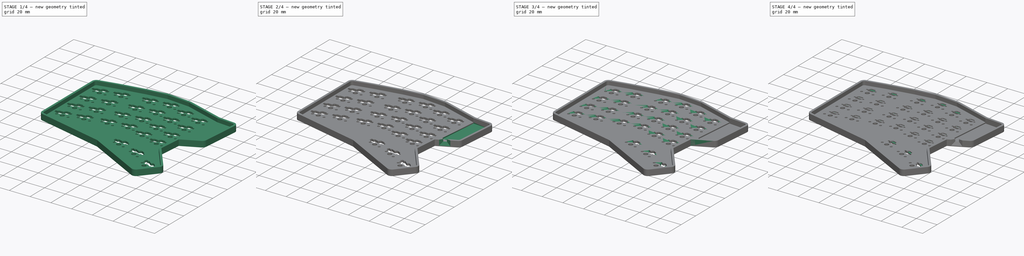
[diagram: build sequence overview — one tinted view per stage of 4, left to right]
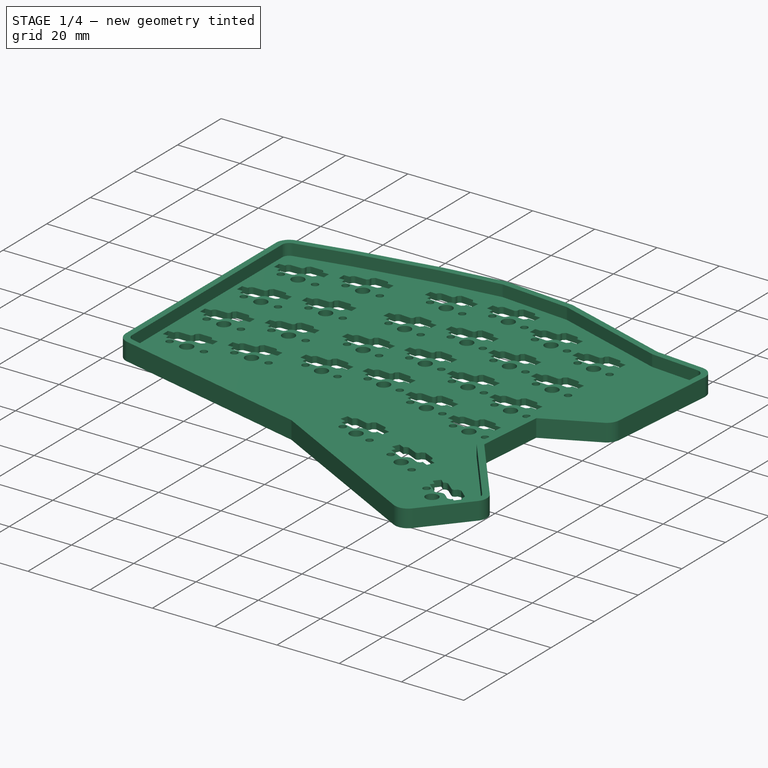
[diagram: stage 1 of 4 — iso view after this stage's code; geometry added in this stage tinted green]
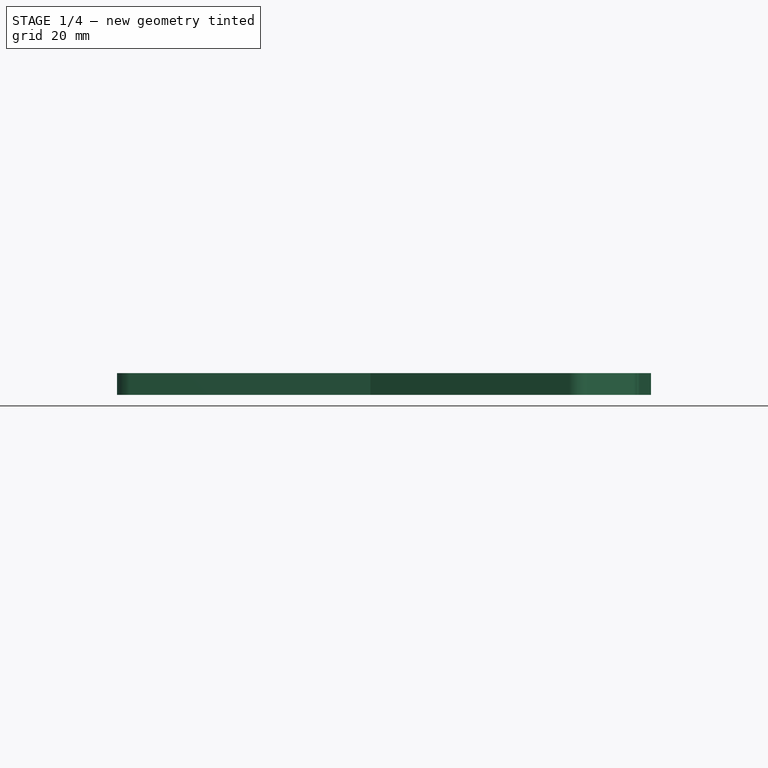
[diagram: stage 1 of 4 — front view after this stage's code; geometry added in this stage tinted green]
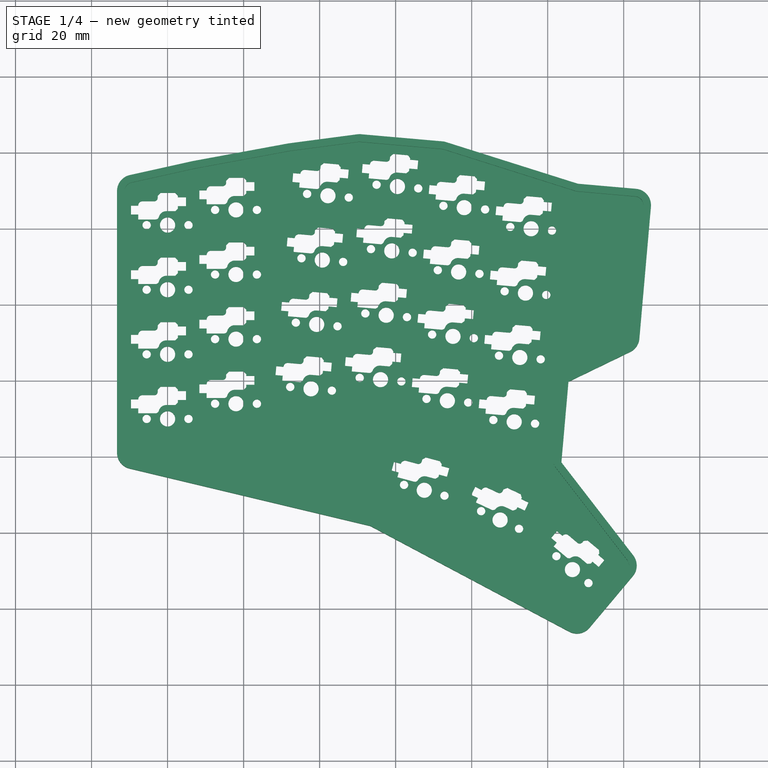
[diagram: stage 1 of 4 — top view after this stage's code; geometry added in this stage tinted green]
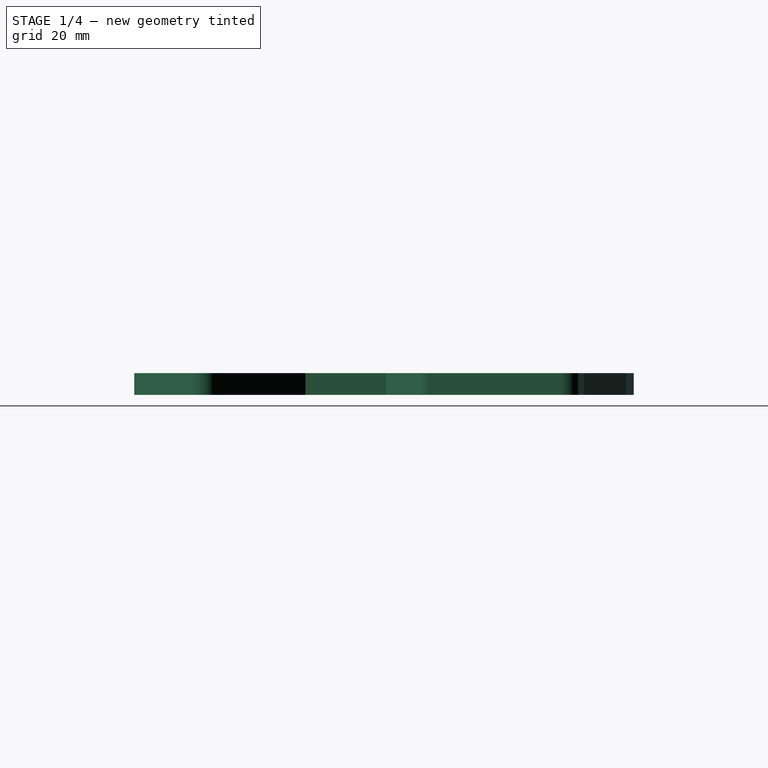
[diagram: stage 1 of 4 — right view after this stage's code; geometry added in this stage tinted green]
FCSTD DOCUMENT  (FreeCAD 1.0R39285 (Git))
Label: Case
License: All rights reserved
LicenseURL: https://en.wikipedia.org/wiki/All_rights_reserved
objects: Sketcher::SketchObject×11, PartDesign::Pocket×8, PartDesign::Pad×3, PartDesign::Body×3, App::Part×2, PartDesign::Chamfer×2, Part::Feature×1
note: 65 computed .brp shape members not serialized (recipe doc carries the construction recipe); baked Part::Feature solids carry a one-line shape summary decoded from their .brp

FEATURE [Sketcher::SketchObject] Sketch009
  ArcFitTolerance = 1e-06
  FullyConstrained = false
  MakeInternals = false
  sketch-geometry (24):
    g0: LineSegment StartX=106.7 StartY=-158.921 StartZ=0 EndX=106.7 EndY=-90.1043 EndZ=0
    g1: ArcOfCircle CenterX=111 CenterY=-90.1043 CenterZ=0 NormalX=0 NormalY=0 NormalZ=1 AngleXU=0 Radius=4.3 StartAngle=1.78947 EndAngle=3.14159
    g2: LineSegment StartX=110.067 StartY=-85.9067 StartZ=0 EndX=126.466 EndY=-82.2626 EndZ=0
    g3: ArcOfCircle CenterX=127.399 CenterY=-86.4602 CenterZ=0 NormalX=0 NormalY=0 NormalZ=1 AngleXU=0 Radius=4.3 StartAngle=1.7536 EndAngle=1.78947
    g4: LineSegment StartX=126.617 StartY=-82.2318 StartZ=0 EndX=151.676 EndY=-77.5991 EndZ=0
    g5: ArcOfCircle CenterX=152.458 CenterY=-81.8274 CenterZ=0 NormalX=0 NormalY=0 NormalZ=1 AngleXU=0 Radius=4.3 StartAngle=1.7022 EndAngle=1.7536
    g6: LineSegment StartX=151.895 StartY=-77.5645 StartZ=0 EndX=169.906 EndY=-75.184 EndZ=0
    g7: ArcOfCircle CenterX=170.47 CenterY=-79.447 CenterZ=0 NormalX=0 NormalY=0 NormalZ=1 AngleXU=0 Radius=4.3 StartAngle=1.48353 EndAngle=1.7022
    g8: LineSegment StartX=170.844 StartY=-75.1633 StartZ=0 EndX=192.323 EndY=-77.0425 EndZ=0
    g9: ArcOfCircle CenterX=191.948 CenterY=-81.3261 CenterZ=0 NormalX=0 NormalY=0 NormalZ=1 AngleXU=0 Radius=4.3 StartAngle=1.26486 EndAngle=1.48353
    g10: LineSegment StartX=193.244 StartY=-77.2258 StartZ=0 EndX=227.959 EndY=-88.1908 EndZ=0
    g11: LineSegment StartX=227.959 StartY=-88.1908 StartZ=0 EndX=243.248 EndY=-89.5284 EndZ=0
    g12: ArcOfCircle CenterX=242.874 CenterY=-93.8121 CenterZ=0 NormalX=0 NormalY=0 NormalZ=1 AngleXU=0 Radius=4.3 StartAngle=6.19592 EndAngle=7.76671
    g13: LineSegment StartX=247.157 StartY=-94.1868 StartZ=0 EndX=244.119 EndY=-128.918 EndZ=0
    g14: ArcOfCircle CenterX=239.835 CenterY=-128.544 CenterZ=0 NormalX=0 NormalY=0 NormalZ=1 AngleXU=0 Radius=4.3 StartAngle=5.16303 EndAngle=6.19592
    g15: LineSegment StartX=241.708 StartY=-132.414 StartZ=0 EndX=225.458 EndY=-140.277 EndZ=0
    g16: LineSegment StartX=225.458 StartY=-140.277 StartZ=0 EndX=223.602 EndY=-161.491 EndZ=0
    g17: LineSegment StartX=223.602 StartY=-161.491 StartZ=0 EndX=242.522 EndY=-185.992 EndZ=0
    g18: ArcOfCircle CenterX=239.119 CenterY=-188.62 CenterZ=0 NormalX=0 NormalY=0 NormalZ=1 AngleXU=0 Radius=4.3 StartAngle=5.58505 EndAngle=6.94079
    g19: ArcOfCircle CenterX=227.696 CenterY=-202.233 CenterZ=0 NormalX=0 NormalY=0 NormalZ=1 AngleXU=0 Radius=4.3 StartAngle=4.22403 EndAngle=5.58505
    g20: LineSegment StartX=225.679 StartY=-206.031 StartZ=0 EndX=173.367 EndY=-178.238 EndZ=0
    g21: LineSegment StartX=173.367 StartY=-178.238 StartZ=0 EndX=110.001 EndY=-163.104 EndZ=0
    g22: ArcOfCircle CenterX=111 CenterY=-158.921 CenterZ=0 NormalX=0 NormalY=0 NormalZ=1 AngleXU=0 Radius=4.3 StartAngle=3.14159 EndAngle=4.47794
    g23: LineSegment StartX=230.99 StartY=-204.997 StartZ=0 EndX=242.413 EndY=-191.384 EndZ=0
  constraints (24):
    c: Coincident(g0,g22)
    c: Coincident(g0,g1)
    c: Coincident(g21,g22)
    c: Coincident(g1,g2)
    c: Coincident(g2,g3)
    c: Coincident(g3,g4)
    c: Coincident(g4,g5)
    c: Coincident(g5,g6)
    c: Coincident(g6,g7)
    c: Coincident(g7,g8)
    c: Coincident(g20,g21)
    c: Coincident(g8,g9)
    c: Coincident(g9,g10)
    c: Coincident(g16,g17)
    c: Coincident(g15,g16)
    c: Coincident(g19,g20)
    c: Coincident(g10,g11)
    c: Coincident(g14,g15)
    c: Coincident(g17,g18)
    c: Coincident(g11,g12)
    c: Coincident(g13,g14)
    c: Coincident(g12,g13)
    c: Coincident(g23,g19)
    c: Coincident(g23,g18)
FEATURE [PartDesign::Pad] Pad002
  Direction = (0,0,1)
  Length = 5.7
  Length2 = 10
  Profile = -> Sketch009
  ReferenceAxis = -> Sketch009 [N_Axis]
  Refine = true
  Suppressed = false
  Type = 0
FEATURE [Sketcher::SketchObject] Sketch010
  ArcFitTolerance = 1e-06
  AttachmentSupport = -> [Pad002]
  FullyConstrained = false
  MakeInternals = false
  MapMode = 5
  Placement = pos=(0,0,5.7) rot=(0,0,1;0rad)
  sketch-geometry (28):
    g0: LineSegment StartX=108.7 StartY=-158.921 StartZ=0 EndX=108.7 EndY=-90.1043 EndZ=0
    g1: ArcOfCircle CenterX=111 CenterY=-90.1043 CenterZ=0 NormalX=0 NormalY=0 NormalZ=1 AngleXU=0 Radius=2.3 StartAngle=1.78947 EndAngle=3.14159
    g2: LineSegment StartX=110.501 StartY=-87.8591 StartZ=0 EndX=126.9 EndY=-84.2149 EndZ=0
    g3: ArcOfCircle CenterX=127.399 CenterY=-86.4602 CenterZ=0 NormalX=0 NormalY=0 NormalZ=1 AngleXU=0 Radius=2.3 StartAngle=1.7536 EndAngle=1.78947
    g4: LineSegment StartX=126.981 StartY=-84.1985 StartZ=0 EndX=152.04 EndY=-79.5658 EndZ=0
    g5: ArcOfCircle CenterX=152.458 CenterY=-81.8274 CenterZ=0 NormalX=0 NormalY=0 NormalZ=1 AngleXU=0 Radius=2.3 StartAngle=1.7022 EndAngle=1.7536
    g6: LineSegment StartX=152.157 StartY=-79.5473 StartZ=0 EndX=170.168 EndY=-77.1668 EndZ=0
    g7: ArcOfCircle CenterX=170.47 CenterY=-79.447 CenterZ=0 NormalX=0 NormalY=0 NormalZ=1 AngleXU=0 Radius=2.3 StartAngle=1.48353 EndAngle=1.7022
    g8: LineSegment StartX=170.67 StartY=-77.1557 StartZ=0 EndX=192.149 EndY=-79.0349 EndZ=0
    g9: ArcOfCircle CenterX=191.948 CenterY=-81.3261 CenterZ=0 NormalX=0 NormalY=0 NormalZ=1 AngleXU=0 Radius=2.3 StartAngle=1.26486 EndAngle=1.48353
    g10: LineSegment StartX=192.641 StartY=-79.1329 StartZ=0 EndX=227.388 EndY=-90.1078 EndZ=0
    g11: ArcOfCircle CenterX=227.9 CenterY=-88.4868 CenterZ=0 NormalX=0 NormalY=0 NormalZ=1 AngleXU=0 Radius=1.7 StartAngle=4.40645 EndAngle=4.62512
    g12: LineSegment StartX=227.752 StartY=-90.1803 StartZ=0 EndX=243.074 EndY=-91.5208 EndZ=0
    g13: ArcOfCircle CenterX=242.874 CenterY=-93.8121 CenterZ=0 NormalX=0 NormalY=0 NormalZ=1 AngleXU=0 Radius=2.3 StartAngle=6.19592 EndAngle=7.76672
    g14: LineSegment StartX=245.165 StartY=-94.0125 StartZ=0 EndX=242.126 EndY=-128.744 EndZ=0
    g15: ArcOfCircle CenterX=239.835 CenterY=-128.544 CenterZ=0 NormalX=0 NormalY=0 NormalZ=1 AngleXU=0 Radius=2.3 StartAngle=5.16303 EndAngle=6.19592
    g16: ArcOfCircle CenterX=225.174 CenterY=-140.081 CenterZ=0 NormalX=0 NormalY=0 NormalZ=1 AngleXU=0 Radius=1.7 StartAngle=2.02144 EndAngle=3.05433
    g17: ArcOfCircle CenterX=223.292 CenterY=-161.582 CenterZ=0 NormalX=0 NormalY=0 NormalZ=1 AngleXU=0 Radius=1.7 StartAngle=3.05433 EndAngle=3.7992
    g18: ArcOfCircle CenterX=239.119 CenterY=-188.62 CenterZ=0 NormalX=0 NormalY=0 NormalZ=1 AngleXU=0 Radius=2.3 StartAngle=5.58505 EndAngle=6.94079
    g19: ArcOfCircle CenterX=227.696 CenterY=-202.233 CenterZ=0 NormalX=0 NormalY=0 NormalZ=1 AngleXU=0 Radius=2.3 StartAngle=4.22403 EndAngle=5.58505
    g20: LineSegment StartX=226.617 StartY=-204.264 StartZ=0 EndX=174.272 EndY=-176.454 EndZ=0
    g21: ArcOfCircle CenterX=173.474 CenterY=-177.955 CenterZ=0 NormalX=0 NormalY=0 NormalZ=1 AngleXU=0 Radius=1.7 StartAngle=1.08243 EndAngle=1.33635
    g22: LineSegment StartX=173.869 StartY=-176.301 StartZ=0 EndX=110.466 EndY=-161.159 EndZ=0
    g23: ArcOfCircle CenterX=111 CenterY=-158.921 CenterZ=0 NormalX=0 NormalY=0 NormalZ=1 AngleXU=0 Radius=2.3 StartAngle=3.14159 EndAngle=4.47794
    g24: LineSegment StartX=224.433 StartY=-138.551 StartZ=0 EndX=240.837 EndY=-130.614 EndZ=0
    g25: LineSegment StartX=223.48 StartY=-139.933 StartZ=0 EndX=221.599 EndY=-161.434 EndZ=0
    g26: LineSegment StartX=221.947 StartY=-162.621 StartZ=0 EndX=240.94 EndY=-187.214 EndZ=0
    g27: LineSegment StartX=240.881 StartY=-190.098 StartZ=0 EndX=229.458 EndY=-203.712 EndZ=0
  constraints (28):
    c: Coincident(g0,g23)
    c: Coincident(g0,g1)
    c: Coincident(g22,g23)
    c: Coincident(g1,g2)
    c: Coincident(g2,g3)
    c: Coincident(g3,g4)
    c: Coincident(g4,g5)
    c: Coincident(g5,g6)
    c: Coincident(g6,g7)
    c: Coincident(g7,g8)
    c: Coincident(g21,g22)
    c: Coincident(g20,g21)
    c: Coincident(g8,g9)
    c: Coincident(g9,g10)
    c: Coincident(g19,g20)
    c: Coincident(g10,g11)
    c: Coincident(g11,g12)
    c: Coincident(g14,g15)
    c: Coincident(g12,g13)
    c: Coincident(g13,g14)
    c: Coincident(g24,g16)
    c: Coincident(g24,g15)
    c: Coincident(g25,g16)
    c: Coincident(g25,g17)
    c: Coincident(g26,g17)
    c: Coincident(g26,g18)
    c: Coincident(g27,g18)
    c: Coincident(g27,g19)
FEATURE [PartDesign::Pocket] Pocket007
  BaseFeature = -> Pad002
  Direction = (0,0,-1)
  Length = 3.7
  Length2 = 5
  Profile = -> Sketch010
  ReferenceAxis = -> Sketch010 [N_Axis]
  Refine = true
  Suppressed = false
  Type = 0
FEATURE [Sketcher::SketchObject] Sketch011
  ArcFitTolerance = 1e-06
  AttachmentSupport = -> [Pocket007]
  FullyConstrained = false
  MakeInternals = false
  MapMode = 5
  Placement = pos=(0,0,2) rot=(0,0,1;0rad)
  sketch-geometry (648):
    g0: LineSegment StartX=110.375 StartY=-147.225 StartZ=0 EndX=110.375 EndY=-144.875 EndZ=0
    g1: LineSegment StartX=110.375 StartY=-147.225 StartZ=0 EndX=112.275 EndY=-147.225 EndZ=0
    g2: LineSegment StartX=112.275 StartY=-144.875 StartZ=0 EndX=110.375 EndY=-144.875 EndZ=0
    g3: LineSegment StartX=112.275 StartY=-147.225 StartZ=0 EndX=112.275 EndY=-148.525 EndZ=0
    g4: LineSegment StartX=116.5 StartY=-143.75 StartZ=0 EndX=113.4 EndY=-143.75 EndZ=0
    g5: LineSegment StartX=116.792 StartY=-148.525 StartZ=0 EndX=112.275 EndY=-148.525 EndZ=0
    g6: LineSegment StartX=117.4 StartY=-142.32 StartZ=0 EndX=117.4 EndY=-142.85 EndZ=0
    g7: LineSegment StartX=118.171 StartY=-141.549 StartZ=0 EndX=117.4 EndY=-142.32 EndZ=0
    g8: LineSegment StartX=122.021 StartY=-141.549 StartZ=0 EndX=118.171 EndY=-141.549 EndZ=0
    g9: LineSegment StartX=122.021 StartY=-146.351 StartZ=0 EndX=119.671 EndY=-146.351 EndZ=0
    g10: LineSegment StartX=122.696 StartY=-142.225 StartZ=0 EndX=122.021 EndY=-141.549 EndZ=0
    g11: LineSegment StartX=122.696 StartY=-142.675 StartZ=0 EndX=122.696 EndY=-142.225 EndZ=0
    g12: LineSegment StartX=122.696 StartY=-145.025 StartZ=0 EndX=122.696 EndY=-145.675 EndZ=0
    g13: LineSegment StartX=122.696 StartY=-145.675 StartZ=0 EndX=122.021 EndY=-146.351 EndZ=0
    g14: LineSegment StartX=124.846 StartY=-142.675 StartZ=0 EndX=122.696 EndY=-142.675 EndZ=0
    g15: LineSegment StartX=124.846 StartY=-145.025 StartZ=0 EndX=122.696 EndY=-145.025 EndZ=0
    g16: LineSegment StartX=124.846 StartY=-145.025 StartZ=0 EndX=124.846 EndY=-142.675 EndZ=0
    g17: ArcOfCircle CenterX=113.4 CenterY=-144.875 CenterZ=0 NormalX=0 NormalY=0 NormalZ=1 AngleXU=0 Radius=1.125 StartAngle=1.5708 EndAngle=3.14159
    g18: ArcOfCircle CenterX=116.5 CenterY=-142.85 CenterZ=0 NormalX=0 NormalY=0 NormalZ=1 AngleXU=0 Radius=0.9 StartAngle=4.71239 EndAngle=6.28318
    g19: ArcOfCircle CenterX=119.671 CenterY=-148.383 CenterZ=0 NormalX=0 NormalY=0 NormalZ=1 AngleXU=0 Radius=2.03272 StartAngle=1.57079 EndAngle=2.90398
    g20: ArcOfCircle CenterX=116.824 CenterY=-147.604 CenterZ=0 NormalX=0 NormalY=0 NormalZ=1 AngleXU=0 Radius=0.921893 StartAngle=4.67834 EndAngle=5.95017
    g21: Circle CenterX=114.5 CenterY=-150 CenterZ=0 NormalX=0 NormalY=0 NormalZ=-1 AngleXU=0 Radius=1.1
    g22: Circle CenterX=120 CenterY=-150 CenterZ=0 NormalX=0 NormalY=0 NormalZ=-1 AngleXU=0 Radius=2
    g23: Circle CenterX=125.5 CenterY=-150 CenterZ=0 NormalX=0 NormalY=0 NormalZ=-1 AngleXU=0 Radius=1.1
    g24: LineSegment StartX=110.375 StartY=-130.225 StartZ=0 EndX=110.375 EndY=-127.875 EndZ=0
    g25: LineSegment StartX=110.375 StartY=-130.225 StartZ=0 EndX=112.275 EndY=-130.225 EndZ=0
    g26: LineSegment StartX=112.275 StartY=-127.875 StartZ=0 EndX=110.375 EndY=-127.875 EndZ=0
    g27: LineSegment StartX=112.275 StartY=-130.225 StartZ=0 EndX=112.275 EndY=-131.525 EndZ=0
    g28: LineSegment StartX=116.5 StartY=-126.75 StartZ=0 EndX=113.4 EndY=-126.75 EndZ=0
    g29: LineSegment StartX=116.792 StartY=-131.525 StartZ=0 EndX=112.275 EndY=-131.525 EndZ=0
    g30: LineSegment StartX=117.4 StartY=-125.32 StartZ=0 EndX=117.4 EndY=-125.85 EndZ=0
    g31: LineSegment StartX=118.171 StartY=-124.549 StartZ=0 EndX=117.4 EndY=-125.32 EndZ=0
    g32: LineSegment StartX=122.021 StartY=-124.549 StartZ=0 EndX=118.171 EndY=-124.549 EndZ=0
    g33: LineSegment StartX=122.021 StartY=-129.351 StartZ=0 EndX=119.671 EndY=-129.351 EndZ=0
    g34: LineSegment StartX=122.696 StartY=-125.225 StartZ=0 EndX=122.021 EndY=-124.549 EndZ=0
    g35: LineSegment StartX=122.696 StartY=-125.675 StartZ=0 EndX=122.696 EndY=-125.225 EndZ=0
    g36: LineSegment StartX=122.696 StartY=-128.025 StartZ=0 EndX=122.696 EndY=-128.675 EndZ=0
    g37: LineSegment StartX=122.696 StartY=-128.675 StartZ=0 EndX=122.021 EndY=-129.351 EndZ=0
    g38: LineSegment StartX=124.846 StartY=-125.675 StartZ=0 EndX=122.696 EndY=-125.675 EndZ=0
    g39: LineSegment StartX=124.846 StartY=-128.025 StartZ=0 EndX=122.696 EndY=-128.025 EndZ=0
    g40: LineSegment StartX=124.846 StartY=-128.025 StartZ=0 EndX=124.846 EndY=-125.675 EndZ=0
    g41: ArcOfCircle CenterX=113.4 CenterY=-127.875 CenterZ=0 NormalX=0 NormalY=0 NormalZ=1 AngleXU=0 Radius=1.125 StartAngle=1.5708 EndAngle=3.14159
    g42: ArcOfCircle CenterX=116.5 CenterY=-125.85 CenterZ=0 NormalX=0 NormalY=0 NormalZ=1 AngleXU=0 Radius=0.9 StartAngle=4.71239 EndAngle=6.28318
    g43: ArcOfCircle CenterX=119.671 CenterY=-131.383 CenterZ=0 NormalX=0 NormalY=0 NormalZ=1 AngleXU=0 Radius=2.03272 StartAngle=1.57078 EndAngle=2.90398
    g44: ArcOfCircle CenterX=116.824 CenterY=-130.604 CenterZ=0 NormalX=0 NormalY=0 NormalZ=1 AngleXU=0 Radius=0.921893 StartAngle=4.67834 EndAngle=5.95017
    g45: Circle CenterX=114.5 CenterY=-133 CenterZ=0 NormalX=0 NormalY=0 NormalZ=-1 AngleXU=0 Radius=1.1
    g46: Circle CenterX=120 CenterY=-133 CenterZ=0 NormalX=0 NormalY=0 NormalZ=-1 AngleXU=0 Radius=2
    g47: Circle CenterX=125.5 CenterY=-133 CenterZ=0 NormalX=0 NormalY=0 NormalZ=-1 AngleXU=0 Radius=1.1
    g48: LineSegment StartX=110.375 StartY=-113.225 StartZ=0 EndX=110.375 EndY=-110.875 EndZ=0
    g49: LineSegment StartX=110.375 StartY=-113.225 StartZ=0 EndX=112.275 EndY=-113.225 EndZ=0
    g50: LineSegment StartX=112.275 StartY=-110.875 StartZ=0 EndX=110.375 EndY=-110.875 EndZ=0
    g51: LineSegment StartX=112.275 StartY=-113.225 StartZ=0 EndX=112.275 EndY=-114.525 EndZ=0
    g52: LineSegment StartX=116.5 StartY=-109.75 StartZ=0 EndX=113.4 EndY=-109.75 EndZ=0
    g53: LineSegment StartX=116.792 StartY=-114.525 StartZ=0 EndX=112.275 EndY=-114.525 EndZ=0
    g54: LineSegment StartX=117.4 StartY=-108.32 StartZ=0 EndX=117.4 EndY=-108.85 EndZ=0
    g55: LineSegment StartX=118.171 StartY=-107.549 StartZ=0 EndX=117.4 EndY=-108.32 EndZ=0
    g56: LineSegment StartX=122.021 StartY=-107.549 StartZ=0 EndX=118.171 EndY=-107.549 EndZ=0
    g57: LineSegment StartX=122.021 StartY=-112.351 StartZ=0 EndX=119.671 EndY=-112.351 EndZ=0
    g58: LineSegment StartX=122.696 StartY=-108.225 StartZ=0 EndX=122.021 EndY=-107.549 EndZ=0
    g59: LineSegment StartX=122.696 StartY=-108.675 StartZ=0 EndX=122.696 EndY=-108.225 EndZ=0
    g60: LineSegment StartX=122.696 StartY=-111.025 StartZ=0 EndX=122.696 EndY=-111.675 EndZ=0
    g61: LineSegment StartX=122.696 StartY=-111.675 StartZ=0 EndX=122.021 EndY=-112.351 EndZ=0
    g62: LineSegment StartX=124.846 StartY=-108.675 StartZ=0 EndX=122.696 EndY=-108.675 EndZ=0
    g63: LineSegment StartX=124.846 StartY=-111.025 StartZ=0 EndX=122.696 EndY=-111.025 EndZ=0
    g64: LineSegment StartX=124.846 StartY=-111.025 StartZ=0 EndX=124.846 EndY=-108.675 EndZ=0
    g65: ArcOfCircle CenterX=113.4 CenterY=-110.875 CenterZ=0 NormalX=0 NormalY=0 NormalZ=1 AngleXU=0 Radius=1.125 StartAngle=1.5708 EndAngle=3.14159
    g66: ArcOfCircle CenterX=116.5 CenterY=-108.85 CenterZ=0 NormalX=0 NormalY=0 NormalZ=1 AngleXU=0 Radius=0.9 StartAngle=4.71239 EndAngle=6.28318
    g67: ArcOfCircle CenterX=119.671 CenterY=-114.383 CenterZ=0 NormalX=0 NormalY=0 NormalZ=1 AngleXU=0 Radius=2.03272 StartAngle=1.57079 EndAngle=2.90398
    g68: ArcOfCircle CenterX=116.824 CenterY=-113.604 CenterZ=0 NormalX=0 NormalY=0 NormalZ=1 AngleXU=0 Radius=0.921893 StartAngle=4.67834 EndAngle=5.95017
    g69: Circle CenterX=114.5 CenterY=-116 CenterZ=0 NormalX=0 NormalY=0 NormalZ=-1 AngleXU=0 Radius=1.1
    g70: Circle CenterX=120 CenterY=-116 CenterZ=0 NormalX=0 NormalY=0 NormalZ=-1 AngleXU=0 Radius=2
    g71: Circle CenterX=125.5 CenterY=-116 CenterZ=0 NormalX=0 NormalY=0 NormalZ=-1 AngleXU=0 Radius=1.1
    g72: LineSegment StartX=110.375 StartY=-96.225 StartZ=0 EndX=110.375 EndY=-93.875 EndZ=0
    g73: LineSegment StartX=110.375 StartY=-96.225 StartZ=0 EndX=112.275 EndY=-96.225 EndZ=0
    g74: LineSegment StartX=112.275 StartY=-93.875 StartZ=0 EndX=110.375 EndY=-93.875 EndZ=0
    g75: LineSegment StartX=112.275 StartY=-96.225 StartZ=0 EndX=112.275 EndY=-97.525 EndZ=0
    g76: LineSegment StartX=116.5 StartY=-92.75 StartZ=0 EndX=113.4 EndY=-92.75 EndZ=0
    g77: LineSegment StartX=116.792 StartY=-97.525 StartZ=0 EndX=112.275 EndY=-97.525 EndZ=0
    g78: LineSegment StartX=117.4 StartY=-91.32 StartZ=0 EndX=117.4 EndY=-91.85 EndZ=0
    g79: LineSegment StartX=118.171 StartY=-90.5493 StartZ=0 EndX=117.4 EndY=-91.32 EndZ=0
    g80: LineSegment StartX=122.021 StartY=-90.5493 StartZ=0 EndX=118.171 EndY=-90.5493 EndZ=0
    g81: LineSegment StartX=122.021 StartY=-95.3507 StartZ=0 EndX=119.671 EndY=-95.3507 EndZ=0
    g82: LineSegment StartX=122.696 StartY=-91.225 StartZ=0 EndX=122.021 EndY=-90.5493 EndZ=0
    g83: LineSegment StartX=122.696 StartY=-91.675 StartZ=0 EndX=122.696 EndY=-91.225 EndZ=0
    g84: LineSegment StartX=122.696 StartY=-94.025 StartZ=0 EndX=122.696 EndY=-94.675 EndZ=0
    g85: LineSegment StartX=122.696 StartY=-94.675 StartZ=0 EndX=122.021 EndY=-95.3507 EndZ=0
    g86: LineSegment StartX=124.846 StartY=-91.675 StartZ=0 EndX=122.696 EndY=-91.675 EndZ=0
    g87: LineSegment StartX=124.846 StartY=-94.025 StartZ=0 EndX=122.696 EndY=-94.025 EndZ=0
    g88: LineSegment StartX=124.846 StartY=-94.025 StartZ=0 EndX=124.846 EndY=-91.675 EndZ=0
    g89: ArcOfCircle CenterX=113.4 CenterY=-93.875 CenterZ=0 NormalX=0 NormalY=0 NormalZ=1 AngleXU=0 Radius=1.125 StartAngle=1.5708 EndAngle=3.14159
    g90: ArcOfCircle CenterX=116.5 CenterY=-91.85 CenterZ=0 NormalX=0 NormalY=0 NormalZ=1 AngleXU=0 Radius=0.9 StartAngle=4.71239 EndAngle=6.28318
    g91: ArcOfCircle CenterX=119.671 CenterY=-97.3835 CenterZ=0 NormalX=0 NormalY=0 NormalZ=1 AngleXU=0 Radius=2.03272 StartAngle=1.57079 EndAngle=2.90398
    g92: ArcOfCircle CenterX=116.824 CenterY=-96.6036 CenterZ=0 NormalX=0 NormalY=0 NormalZ=1 AngleXU=0 Radius=0.921893 StartAngle=4.67834 EndAngle=5.95017
    g93: Circle CenterX=114.5 CenterY=-99 CenterZ=0 NormalX=0 NormalY=0 NormalZ=-1 AngleXU=0 Radius=1.1
    g94: Circle CenterX=120 CenterY=-99 CenterZ=0 NormalX=0 NormalY=0 NormalZ=-1 AngleXU=0 Radius=2
    g95: Circle CenterX=125.5 CenterY=-99 CenterZ=0 NormalX=0 NormalY=0 NormalZ=-1 AngleXU=0 Radius=1.1
    g96: LineSegment StartX=128.375 StartY=-143.225 StartZ=0 EndX=128.375 EndY=-140.875 EndZ=0
    g97: LineSegment StartX=128.375 StartY=-143.225 StartZ=0 EndX=130.275 EndY=-143.225 EndZ=0
    g98: LineSegment StartX=130.275 StartY=-140.875 StartZ=0 EndX=128.375 EndY=-140.875 EndZ=0
    g99: LineSegment StartX=130.275 StartY=-143.225 StartZ=0 EndX=130.275 EndY=-144.525 EndZ=0
    g100: LineSegment StartX=134.5 StartY=-139.75 StartZ=0 EndX=131.4 EndY=-139.75 EndZ=0
    g101: LineSegment StartX=134.792 StartY=-144.525 StartZ=0 EndX=130.275 EndY=-144.525 EndZ=0
    g102: LineSegment StartX=135.4 StartY=-138.32 StartZ=0 EndX=135.4 EndY=-138.85 EndZ=0
    g103: LineSegment StartX=136.171 StartY=-137.549 StartZ=0 EndX=135.4 EndY=-138.32 EndZ=0
    g104: LineSegment StartX=140.021 StartY=-137.549 StartZ=0 EndX=136.171 EndY=-137.549 EndZ=0
    g105: LineSegment StartX=140.021 StartY=-142.351 StartZ=0 EndX=137.671 EndY=-142.351 EndZ=0
    g106: LineSegment StartX=140.696 StartY=-138.225 StartZ=0 EndX=140.021 EndY=-137.549 EndZ=0
    g107: LineSegment StartX=140.696 StartY=-138.675 StartZ=0 EndX=140.696 EndY=-138.225 EndZ=0
    g108: LineSegment StartX=140.696 StartY=-141.025 StartZ=0 EndX=140.696 EndY=-141.675 EndZ=0
    g109: LineSegment StartX=140.696 StartY=-141.675 StartZ=0 EndX=140.021 EndY=-142.351 EndZ=0
    g110: LineSegment StartX=142.846 StartY=-138.675 StartZ=0 EndX=140.696 EndY=-138.675 EndZ=0
    g111: LineSegment StartX=142.846 StartY=-141.025 StartZ=0 EndX=140.696 EndY=-141.025 EndZ=0
    g112: LineSegment StartX=142.846 StartY=-141.025 StartZ=0 EndX=142.846 EndY=-138.675 EndZ=0
    g113: ArcOfCircle CenterX=131.4 CenterY=-140.875 CenterZ=0 NormalX=0 NormalY=0 NormalZ=1 AngleXU=0 Radius=1.125 StartAngle=1.5708 EndAngle=3.14159
    g114: ArcOfCircle CenterX=134.5 CenterY=-138.85 CenterZ=0 NormalX=0 NormalY=0 NormalZ=1 AngleXU=0 Radius=0.9 StartAngle=4.71239 EndAngle=6.28318
    g115: ArcOfCircle CenterX=137.671 CenterY=-144.383 CenterZ=0 NormalX=0 NormalY=0 NormalZ=1 AngleXU=0 Radius=2.03272 StartAngle=1.57078 EndAngle=2.90398
    g116: ArcOfCircle CenterX=134.824 CenterY=-143.604 CenterZ=0 NormalX=0 NormalY=0 NormalZ=1 AngleXU=0 Radius=0.921893 StartAngle=4.67834 EndAngle=5.95017
    g117: Circle CenterX=132.5 CenterY=-146 CenterZ=0 NormalX=0 NormalY=0 NormalZ=-1 AngleXU=0 Radius=1.1
    g118: Circle CenterX=138 CenterY=-146 CenterZ=0 NormalX=0 NormalY=0 NormalZ=-1 AngleXU=0 Radius=2
    g119: Circle CenterX=143.5 CenterY=-146 CenterZ=0 NormalX=0 NormalY=0 NormalZ=-1 AngleXU=0 Radius=1.1
    g120: LineSegment StartX=128.375 StartY=-126.225 StartZ=0 EndX=128.375 EndY=-123.875 EndZ=0
    g121: LineSegment StartX=128.375 StartY=-126.225 StartZ=0 EndX=130.275 EndY=-126.225 EndZ=0
    g122: LineSegment StartX=130.275 StartY=-123.875 StartZ=0 EndX=128.375 EndY=-123.875 EndZ=0
    g123: LineSegment StartX=130.275 StartY=-126.225 StartZ=0 EndX=130.275 EndY=-127.525 EndZ=0
    g124: LineSegment StartX=134.5 StartY=-122.75 StartZ=0 EndX=131.4 EndY=-122.75 EndZ=0
    g125: LineSegment StartX=134.792 StartY=-127.525 StartZ=0 EndX=130.275 EndY=-127.525 EndZ=0
    g126: LineSegment StartX=135.4 StartY=-121.32 StartZ=0 EndX=135.4 EndY=-121.85 EndZ=0
    g127: LineSegment StartX=136.171 StartY=-120.549 StartZ=0 EndX=135.4 EndY=-121.32 EndZ=0
    g128: LineSegment StartX=140.021 StartY=-120.549 StartZ=0 EndX=136.171 EndY=-120.549 EndZ=0
    g129: LineSegment StartX=140.021 StartY=-125.351 StartZ=0 EndX=137.671 EndY=-125.351 EndZ=0
    g130: LineSegment StartX=140.696 StartY=-121.225 StartZ=0 EndX=140.021 EndY=-120.549 EndZ=0
    g131: LineSegment StartX=140.696 StartY=-121.675 StartZ=0 EndX=140.696 EndY=-121.225 EndZ=0
    g132: LineSegment StartX=140.696 StartY=-124.025 StartZ=0 EndX=140.696 EndY=-124.675 EndZ=0
    g133: LineSegment StartX=140.696 StartY=-124.675 StartZ=0 EndX=140.021 EndY=-125.351 EndZ=0
    g134: LineSegment StartX=142.846 StartY=-121.675 StartZ=0 EndX=140.696 EndY=-121.675 EndZ=0
    g135: LineSegment StartX=142.846 StartY=-124.025 StartZ=0 EndX=140.696 EndY=-124.025 EndZ=0
    g136: LineSegment StartX=142.846 StartY=-124.025 StartZ=0 EndX=142.846 EndY=-121.675 EndZ=0
    g137: ArcOfCircle CenterX=131.4 CenterY=-123.875 CenterZ=0 NormalX=0 NormalY=0 NormalZ=1 AngleXU=0 Radius=1.125 StartAngle=1.5708 EndAngle=3.14159
    g138: ArcOfCircle CenterX=134.5 CenterY=-121.85 CenterZ=0 NormalX=0 NormalY=0 NormalZ=1 AngleXU=0 Radius=0.9 StartAngle=4.71239 EndAngle=6.28318
    g139: ArcOfCircle CenterX=137.671 CenterY=-127.383 CenterZ=0 NormalX=0 NormalY=0 NormalZ=1 AngleXU=0 Radius=2.03272 StartAngle=1.57078 EndAngle=2.90398
    g140: ArcOfCircle CenterX=134.824 CenterY=-126.604 CenterZ=0 NormalX=0 NormalY=0 NormalZ=1 AngleXU=0 Radius=0.921893 StartAngle=4.67834 EndAngle=5.95017
    g141: Circle CenterX=132.5 CenterY=-129 CenterZ=0 NormalX=0 NormalY=0 NormalZ=-1 AngleXU=0 Radius=1.1
    g142: Circle CenterX=138 CenterY=-129 CenterZ=0 NormalX=0 NormalY=0 NormalZ=-1 AngleXU=0 Radius=2
    g143: Circle CenterX=143.5 CenterY=-129 CenterZ=0 NormalX=0 NormalY=0 NormalZ=-1 AngleXU=0 Radius=1.1
    g144: LineSegment StartX=128.375 StartY=-109.225 StartZ=0 EndX=128.375 EndY=-106.875 EndZ=0
    g145: LineSegment StartX=128.375 StartY=-109.225 StartZ=0 EndX=130.275 EndY=-109.225 EndZ=0
    g146: LineSegment StartX=130.275 StartY=-106.875 StartZ=0 EndX=128.375 EndY=-106.875 EndZ=0
    g147: LineSegment StartX=130.275 StartY=-109.225 StartZ=0 EndX=130.275 EndY=-110.525 EndZ=0
    g148: LineSegment StartX=134.5 StartY=-105.75 StartZ=0 EndX=131.4 EndY=-105.75 EndZ=0
    g149: LineSegment StartX=134.792 StartY=-110.525 StartZ=0 EndX=130.275 EndY=-110.525 EndZ=0
    g150: LineSegment StartX=135.4 StartY=-104.32 StartZ=0 EndX=135.4 EndY=-104.85 EndZ=0
    g151: LineSegment StartX=136.171 StartY=-103.549 StartZ=0 EndX=135.4 EndY=-104.32 EndZ=0
    g152: LineSegment StartX=140.021 StartY=-103.549 StartZ=0 EndX=136.171 EndY=-103.549 EndZ=0
    g153: LineSegment StartX=140.021 StartY=-108.351 StartZ=0 EndX=137.671 EndY=-108.351 EndZ=0
    g154: LineSegment StartX=140.696 StartY=-104.225 StartZ=0 EndX=140.021 EndY=-103.549 EndZ=0
    g155: LineSegment StartX=140.696 StartY=-104.675 StartZ=0 EndX=140.696 EndY=-104.225 EndZ=0
    g156: LineSegment StartX=140.696 StartY=-107.025 StartZ=0 EndX=140.696 EndY=-107.675 EndZ=0
    g157: LineSegment StartX=140.696 StartY=-107.675 StartZ=0 EndX=140.021 EndY=-108.351 EndZ=0
    g158: LineSegment StartX=142.846 StartY=-104.675 StartZ=0 EndX=140.696 EndY=-104.675 EndZ=0
    g159: LineSegment StartX=142.846 StartY=-107.025 StartZ=0 EndX=140.696 EndY=-107.025 EndZ=0
    g160: LineSegment StartX=142.846 StartY=-107.025 StartZ=0 EndX=142.846 EndY=-104.675 EndZ=0
    g161: ArcOfCircle CenterX=131.4 CenterY=-106.875 CenterZ=0 NormalX=0 NormalY=0 NormalZ=1 AngleXU=0 Radius=1.125 StartAngle=1.5708 EndAngle=3.14159
    g162: ArcOfCircle CenterX=134.5 CenterY=-104.85 CenterZ=0 NormalX=0 NormalY=0 NormalZ=1 AngleXU=0 Radius=0.9 StartAngle=4.71239 EndAngle=6.28318
    g163: ArcOfCircle CenterX=137.671 CenterY=-110.383 CenterZ=0 NormalX=0 NormalY=0 NormalZ=1 AngleXU=0 Radius=2.03272 StartAngle=1.57078 EndAngle=2.90398
    g164: ArcOfCircle CenterX=134.824 CenterY=-109.604 CenterZ=0 NormalX=0 NormalY=0 NormalZ=1 AngleXU=0 Radius=0.921893 StartAngle=4.67834 EndAngle=5.95017
    g165: Circle CenterX=132.5 CenterY=-112 CenterZ=0 NormalX=0 NormalY=0 NormalZ=-1 AngleXU=0 Radius=1.1
    g166: Circle CenterX=138 CenterY=-112 CenterZ=0 NormalX=0 NormalY=0 NormalZ=-1 AngleXU=0 Radius=2
    g167: Circle CenterX=143.5 CenterY=-112 CenterZ=0 NormalX=0 NormalY=0 NormalZ=-1 AngleXU=0 Radius=1.1
    g168: LineSegment StartX=128.375 StartY=-92.225 StartZ=0 EndX=128.375 EndY=-89.875 EndZ=0
    g169: LineSegment StartX=128.375 StartY=-92.225 StartZ=0 EndX=130.275 EndY=-92.225 EndZ=0
    g170: LineSegment StartX=130.275 StartY=-89.875 StartZ=0 EndX=128.375 EndY=-89.875 EndZ=0
    g171: LineSegment StartX=130.275 StartY=-92.225 StartZ=0 EndX=130.275 EndY=-93.525 EndZ=0
    g172: LineSegment StartX=134.5 StartY=-88.75 StartZ=0 EndX=131.4 EndY=-88.75 EndZ=0
    g173: LineSegment StartX=134.792 StartY=-93.525 StartZ=0 EndX=130.275 EndY=-93.525 EndZ=0
    g174: LineSegment StartX=135.4 StartY=-87.32 StartZ=0 EndX=135.4 EndY=-87.85 EndZ=0
    g175: LineSegment StartX=136.171 StartY=-86.5493 StartZ=0 EndX=135.4 EndY=-87.32 EndZ=0
    g176: LineSegment StartX=140.021 StartY=-86.5493 StartZ=0 EndX=136.171 EndY=-86.5493 EndZ=0
    g177: LineSegment StartX=140.021 StartY=-91.3507 StartZ=0 EndX=137.671 EndY=-91.3507 EndZ=0
    g178: LineSegment StartX=140.696 StartY=-87.225 StartZ=0 EndX=140.021 EndY=-86.5493 EndZ=0
    g179: LineSegment StartX=140.696 StartY=-87.675 StartZ=0 EndX=140.696 EndY=-87.225 EndZ=0
    g180: LineSegment StartX=140.696 StartY=-90.025 StartZ=0 EndX=140.696 EndY=-90.675 EndZ=0
    g181: LineSegment StartX=140.696 StartY=-90.675 StartZ=0 EndX=140.021 EndY=-91.3507 EndZ=0
    g182: LineSegment StartX=142.846 StartY=-87.675 StartZ=0 EndX=140.696 EndY=-87.675 EndZ=0
    g183: LineSegment StartX=142.846 StartY=-90.025 StartZ=0 EndX=140.696 EndY=-90.025 EndZ=0
    g184: LineSegment StartX=142.846 StartY=-90.025 StartZ=0 EndX=142.846 EndY=-87.675 EndZ=0
    g185: ArcOfCircle CenterX=131.4 CenterY=-89.875 CenterZ=0 NormalX=0 NormalY=0 NormalZ=1 AngleXU=0 Radius=1.125 StartAngle=1.5708 EndAngle=3.14159
    g186: ArcOfCircle CenterX=134.5 CenterY=-87.85 CenterZ=0 NormalX=0 NormalY=0 NormalZ=1 AngleXU=0 Radius=0.9 StartAngle=4.71239 EndAngle=6.28318
    g187: ArcOfCircle CenterX=137.671 CenterY=-93.3835 CenterZ=0 NormalX=0 NormalY=0 NormalZ=1 AngleXU=0 Radius=2.03273 StartAngle=1.57079 EndAngle=2.90398
    g188: ArcOfCircle CenterX=134.824 CenterY=-92.6036 CenterZ=0 NormalX=0 NormalY=0 NormalZ=1 AngleXU=0 Radius=0.921889 StartAngle=4.67834 EndAngle=5.95017
    g189: Circle CenterX=132.5 CenterY=-95 CenterZ=0 NormalX=0 NormalY=0 NormalZ=-1 AngleXU=0 Radius=1.1
    g190: Circle CenterX=138 CenterY=-95 CenterZ=0 NormalX=0 NormalY=0 NormalZ=-1 AngleXU=0 Radius=2
    g191: Circle CenterX=143.5 CenterY=-95 CenterZ=0 NormalX=0 NormalY=0 NormalZ=-1 AngleXU=0 Radius=1.1
    g192: LineSegment StartX=148.397 StartY=-138.473 StartZ=0 EndX=148.601 EndY=-136.132 EndZ=0
    g193: LineSegment StartX=148.397 StartY=-138.473 StartZ=0 EndX=150.289 EndY=-138.638 EndZ=0
    g194: LineSegment StartX=150.494 StartY=-136.297 StartZ=0 EndX=148.601 EndY=-136.132 EndZ=0
    g195: LineSegment StartX=150.289 StartY=-138.638 StartZ=0 EndX=150.176 EndY=-139.933 EndZ=0
    g196: LineSegment StartX=154.801 StartY=-135.545 StartZ=0 EndX=151.713 EndY=-135.275 EndZ=0
    g197: LineSegment StartX=154.676 StartY=-140.327 StartZ=0 EndX=150.176 EndY=-139.933 EndZ=0
    g198: LineSegment StartX=155.822 StartY=-134.199 StartZ=0 EndX=155.776 EndY=-134.727 EndZ=0
    g199: LineSegment StartX=156.657 StartY=-133.498 StartZ=0 EndX=155.822 EndY=-134.199 EndZ=0
    g200: LineSegment StartX=160.493 StartY=-133.834 StartZ=0 EndX=156.657 EndY=-133.498 EndZ=0
    g201: LineSegment StartX=160.074 StartY=-138.617 StartZ=0 EndX=157.733 EndY=-138.412 EndZ=0
    g202: LineSegment StartX=161.107 StartY=-134.566 StartZ=0 EndX=160.493 EndY=-133.834 EndZ=0
    g203: LineSegment StartX=161.068 StartY=-135.014 StartZ=0 EndX=161.107 EndY=-134.566 EndZ=0
    g204: LineSegment StartX=160.863 StartY=-137.355 StartZ=0 EndX=160.806 EndY=-138.003 EndZ=0
    g205: LineSegment StartX=160.806 StartY=-138.003 StartZ=0 EndX=160.074 EndY=-138.617 EndZ=0
    g206: LineSegment StartX=163.21 StartY=-135.201 StartZ=0 EndX=161.068 EndY=-135.014 EndZ=0
    g207: LineSegment StartX=163.005 StartY=-137.542 StartZ=0 EndX=160.863 EndY=-137.355 EndZ=0
    g208: LineSegment StartX=163.005 StartY=-137.542 StartZ=0 EndX=163.21 EndY=-135.201 EndZ=0
    g209: ArcOfCircle CenterX=151.615 CenterY=-136.395 CenterZ=0 NormalX=0 NormalY=0 NormalZ=1 AngleXU=0 Radius=1.125 StartAngle=1.48353 EndAngle=3.05433
    g210: ArcOfCircle CenterX=154.88 CenterY=-134.648 CenterZ=0 NormalX=0 NormalY=0 NormalZ=1 AngleXU=0 Radius=0.9 StartAngle=4.62512 EndAngle=6.19592
    g211: ArcOfCircle CenterX=157.556 CenterY=-140.437 CenterZ=0 NormalX=0 NormalY=0 NormalZ=1 AngleXU=0 Radius=2.03273 StartAngle=1.48351 EndAngle=2.81671
    g212: ArcOfCircle CenterX=154.788 CenterY=-139.412 CenterZ=0 NormalX=0 NormalY=0 NormalZ=1 AngleXU=0 Radius=0.921893 StartAngle=4.59107 EndAngle=5.8629
    g213: Circle CenterX=152.264 CenterY=-141.597 CenterZ=0 NormalX=0 NormalY=0 NormalZ=-1 AngleXU=0 Radius=1.1
    g214: Circle CenterX=157.743 CenterY=-142.076 CenterZ=0 NormalX=0 NormalY=0 NormalZ=-1 AngleXU=0 Radius=2
    g215: Circle CenterX=163.222 CenterY=-142.555 CenterZ=0 NormalX=0 NormalY=0 NormalZ=-1 AngleXU=0 Radius=1.1
    g216: LineSegment StartX=149.878 StartY=-121.537 StartZ=0 EndX=150.083 EndY=-119.196 EndZ=0
    g217: LineSegment StartX=149.878 StartY=-121.537 StartZ=0 EndX=151.771 EndY=-121.703 EndZ=0
    g218: LineSegment StartX=151.976 StartY=-119.362 StartZ=0 EndX=150.083 EndY=-119.196 EndZ=0
    g219: LineSegment StartX=151.771 StartY=-121.703 StartZ=0 EndX=151.658 EndY=-122.998 EndZ=0
    g220: LineSegment StartX=156.283 StartY=-118.61 StartZ=0 EndX=153.195 EndY=-118.339 EndZ=0
    g221: LineSegment StartX=156.158 StartY=-123.392 StartZ=0 EndX=151.658 EndY=-122.998 EndZ=0
    g222: LineSegment StartX=157.304 StartY=-117.263 StartZ=0 EndX=157.258 EndY=-117.791 EndZ=0
    g223: LineSegment StartX=158.139 StartY=-116.563 StartZ=0 EndX=157.304 EndY=-117.263 EndZ=0
    g224: LineSegment StartX=161.974 StartY=-116.898 StartZ=0 EndX=158.139 EndY=-116.563 EndZ=0
    g225: LineSegment StartX=161.556 StartY=-121.682 StartZ=0 EndX=159.215 EndY=-121.477 EndZ=0
    g226: LineSegment StartX=162.589 StartY=-117.63 StartZ=0 EndX=161.974 EndY=-116.898 EndZ=0
    g227: LineSegment StartX=162.549 StartY=-118.079 StartZ=0 EndX=162.589 EndY=-117.63 EndZ=0
    g228: LineSegment StartX=162.345 StartY=-120.42 StartZ=0 EndX=162.288 EndY=-121.067 EndZ=0
    g229: LineSegment StartX=162.288 StartY=-121.067 StartZ=0 EndX=161.556 EndY=-121.682 EndZ=0
    g230: LineSegment StartX=164.691 StartY=-118.266 StartZ=0 EndX=162.549 EndY=-118.079 EndZ=0
    g231: LineSegment StartX=164.486 StartY=-120.607 StartZ=0 EndX=162.345 EndY=-120.42 EndZ=0
    g232: LineSegment StartX=164.486 StartY=-120.607 StartZ=0 EndX=164.691 EndY=-118.266 EndZ=0
    g233: ArcOfCircle CenterX=153.097 CenterY=-119.46 CenterZ=0 NormalX=0 NormalY=0 NormalZ=1 AngleXU=0 Radius=1.125 StartAngle=1.48353 EndAngle=3.05433
    g234: ArcOfCircle CenterX=156.361 CenterY=-117.713 CenterZ=0 NormalX=0 NormalY=0 NormalZ=1 AngleXU=0 Radius=0.9 StartAngle=4.62512 EndAngle=6.19592
    g235: ArcOfCircle CenterX=159.038 CenterY=-123.502 CenterZ=0 NormalX=0 NormalY=0 NormalZ=1 AngleXU=0 Radius=2.03273 StartAngle=1.48353 EndAngle=2.81671
    g236: ArcOfCircle CenterX=156.27 CenterY=-122.477 CenterZ=0 NormalX=0 NormalY=0 NormalZ=1 AngleXU=0 Radius=0.921893 StartAngle=4.59107 EndAngle=5.8629
    g237: Circle CenterX=153.746 CenterY=-124.661 CenterZ=0 NormalX=0 NormalY=0 NormalZ=-1 AngleXU=0 Radius=1.1
    g238: Circle CenterX=159.225 CenterY=-125.141 CenterZ=0 NormalX=0 NormalY=0 NormalZ=-1 AngleXU=0 Radius=2
    g239: Circle CenterX=164.704 CenterY=-125.62 CenterZ=0 NormalX=0 NormalY=0 NormalZ=-1 AngleXU=0 Radius=1.1
    g240: LineSegment StartX=151.36 StartY=-104.602 StartZ=0 EndX=151.565 EndY=-102.261 EndZ=0
    g241: LineSegment StartX=151.36 StartY=-104.602 StartZ=0 EndX=153.253 EndY=-104.768 EndZ=0
    g242: LineSegment StartX=153.457 StartY=-102.427 StartZ=0 EndX=151.565 EndY=-102.261 EndZ=0
    g243: LineSegment StartX=153.253 StartY=-104.768 StartZ=0 EndX=153.139 EndY=-106.063 EndZ=0
    g244: LineSegment StartX=157.764 StartY=-101.674 StartZ=0 EndX=154.676 EndY=-101.404 EndZ=0
    g245: LineSegment StartX=157.64 StartY=-106.457 StartZ=0 EndX=153.139 EndY=-106.063 EndZ=0
    g246: LineSegment StartX=158.786 StartY=-100.328 StartZ=0 EndX=158.739 EndY=-100.856 EndZ=0
    g247: LineSegment StartX=159.621 StartY=-99.6275 StartZ=0 EndX=158.786 EndY=-100.328 EndZ=0
    g248: LineSegment StartX=163.456 StartY=-99.963 StartZ=0 EndX=159.621 EndY=-99.6275 EndZ=0
    g249: LineSegment StartX=163.038 StartY=-104.746 StartZ=0 EndX=160.696 EndY=-104.541 EndZ=0
    g250: LineSegment StartX=164.07 StartY=-100.695 StartZ=0 EndX=163.456 EndY=-99.963 EndZ=0
    g251: LineSegment StartX=164.031 StartY=-101.143 StartZ=0 EndX=164.07 EndY=-100.695 EndZ=0
    g252: LineSegment StartX=163.826 StartY=-103.484 StartZ=0 EndX=163.77 EndY=-104.132 EndZ=0
    g253: LineSegment StartX=163.77 StartY=-104.132 StartZ=0 EndX=163.038 EndY=-104.746 EndZ=0
    g254: LineSegment StartX=166.173 StartY=-101.331 StartZ=0 EndX=164.031 EndY=-101.143 EndZ=0
    g255: LineSegment StartX=165.968 StartY=-103.672 StartZ=0 EndX=163.826 EndY=-103.484 EndZ=0
    g256: LineSegment StartX=165.968 StartY=-103.672 StartZ=0 EndX=166.173 EndY=-101.331 EndZ=0
    g257: ArcOfCircle CenterX=154.578 CenterY=-102.525 CenterZ=0 NormalX=0 NormalY=0 NormalZ=1 AngleXU=0 Radius=1.125 StartAngle=1.48353 EndAngle=3.05433
    g258: ArcOfCircle CenterX=157.843 CenterY=-100.778 CenterZ=0 NormalX=0 NormalY=0 NormalZ=1 AngleXU=0 Radius=0.9 StartAngle=4.62512 EndAngle=6.19592
    g259: ArcOfCircle CenterX=160.519 CenterY=-106.566 CenterZ=0 NormalX=0 NormalY=0 NormalZ=1 AngleXU=0 Radius=2.03273 StartAngle=1.48351 EndAngle=2.81671
    g260: ArcOfCircle CenterX=157.751 CenterY=-105.541 CenterZ=0 NormalX=0 NormalY=0 NormalZ=1 AngleXU=0 Radius=0.921893 StartAngle=4.59107 EndAngle=5.8629
    g261: Circle CenterX=155.227 CenterY=-107.726 CenterZ=0 NormalX=0 NormalY=0 NormalZ=-1 AngleXU=0 Radius=1.1
    g262: Circle CenterX=160.706 CenterY=-108.205 CenterZ=0 NormalX=0 NormalY=0 NormalZ=-1 AngleXU=0 Radius=2
    g263: Circle CenterX=166.185 CenterY=-108.685 CenterZ=0 NormalX=0 NormalY=0 NormalZ=-1 AngleXU=0 Radius=1.1
    g264: LineSegment StartX=152.842 StartY=-87.6669 StartZ=0 EndX=153.046 EndY=-85.3258 EndZ=0
    g265: LineSegment StartX=152.842 StartY=-87.6669 StartZ=0 EndX=154.734 EndY=-87.8325 EndZ=0
    g266: LineSegment StartX=154.939 StartY=-85.4914 StartZ=0 EndX=153.046 EndY=-85.3258 EndZ=0
    g267: LineSegment StartX=154.734 StartY=-87.8325 StartZ=0 EndX=154.621 EndY=-89.1275 EndZ=0
    g268: LineSegment StartX=159.246 StartY=-84.7389 StartZ=0 EndX=156.158 EndY=-84.4687 EndZ=0
    g269: LineSegment StartX=159.121 StartY=-89.5212 StartZ=0 EndX=154.621 EndY=-89.1275 EndZ=0
    g270: LineSegment StartX=160.267 StartY=-83.3928 StartZ=0 EndX=160.221 EndY=-83.9208 EndZ=0
    g271: LineSegment StartX=161.102 StartY=-82.6922 StartZ=0 EndX=160.267 EndY=-83.3928 EndZ=0
    g272: LineSegment StartX=164.938 StartY=-83.0277 StartZ=0 EndX=161.102 EndY=-82.6922 EndZ=0
    g273: LineSegment StartX=164.519 StartY=-87.8109 StartZ=0 EndX=162.178 EndY=-87.6061 EndZ=0
    g274: LineSegment StartX=165.552 StartY=-83.7598 StartZ=0 EndX=164.938 EndY=-83.0277 EndZ=0
    g275: LineSegment StartX=165.513 StartY=-84.2081 StartZ=0 EndX=165.552 EndY=-83.7598 EndZ=0
    g276: LineSegment StartX=165.308 StartY=-86.5491 StartZ=0 EndX=165.251 EndY=-87.1966 EndZ=0
    g277: LineSegment StartX=165.251 StartY=-87.1966 StartZ=0 EndX=164.519 EndY=-87.8109 EndZ=0
    g278: LineSegment StartX=167.655 StartY=-84.3954 StartZ=0 EndX=165.513 EndY=-84.2081 EndZ=0
    g279: LineSegment StartX=167.45 StartY=-86.7365 StartZ=0 EndX=165.308 EndY=-86.5491 EndZ=0
    g280: LineSegment StartX=167.45 StartY=-86.7365 StartZ=0 EndX=167.655 EndY=-84.3954 EndZ=0
    g281: ArcOfCircle CenterX=156.06 CenterY=-85.5894 CenterZ=0 NormalX=0 NormalY=0 NormalZ=1 AngleXU=0 Radius=1.125 StartAngle=1.48353 EndAngle=3.05433
    g282: ArcOfCircle CenterX=159.325 CenterY=-83.8423 CenterZ=0 NormalX=0 NormalY=0 NormalZ=1 AngleXU=0 Radius=0.9 StartAngle=4.62512 EndAngle=6.19592
    g283: ArcOfCircle CenterX=162.001 CenterY=-89.6311 CenterZ=0 NormalX=0 NormalY=0 NormalZ=1 AngleXU=0 Radius=2.03273 StartAngle=1.48353 EndAngle=2.81671
    g284: ArcOfCircle CenterX=159.233 CenterY=-88.6061 CenterZ=0 NormalX=0 NormalY=0 NormalZ=1 AngleXU=0 Radius=0.921893 StartAngle=4.59107 EndAngle=5.8629
    g285: Circle CenterX=156.709 CenterY=-90.7908 CenterZ=0 NormalX=0 NormalY=0 NormalZ=-1 AngleXU=0 Radius=1.1
    g286: Circle CenterX=162.188 CenterY=-91.2702 CenterZ=0 NormalX=0 NormalY=0 NormalZ=-1 AngleXU=0 Radius=2
    g287: Circle CenterX=167.667 CenterY=-91.7495 CenterZ=0 NormalX=0 NormalY=0 NormalZ=-1 AngleXU=0 Radius=1.1
    g288: LineSegment StartX=166.677 StartY=-136.057 StartZ=0 EndX=166.882 EndY=-133.716 EndZ=0
    g289: LineSegment StartX=166.677 StartY=-136.057 StartZ=0 EndX=168.569 EndY=-136.222 EndZ=0
    g290: LineSegment StartX=168.774 StartY=-133.881 StartZ=0 EndX=166.882 EndY=-133.716 EndZ=0
    g291: LineSegment StartX=168.569 StartY=-136.222 StartZ=0 EndX=168.456 EndY=-137.517 EndZ=0
    g292: LineSegment StartX=173.081 StartY=-133.129 StartZ=0 EndX=169.993 EndY=-132.859 EndZ=0
    g293: LineSegment StartX=172.956 StartY=-137.911 StartZ=0 EndX=168.456 EndY=-137.517 EndZ=0
    g294: LineSegment StartX=174.102 StartY=-131.783 StartZ=0 EndX=174.056 EndY=-132.311 EndZ=0
    g295: LineSegment StartX=174.937 StartY=-131.082 StartZ=0 EndX=174.102 EndY=-131.783 EndZ=0
    g296: LineSegment StartX=178.773 StartY=-131.418 StartZ=0 EndX=174.937 EndY=-131.082 EndZ=0
    g297: LineSegment StartX=178.354 StartY=-136.201 StartZ=0 EndX=176.013 EndY=-135.996 EndZ=0
    g298: LineSegment StartX=179.387 StartY=-132.15 StartZ=0 EndX=178.773 EndY=-131.418 EndZ=0
    g299: LineSegment StartX=179.348 StartY=-132.598 StartZ=0 EndX=179.387 EndY=-132.15 EndZ=0
    g300: LineSegment StartX=179.143 StartY=-134.939 StartZ=0 EndX=179.086 EndY=-135.587 EndZ=0
    g301: LineSegment StartX=179.086 StartY=-135.587 StartZ=0 EndX=178.354 EndY=-136.201 EndZ=0
    g302: LineSegment StartX=181.49 StartY=-132.785 StartZ=0 EndX=179.348 EndY=-132.598 EndZ=0
    g303: LineSegment StartX=181.285 StartY=-135.126 StartZ=0 EndX=179.143 EndY=-134.939 EndZ=0
    g304: LineSegment StartX=181.285 StartY=-135.126 StartZ=0 EndX=181.49 EndY=-132.785 EndZ=0
    g305: ArcOfCircle CenterX=169.895 CenterY=-133.979 CenterZ=0 NormalX=0 NormalY=0 NormalZ=1 AngleXU=0 Radius=1.125 StartAngle=1.48353 EndAngle=3.05433
    g306: ArcOfCircle CenterX=173.16 CenterY=-132.232 CenterZ=0 NormalX=0 NormalY=0 NormalZ=1 AngleXU=0 Radius=0.9 StartAngle=4.62512 EndAngle=6.19592
    g307: ArcOfCircle CenterX=175.836 CenterY=-138.021 CenterZ=0 NormalX=0 NormalY=0 NormalZ=1 AngleXU=0 Radius=2.03272 StartAngle=1.48351 EndAngle=2.81671
    g308: ArcOfCircle CenterX=173.068 CenterY=-136.996 CenterZ=0 NormalX=0 NormalY=0 NormalZ=1 AngleXU=0 Radius=0.921893 StartAngle=4.59107 EndAngle=5.8629
    g309: Circle CenterX=170.544 CenterY=-139.181 CenterZ=0 NormalX=0 NormalY=0 NormalZ=-1 AngleXU=0 Radius=1.1
    g310: Circle CenterX=176.023 CenterY=-139.66 CenterZ=0 NormalX=0 NormalY=0 NormalZ=-1 AngleXU=0 Radius=2
    g311: Circle CenterX=181.502 CenterY=-140.139 CenterZ=0 NormalX=0 NormalY=0 NormalZ=-1 AngleXU=0 Radius=1.1
    g312: LineSegment StartX=168.158 StartY=-119.122 StartZ=0 EndX=168.363 EndY=-116.78 EndZ=0
    g313: LineSegment StartX=168.158 StartY=-119.122 StartZ=0 EndX=170.051 EndY=-119.287 EndZ=0
    g314: LineSegment StartX=170.256 StartY=-116.946 StartZ=0 EndX=168.363 EndY=-116.78 EndZ=0
    g315: LineSegment StartX=170.051 StartY=-119.287 StartZ=0 EndX=169.938 EndY=-120.582 EndZ=0
    g316: LineSegment StartX=174.563 StartY=-116.194 StartZ=0 EndX=171.475 EndY=-115.923 EndZ=0
    g317: LineSegment StartX=174.438 StartY=-120.976 StartZ=0 EndX=169.938 EndY=-120.582 EndZ=0
    g318: LineSegment StartX=175.584 StartY=-114.847 StartZ=0 EndX=175.538 EndY=-115.375 EndZ=0
    g319: LineSegment StartX=176.419 StartY=-114.147 StartZ=0 EndX=175.584 EndY=-114.847 EndZ=0
    g320: LineSegment StartX=180.254 StartY=-114.482 StartZ=0 EndX=176.419 EndY=-114.147 EndZ=0
    g321: LineSegment StartX=179.836 StartY=-119.266 StartZ=0 EndX=177.495 EndY=-119.061 EndZ=0
    g322: LineSegment StartX=180.869 StartY=-115.214 StartZ=0 EndX=180.254 EndY=-114.482 EndZ=0
    g323: LineSegment StartX=180.83 StartY=-115.663 StartZ=0 EndX=180.869 EndY=-115.214 EndZ=0
    g324: LineSegment StartX=180.625 StartY=-118.004 StartZ=0 EndX=180.568 EndY=-118.651 EndZ=0
    g325: LineSegment StartX=180.568 StartY=-118.651 StartZ=0 EndX=179.836 EndY=-119.266 EndZ=0
    g326: LineSegment StartX=182.971 StartY=-115.85 StartZ=0 EndX=180.83 EndY=-115.663 EndZ=0
    g327: LineSegment StartX=182.767 StartY=-118.191 StartZ=0 EndX=180.625 EndY=-118.004 EndZ=0
    g328: LineSegment StartX=182.767 StartY=-118.191 StartZ=0 EndX=182.971 EndY=-115.85 EndZ=0
    g329: ArcOfCircle CenterX=171.377 CenterY=-117.044 CenterZ=0 NormalX=0 NormalY=0 NormalZ=1 AngleXU=0 Radius=1.125 StartAngle=1.48353 EndAngle=3.05433
    g330: ArcOfCircle CenterX=174.641 CenterY=-115.297 CenterZ=0 NormalX=0 NormalY=0 NormalZ=1 AngleXU=0 Radius=0.9 StartAngle=4.62512 EndAngle=6.19592
    g331: ArcOfCircle CenterX=177.318 CenterY=-121.086 CenterZ=0 NormalX=0 NormalY=0 NormalZ=1 AngleXU=0 Radius=2.03273 StartAngle=1.48353 EndAngle=2.81671
    g332: ArcOfCircle CenterX=174.55 CenterY=-120.061 CenterZ=0 NormalX=0 NormalY=0 NormalZ=1 AngleXU=0 Radius=0.921893 StartAngle=4.59107 EndAngle=5.8629
    g333: Circle CenterX=172.026 CenterY=-122.245 CenterZ=0 NormalX=0 NormalY=0 NormalZ=-1 AngleXU=0 Radius=1.1
    g334: Circle CenterX=177.505 CenterY=-122.725 CenterZ=0 NormalX=0 NormalY=0 NormalZ=-1 AngleXU=0 Radius=2
    g335: Circle CenterX=182.984 CenterY=-123.204 CenterZ=0 NormalX=0 NormalY=0 NormalZ=-1 AngleXU=0 Radius=1.1
    g336: LineSegment StartX=169.64 StartY=-102.186 StartZ=0 EndX=169.845 EndY=-99.8451 EndZ=0
    g337: LineSegment StartX=169.64 StartY=-102.186 StartZ=0 EndX=171.533 EndY=-102.352 EndZ=0
    g338: LineSegment StartX=171.738 StartY=-100.011 StartZ=0 EndX=169.845 EndY=-99.8451 EndZ=0
    g339: LineSegment StartX=171.533 StartY=-102.352 StartZ=0 EndX=171.419 EndY=-103.647 EndZ=0
    g340: LineSegment StartX=176.045 StartY=-99.2582 StartZ=0 EndX=172.956 EndY=-98.9881 EndZ=0
    g341: LineSegment StartX=175.92 StartY=-104.041 StartZ=0 EndX=171.419 EndY=-103.647 EndZ=0
    g342: LineSegment StartX=177.066 StartY=-97.9121 StartZ=0 EndX=177.02 EndY=-98.4401 EndZ=0
    g343: LineSegment StartX=177.901 StartY=-97.2115 StartZ=0 EndX=177.066 EndY=-97.9121 EndZ=0
    g344: LineSegment StartX=181.736 StartY=-97.547 StartZ=0 EndX=177.901 EndY=-97.2115 EndZ=0
    g345: LineSegment StartX=181.318 StartY=-102.33 StartZ=0 EndX=178.977 EndY=-102.125 EndZ=0
    g346: LineSegment StartX=182.35 StartY=-98.2791 StartZ=0 EndX=181.736 EndY=-97.547 EndZ=0
    g347: LineSegment StartX=182.311 StartY=-98.7274 StartZ=0 EndX=182.35 EndY=-98.2791 EndZ=0
    g348: LineSegment StartX=182.106 StartY=-101.068 StartZ=0 EndX=182.05 EndY=-101.716 EndZ=0
    g349: LineSegment StartX=182.05 StartY=-101.716 StartZ=0 EndX=181.318 EndY=-102.33 EndZ=0
    g350: LineSegment StartX=184.453 StartY=-98.9148 StartZ=0 EndX=182.311 EndY=-98.7274 EndZ=0
    g351: LineSegment StartX=184.248 StartY=-101.256 StartZ=0 EndX=182.106 EndY=-101.068 EndZ=0
    g352: LineSegment StartX=184.248 StartY=-101.256 StartZ=0 EndX=184.453 EndY=-98.9148 EndZ=0
    g353: ArcOfCircle CenterX=172.858 CenterY=-100.109 CenterZ=0 NormalX=0 NormalY=0 NormalZ=1 AngleXU=0 Radius=1.125 StartAngle=1.48353 EndAngle=3.05433
    g354: ArcOfCircle CenterX=176.123 CenterY=-98.3617 CenterZ=0 NormalX=0 NormalY=0 NormalZ=1 AngleXU=0 Radius=0.9 StartAngle=4.62512 EndAngle=6.19592
    g355: ArcOfCircle CenterX=178.799 CenterY=-104.15 CenterZ=0 NormalX=0 NormalY=0 NormalZ=1 AngleXU=0 Radius=2.03273 StartAngle=1.48353 EndAngle=2.81671
    g356: ArcOfCircle CenterX=176.031 CenterY=-103.125 CenterZ=0 NormalX=0 NormalY=0 NormalZ=1 AngleXU=0 Radius=0.921893 StartAngle=4.59107 EndAngle=5.8629
    g357: Circle CenterX=173.507 CenterY=-105.31 CenterZ=0 NormalX=0 NormalY=0 NormalZ=-1 AngleXU=0 Radius=1.1
    g358: Circle CenterX=178.987 CenterY=-105.79 CenterZ=0 NormalX=0 NormalY=0 NormalZ=-1 AngleXU=0 Radius=2
    g359: Circle CenterX=184.466 CenterY=-106.269 CenterZ=0 NormalX=0 NormalY=0 NormalZ=-1 AngleXU=0 Radius=1.1
    g360: LineSegment StartX=171.122 StartY=-85.2509 StartZ=0 EndX=171.326 EndY=-82.9098 EndZ=0
    g361: LineSegment StartX=171.122 StartY=-85.2509 StartZ=0 EndX=173.014 EndY=-85.4165 EndZ=0
    g362: LineSegment StartX=173.219 StartY=-83.0754 StartZ=0 EndX=171.326 EndY=-82.9098 EndZ=0
    g363: LineSegment StartX=173.014 StartY=-85.4165 StartZ=0 EndX=172.901 EndY=-86.7115 EndZ=0
    g364: LineSegment StartX=177.526 StartY=-82.3229 StartZ=0 EndX=174.438 EndY=-82.0528 EndZ=0
    g365: LineSegment StartX=177.401 StartY=-87.1053 StartZ=0 EndX=172.901 EndY=-86.7115 EndZ=0
    g366: LineSegment StartX=178.547 StartY=-80.9768 StartZ=0 EndX=178.501 EndY=-81.5048 EndZ=0
    g367: LineSegment StartX=179.382 StartY=-80.2762 StartZ=0 EndX=178.547 EndY=-80.9768 EndZ=0
    g368: LineSegment StartX=183.218 StartY=-80.6117 StartZ=0 EndX=179.382 EndY=-80.2762 EndZ=0
    g369: LineSegment StartX=182.799 StartY=-85.395 StartZ=0 EndX=180.458 EndY=-85.1901 EndZ=0
    g370: LineSegment StartX=183.832 StartY=-81.3438 StartZ=0 EndX=183.218 EndY=-80.6117 EndZ=0
    g371: LineSegment StartX=183.793 StartY=-81.7921 StartZ=0 EndX=183.832 EndY=-81.3438 EndZ=0
    g372: LineSegment StartX=183.588 StartY=-84.1331 StartZ=0 EndX=183.531 EndY=-84.7807 EndZ=0
    g373: LineSegment StartX=183.531 StartY=-84.7807 StartZ=0 EndX=182.799 EndY=-85.395 EndZ=0
    g374: LineSegment StartX=185.935 StartY=-81.9795 StartZ=0 EndX=183.793 EndY=-81.7921 EndZ=0
    g375: LineSegment StartX=185.73 StartY=-84.3205 StartZ=0 EndX=183.588 EndY=-84.1331 EndZ=0
    g376: LineSegment StartX=185.73 StartY=-84.3205 StartZ=0 EndX=185.935 EndY=-81.9795 EndZ=0
    g377: ArcOfCircle CenterX=174.34 CenterY=-83.1735 CenterZ=0 NormalX=0 NormalY=0 NormalZ=1 AngleXU=0 Radius=1.125 StartAngle=1.48353 EndAngle=3.05433
    g378: ArcOfCircle CenterX=177.605 CenterY=-81.4264 CenterZ=0 NormalX=0 NormalY=0 NormalZ=1 AngleXU=0 Radius=0.9 StartAngle=4.62512 EndAngle=6.19592
    g379: ArcOfCircle CenterX=180.281 CenterY=-87.2151 CenterZ=0 NormalX=0 NormalY=0 NormalZ=1 AngleXU=0 Radius=2.03272 StartAngle=1.48351 EndAngle=2.81671
    g380: ArcOfCircle CenterX=177.513 CenterY=-86.1901 CenterZ=0 NormalX=0 NormalY=0 NormalZ=1 AngleXU=0 Radius=0.92189 StartAngle=4.59107 EndAngle=5.8629
    g381: Circle CenterX=174.989 CenterY=-88.3748 CenterZ=0 NormalX=0 NormalY=0 NormalZ=-1 AngleXU=0 Radius=1.1
    g382: Circle CenterX=180.468 CenterY=-88.8542 CenterZ=0 NormalX=0 NormalY=0 NormalZ=-1 AngleXU=0 Radius=2
    g383: Circle CenterX=185.947 CenterY=-89.3336 CenterZ=0 NormalX=0 NormalY=0 NormalZ=-1 AngleXU=0 Radius=1.1
    g384: LineSegment StartX=184.26 StartY=-141.61 StartZ=0 EndX=184.464 EndY=-139.269 EndZ=0
    g385: LineSegment StartX=184.26 StartY=-141.61 StartZ=0 EndX=186.152 EndY=-141.776 EndZ=0
    g386: LineSegment StartX=186.357 StartY=-139.435 StartZ=0 EndX=184.464 EndY=-139.269 EndZ=0
    g387: LineSegment StartX=186.152 StartY=-141.776 StartZ=0 EndX=186.039 EndY=-143.071 EndZ=0
    g388: LineSegment StartX=190.664 StartY=-138.682 StartZ=0 EndX=187.576 EndY=-138.412 EndZ=0
    g389: LineSegment StartX=190.539 StartY=-143.465 StartZ=0 EndX=186.039 EndY=-143.071 EndZ=0
    g390: LineSegment StartX=191.685 StartY=-137.336 StartZ=0 EndX=191.639 EndY=-137.864 EndZ=0
    g391: LineSegment StartX=192.52 StartY=-136.636 StartZ=0 EndX=191.685 EndY=-137.336 EndZ=0
    g392: LineSegment StartX=196.356 StartY=-136.971 StartZ=0 EndX=192.52 EndY=-136.636 EndZ=0
    g393: LineSegment StartX=195.937 StartY=-141.754 StartZ=0 EndX=193.596 EndY=-141.55 EndZ=0
    g394: LineSegment StartX=196.97 StartY=-137.703 StartZ=0 EndX=196.356 EndY=-136.971 EndZ=0
    g395: LineSegment StartX=196.931 StartY=-138.152 StartZ=0 EndX=196.97 EndY=-137.703 EndZ=0
    g396: LineSegment StartX=196.726 StartY=-140.493 StartZ=0 EndX=196.669 EndY=-141.14 EndZ=0
    g397: LineSegment StartX=196.669 StartY=-141.14 StartZ=0 EndX=195.937 EndY=-141.754 EndZ=0
    g398: LineSegment StartX=199.073 StartY=-138.339 StartZ=0 EndX=196.931 EndY=-138.152 EndZ=0
    g399: LineSegment StartX=198.868 StartY=-140.68 StartZ=0 EndX=196.726 EndY=-140.493 EndZ=0
    ... +248 more geometry lines
  constraints (567):
    c: Coincident(g0,g1)
    c: Coincident(g0,g2)
    c: Coincident(g24,g25)
    c: Coincident(g24,g26)
    c: Coincident(g48,g49)
    c: Coincident(g48,g50)
    c: Coincident(g72,g73)
    c: Coincident(g72,g74)
    c: Coincident(g3,g5)
    c: Coincident(g1,g3)
    c: Coincident(g2,g17)
    c: Coincident(g27,g29)
    c: Coincident(g25,g27)
    c: Coincident(g26,g41)
    c: Coincident(g51,g53)
    c: Coincident(g49,g51)
    c: Coincident(g50,g65)
    c: Coincident(g75,g77)
    c: Coincident(g73,g75)
    c: Coincident(g74,g89)
    c: Coincident(g4,g17)
    c: Coincident(g28,g41)
    c: Coincident(g52,g65)
    c: Coincident(g76,g89)
    c: Coincident(g4,g18)
    c: Coincident(g28,g42)
    c: Coincident(g52,g66)
    c: Coincident(g76,g90)
    c: Coincident(g5,g20)
    c: Coincident(g29,g44)
    c: Coincident(g53,g68)
    c: Coincident(g77,g92)
    c: Coincident(g6,g18)
    c: Coincident(g6,g7)
    c: Coincident(g30,g42)
    c: Coincident(g30,g31)
    c: Coincident(g54,g66)
    c: Coincident(g54,g55)
    c: Coincident(g78,g90)
    c: Coincident(g78,g79)
    c: Coincident(g19,g20)
    c: Coincident(g43,g44)
    c: Coincident(g67,g68)
    c: Coincident(g91,g92)
    c: Coincident(g7,g8)
    c: Coincident(g31,g32)
    c: Coincident(g55,g56)
    c: Coincident(g79,g80)
    c: Coincident(g9,g19)
    c: Coincident(g33,g43)
    c: Coincident(g57,g67)
    c: Coincident(g81,g91)
    c: Coincident(g9,g13)
    c: Coincident(g8,g10)
    c: Coincident(g33,g37)
    c: Coincident(g32,g34)
    c: Coincident(g57,g61)
    c: Coincident(g56,g58)
    c: Coincident(g81,g85)
    c: Coincident(g80,g82)
    c: Coincident(g12,g13)
    c: Coincident(g12,g15)
    c: Coincident(g11,g14)
    c: Coincident(g10,g11)
    c: Coincident(g36,g37)
    c: Coincident(g36,g39)
    c: Coincident(g35,g38)
    c: Coincident(g34,g35)
    c: Coincident(g60,g61)
    c: Coincident(g60,g63)
    c: Coincident(g59,g62)
    c: Coincident(g58,g59)
    c: Coincident(g84,g85)
    c: Coincident(g84,g87)
    c: Coincident(g83,g86)
    c: Coincident(g82,g83)
    c: Coincident(g15,g16)
    c: Coincident(g14,g16)
    c: Coincident(g39,g40)
    c: Coincident(g38,g40)
    c: Coincident(g63,g64)
    c: Coincident(g62,g64)
    c: Coincident(g87,g88)
    c: Coincident(g86,g88)
    c: Coincident(g96,g97)
    c: Coincident(g96,g98)
    c: Coincident(g120,g121)
    c: Coincident(g120,g122)
    c: Coincident(g144,g145)
    c: Coincident(g144,g146)
    c: Coincident(g168,g169)
    c: Coincident(g168,g170)
    c: Coincident(g99,g101)
    c: Coincident(g97,g99)
    c: Coincident(g98,g113)
    c: Coincident(g123,g125)
    c: Coincident(g121,g123)
    c: Coincident(g122,g137)
    c: Coincident(g147,g149)
    c: Coincident(g145,g147)
    c: Coincident(g146,g161)
    c: Coincident(g171,g173)
    c: Coincident(g169,g171)
    c: Coincident(g170,g185)
    c: Coincident(g100,g113)
    c: Coincident(g124,g137)
    c: Coincident(g148,g161)
    c: Coincident(g172,g185)
    c: Coincident(g100,g114)
    c: Coincident(g124,g138)
    c: Coincident(g148,g162)
    c: Coincident(g172,g186)
    c: Coincident(g101,g116)
    c: Coincident(g125,g140)
    c: Coincident(g149,g164)
    c: Coincident(g173,g188)
    c: Coincident(g102,g114)
    c: Coincident(g102,g103)
    c: Coincident(g126,g138)
    c: Coincident(g126,g127)
    c: Coincident(g150,g162)
    c: Coincident(g150,g151)
    c: Coincident(g174,g186)
    c: Coincident(g174,g175)
    c: Coincident(g115,g116)
    c: Coincident(g139,g140)
    c: Coincident(g163,g164)
    c: Coincident(g187,g188)
    c: Coincident(g103,g104)
    c: Coincident(g127,g128)
    c: Coincident(g151,g152)
    c: Coincident(g175,g176)
    c: Coincident(g105,g115)
    c: Coincident(g129,g139)
    c: Coincident(g153,g163)
    c: Coincident(g177,g187)
    c: Coincident(g105,g109)
    c: Coincident(g104,g106)
    c: Coincident(g129,g133)
    c: Coincident(g128,g130)
    c: Coincident(g153,g157)
    c: Coincident(g152,g154)
    c: Coincident(g177,g181)
    c: Coincident(g176,g178)
    c: Coincident(g108,g109)
    c: Coincident(g108,g111)
    c: Coincident(g107,g110)
    c: Coincident(g106,g107)
    c: Coincident(g132,g133)
    c: Coincident(g132,g135)
    c: Coincident(g131,g134)
    c: Coincident(g130,g131)
    c: Coincident(g156,g157)
    c: Coincident(g156,g159)
    c: Coincident(g155,g158)
    c: Coincident(g154,g155)
    c: Coincident(g180,g181)
    c: Coincident(g180,g183)
    c: Coincident(g179,g182)
    c: Coincident(g178,g179)
    c: Coincident(g111,g112)
    c: Coincident(g110,g112)
    c: Coincident(g135,g136)
    c: Coincident(g134,g136)
    c: Coincident(g159,g160)
    c: Coincident(g158,g160)
    c: Coincident(g183,g184)
    c: Coincident(g182,g184)
    c: Coincident(g192,g193)
    c: Coincident(g192,g194)
    c: Coincident(g216,g217)
    c: Coincident(g216,g218)
    c: Coincident(g195,g197)
    c: Coincident(g193,g195)
    c: Coincident(g194,g209)
    c: Coincident(g240,g241)
    c: Coincident(g240,g242)
    c: Coincident(g219,g221)
    c: Coincident(g196,g209)
    c: Coincident(g217,g219)
    c: Coincident(g218,g233)
    c: Coincident(g264,g265)
    c: Coincident(g264,g266)
    c: Coincident(g243,g245)
    c: Coincident(g220,g233)
    c: Coincident(g241,g243)
    c: Coincident(g242,g257)
    c: Coincident(g267,g269)
    c: Coincident(g197,g212)
    c: Coincident(g244,g257)
    c: Coincident(g265,g267)
    c: Coincident(g196,g210)
    c: Coincident(g266,g281)
    c: Coincident(g211,g212)
    c: Coincident(g198,g210)
    c: Coincident(g198,g199)
    c: Coincident(g221,g236)
    c: Coincident(g268,g281)
    c: Coincident(g220,g234)
    c: Coincident(g199,g200)
    c: Coincident(g235,g236)
    c: Coincident(g222,g234)
    c: Coincident(g222,g223)
    c: Coincident(g245,g260)
    c: Coincident(g201,g211)
    c: Coincident(g244,g258)
    c: Coincident(g223,g224)
    c: Coincident(g259,g260)
    c: Coincident(g246,g258)
    c: Coincident(g246,g247)
    c: Coincident(g269,g284)
    c: Coincident(g225,g235)
    c: Coincident(g268,g282)
    c: Coincident(g247,g248)
    c: Coincident(g201,g205)
    c: Coincident(g283,g284)
    c: Coincident(g270,g282)
    c: Coincident(g270,g271)
    c: Coincident(g200,g202)
    c: Coincident(g249,g259)
    c: Coincident(g204,g205)
    c: Coincident(g204,g207)
    c: Coincident(g203,g206)
    c: Coincident(g271,g272)
    c: Coincident(g202,g203)
    c: Coincident(g225,g229)
    c: Coincident(g224,g226)
    c: Coincident(g273,g283)
    c: Coincident(g228,g229)
    c: Coincident(g228,g231)
    c: Coincident(g227,g230)
    c: Coincident(g226,g227)
    c: Coincident(g207,g208)
    c: Coincident(g249,g253)
    c: Coincident(g206,g208)
    c: Coincident(g248,g250)
    c: Coincident(g252,g253)
    c: Coincident(g252,g255)
    c: Coincident(g251,g254)
    c: Coincident(g250,g251)
    c: Coincident(g231,g232)
    c: Coincident(g273,g277)
    c: Coincident(g230,g232)
    c: Coincident(g272,g274)
    c: Coincident(g276,g277)
    c: Coincident(g276,g279)
    c: Coincident(g275,g278)
    c: Coincident(g274,g275)
    c: Coincident(g255,g256)
    c: Coincident(g254,g256)
    c: Coincident(g288,g289)
    c: Coincident(g288,g290)
    c: Coincident(g279,g280)
    c: Coincident(g278,g280)
    c: Coincident(g312,g313)
    c: Coincident(g312,g314)
    c: Coincident(g291,g293)
    c: Coincident(g289,g291)
    c: Coincident(g290,g305)
    c: Coincident(g336,g337)
    c: Coincident(g336,g338)
    c: Coincident(g315,g317)
    c: Coincident(g292,g305)
    c: Coincident(g313,g315)
    c: Coincident(g314,g329)
    c: Coincident(g360,g361)
    c: Coincident(g360,g362)
    c: Coincident(g339,g341)
    c: Coincident(g316,g329)
    c: Coincident(g337,g339)
    c: Coincident(g338,g353)
    c: Coincident(g363,g365)
    c: Coincident(g293,g308)
    c: Coincident(g340,g353)
    c: Coincident(g361,g363)
    c: Coincident(g292,g306)
    c: Coincident(g362,g377)
    c: Coincident(g307,g308)
    c: Coincident(g294,g306)
    c: Coincident(g294,g295)
    c: Coincident(g317,g332)
    c: Coincident(g364,g377)
    c: Coincident(g316,g330)
    c: Coincident(g295,g296)
    c: Coincident(g331,g332)
    c: Coincident(g318,g330)
    c: Coincident(g318,g319)
    c: Coincident(g341,g356)
    c: Coincident(g297,g307)
    c: Coincident(g340,g354)
    c: Coincident(g319,g320)
    c: Coincident(g355,g356)
    c: Coincident(g342,g354)
    c: Coincident(g342,g343)
    c: Coincident(g365,g380)
    c: Coincident(g321,g331)
    c: Coincident(g364,g378)
    c: Coincident(g343,g344)
    c: Coincident(g297,g301)
    c: Coincident(g379,g380)
    c: Coincident(g366,g378)
    c: Coincident(g366,g367)
    c: Coincident(g296,g298)
    c: Coincident(g576,g577)
    c: Coincident(g345,g355)
    c: Coincident(g300,g301)
    c: Coincident(g300,g303)
    c: Coincident(g299,g302)
    c: Coincident(g367,g368)
    c: Coincident(g298,g299)
    c: Coincident(g576,g578)
    c: Coincident(g321,g325)
    c: Coincident(g320,g322)
    c: Coincident(g579,g581)
    c: Coincident(g369,g379)
    c: Coincident(g324,g325)
    c: Coincident(g324,g327)
    c: Coincident(g577,g579)
    c: Coincident(g323,g326)
    c: Coincident(g322,g323)
    c: Coincident(g303,g304)
    c: Coincident(g345,g349)
    c: Coincident(g578,g593)
    c: Coincident(g302,g304)
    c: Coincident(g344,g346)
    c: Coincident(g348,g349)
    c: Coincident(g348,g351)
    c: Coincident(g347,g350)
    c: Coincident(g346,g347)
    c: Coincident(g327,g328)
    c: Coincident(g580,g593)
    c: Coincident(g369,g373)
    c: Coincident(g326,g328)
    c: Coincident(g368,g370)
    c: Coincident(g372,g373)
    c: Coincident(g372,g375)
    c: Coincident(g371,g374)
    c: Coincident(g370,g371)
    c: Coincident(g351,g352)
    c: Coincident(g384,g385)
    c: Coincident(g350,g352)
    c: Coincident(g384,g386)
    c: Coincident(g581,g596)
    c: Coincident(g375,g376)
    c: Coincident(g408,g409)
    c: Coincident(g580,g594)
    c: Coincident(g595,g596)
    c: Coincident(g374,g376)
    c: Coincident(g408,g410)
    c: Coincident(g387,g389)
    c: Coincident(g385,g387)
    c: Coincident(g386,g401)
    c: Coincident(g582,g594)
    c: Coincident(g582,g583)
    c: Coincident(g432,g433)
    c: Coincident(g432,g434)
    c: Coincident(g411,g413)
    c: Coincident(g388,g401)
    c: Coincident(g409,g411)
    c: Coincident(g410,g425)
    c: Coincident(g583,g584)
    c: Coincident(g585,g595)
    c: Coincident(g456,g457)
    c: Coincident(g456,g458)
    c: Coincident(g435,g437)
    c: Coincident(g412,g425)
    c: Coincident(g433,g435)
    c: Coincident(g434,g449)
    c: Coincident(g585,g589)
    c: Coincident(g459,g461)
    c: Coincident(g389,g404)
    c: Coincident(g436,g449)
    c: Coincident(g457,g459)
    c: Coincident(g388,g402)
    c: Coincident(g458,g473)
    c: Coincident(g588,g589)
    c: Coincident(g588,g591)
    c: Coincident(g403,g404)
    c: Coincident(g390,g402)
    c: Coincident(g584,g586)
    c: Coincident(g390,g391)
    c: Coincident(g413,g428)
    c: Coincident(g460,g473)
    c: Coincident(g587,g590)
    c: Coincident(g412,g426)
    c: Coincident(g586,g587)
    c: Coincident(g391,g392)
    c: Coincident(g427,g428)
    c: Coincident(g414,g426)
    c: Coincident(g414,g415)
    c: Coincident(g591,g592)
    c: Coincident(g437,g452)
    c: Coincident(g393,g403)
    c: Coincident(g436,g450)
    c: Coincident(g415,g416)
    c: Coincident(g590,g592)
    c: Coincident(g451,g452)
    c: Coincident(g438,g450)
    c: Coincident(g438,g439)
    c: Coincident(g461,g476)
    c: Coincident(g417,g427)
    c: Coincident(g460,g474)
    c: Coincident(g439,g440)
    c: Coincident(g393,g397)
    c: Coincident(g475,g476)
    c: Coincident(g462,g474)
    c: Coincident(g462,g463)
    c: Coincident(g392,g394)
    c: Coincident(g441,g451)
    c: Coincident(g396,g397)
    c: Coincident(g396,g399)
    c: Coincident(g395,g398)
    c: Coincident(g463,g464)
    c: Coincident(g394,g395)
    c: Coincident(g417,g421)
    c: Coincident(g416,g418)
    c: Coincident(g465,g475)
    c: Coincident(g420,g421)
    c: Coincident(g420,g423)
    c: Coincident(g419,g422)
    c: Coincident(g418,g419)
    c: Coincident(g399,g400)
    c: Coincident(g441,g445)
    c: Coincident(g398,g400)
    c: Coincident(g440,g442)
    c: Coincident(g444,g445)
    c: Coincident(g444,g447)
    c: Coincident(g443,g446)
    c: Coincident(g600,g601)
    c: Coincident(g442,g443)
    c: Coincident(g423,g424)
    c: Coincident(g465,g469)
    c: Coincident(g422,g424)
    c: Coincident(g464,g466)
    c: Coincident(g600,g602)
    c: Coincident(g603,g605)
    c: Coincident(g468,g469)
    c: Coincident(g468,g471)
    c: Coincident(g467,g470)
    c: Coincident(g466,g467)
    c: Coincident(g601,g603)
    c: Coincident(g447,g448)
    c: Coincident(g480,g481)
    c: Coincident(g446,g448)
    c: Coincident(g480,g482)
    c: Coincident(g602,g617)
    c: Coincident(g471,g472)
    c: Coincident(g504,g505)
    c: Coincident(g470,g472)
    c: Coincident(g504,g506)
    c: Coincident(g483,g485)
    c: Coincident(g481,g483)
    c: Coincident(g482,g497)
    c: Coincident(g604,g617)
    c: Coincident(g528,g529)
    c: Coincident(g528,g530)
    c: Coincident(g507,g509)
    c: Coincident(g484,g497)
    c: Coincident(g605,g620)
    c: Coincident(g505,g507)
    c: Coincident(g506,g521)
    c: Coincident(g619,g620)
    c: Coincident(g552,g553)
    c: Coincident(g552,g554)
    c: Coincident(g531,g533)
    c: Coincident(g508,g521)
    c: Coincident(g529,g531)
    c: Coincident(g530,g545)
    c: Coincident(g604,g618)
    c: Coincident(g555,g557)
    c: Coincident(g485,g500)
    c: Coincident(g532,g545)
    c: Coincident(g606,g618)
    c: Coincident(g553,g555)
    c: Coincident(g484,g498)
    c: Coincident(g606,g607)
    c: Coincident(g554,g569)
    c: Coincident(g609,g619)
    c: Coincident(g499,g500)
    c: Coincident(g486,g498)
    c: Coincident(g486,g487)
    c: Coincident(g607,g608)
    c: Coincident(g509,g524)
    c: Coincident(g556,g569)
    c: Coincident(g508,g522)
    c: Coincident(g487,g488)
    c: Coincident(g523,g524)
    c: Coincident(g510,g522)
    c: Coincident(g510,g511)
    c: Coincident(g609,g613)
    c: Coincident(g533,g548)
    c: Coincident(g489,g499)
    c: Coincident(g532,g546)
    c: Coincident(g511,g512)
    c: Coincident(g612,g613)
    c: Coincident(g612,g615)
    c: Coincident(g547,g548)
    c: Coincident(g534,g546)
    c: Coincident(g534,g535)
    c: Coincident(g557,g572)
    c: Coincident(g513,g523)
    c: Coincident(g556,g570)
    c: Coincident(g608,g610)
    c: Coincident(g611,g614)
    c: Coincident(g535,g536)
    c: Coincident(g610,g611)
    c: Coincident(g489,g493)
    c: Coincident(g571,g572)
    c: Coincident(g558,g570)
    c: Coincident(g558,g559)
    c: Coincident(g488,g490)
    c: Coincident(g615,g616)
    c: Coincident(g537,g547)
    c: Coincident(g492,g493)
    c: Coincident(g492,g495)
    c: Coincident(g491,g494)
    c: Coincident(g559,g560)
    c: Coincident(g490,g491)
    c: Coincident(g614,g616)
    c: Coincident(g513,g517)
    c: Coincident(g512,g514)
    c: Coincident(g561,g571)
    c: Coincident(g516,g517)
    c: Coincident(g516,g519)
    c: Coincident(g515,g518)
    c: Coincident(g514,g515)
    c: Coincident(g495,g496)
    c: Coincident(g537,g541)
    c: Coincident(g494,g496)
    c: Coincident(g536,g538)
    c: Coincident(g540,g541)
    c: Coincident(g540,g543)
    c: Coincident(g539,g542)
    c: Coincident(g538,g539)
    c: Coincident(g519,g520)
    c: Coincident(g561,g565)
    c: Coincident(g518,g520)
    c: Coincident(g560,g562)
    c: Coincident(g564,g565)
    c: Coincident(g564,g567)
    c: Coincident(g563,g566)
    c: Coincident(g562,g563)
    c: Coincident(g543,g544)
    c: Coincident(g542,g544)
    c: Coincident(g567,g568)
    c: Coincident(g624,g625)
    c: Coincident(g566,g568)
    c: Coincident(g627,g629)
    c: Coincident(g625,g627)
    c: Coincident(g624,g626)
    c: Coincident(g626,g641)
    c: Coincident(g629,g644)
    c: Coincident(g628,g641)
    c: Coincident(g643,g644)
    c: Coincident(g628,g642)
    c: Coincident(g633,g643)
    c: Coincident(g630,g642)
    c: Coincident(g630,g631)
    c: Coincident(g633,g637)
    c: Coincident(g631,g632)
    c: Coincident(g636,g637)
    c: Coincident(g636,g639)
    c: Coincident(g635,g638)
    c: Coincident(g639,g640)
    c: Coincident(g632,g634)
    c: Coincident(g634,g635)
    c: Coincident(g638,g640)
FEATURE [PartDesign::Pocket] Pocket008
  BaseFeature = -> Pocket007
  Direction = (0,0,-1)
  Length = 5
  Length2 = 5
  Profile = -> Sketch011
  ReferenceAxis = -> Sketch011 [N_Axis]
  Refine = true
  Suppressed = false
  Type = 0
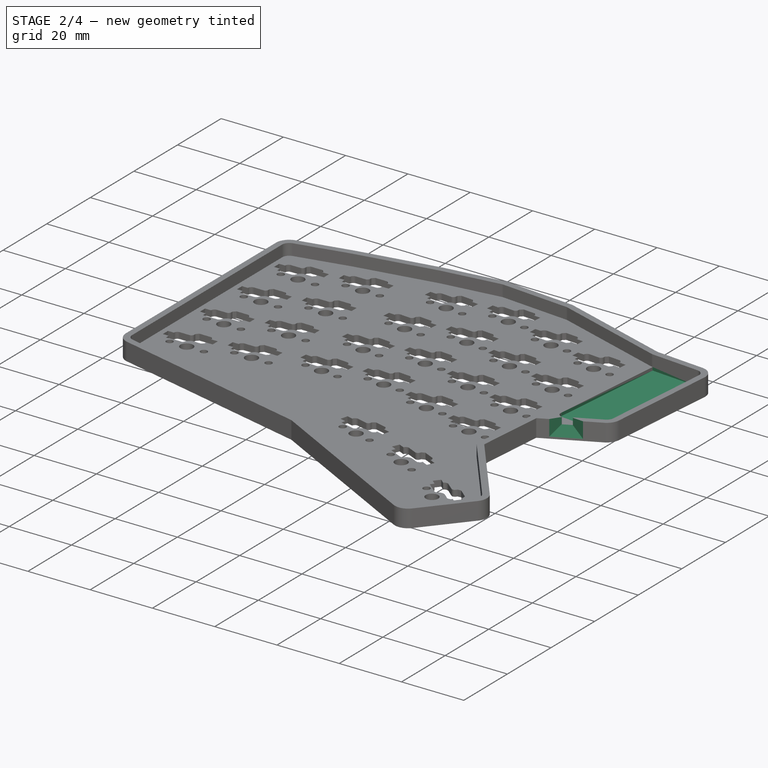
[diagram: stage 2 of 4 — iso view after this stage's code; geometry added in this stage tinted green]
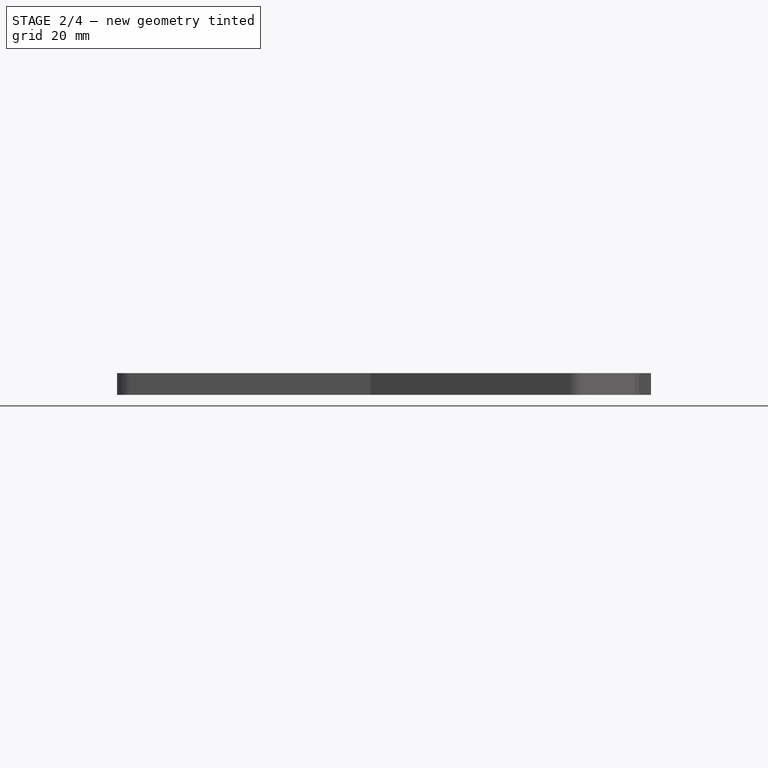
[diagram: stage 2 of 4 — front view after this stage's code; geometry added in this stage tinted green]
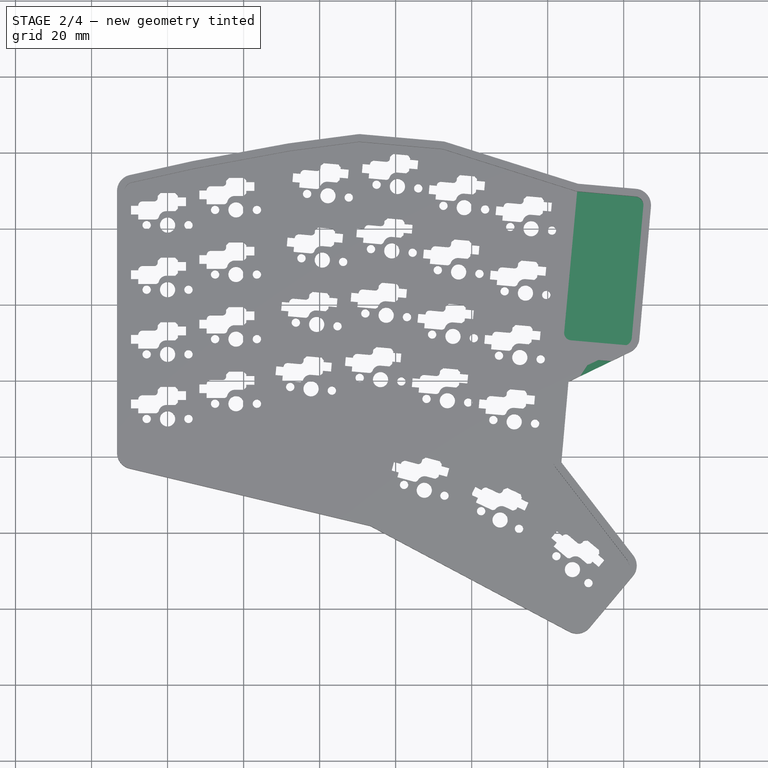
[diagram: stage 2 of 4 — top view after this stage's code; geometry added in this stage tinted green]
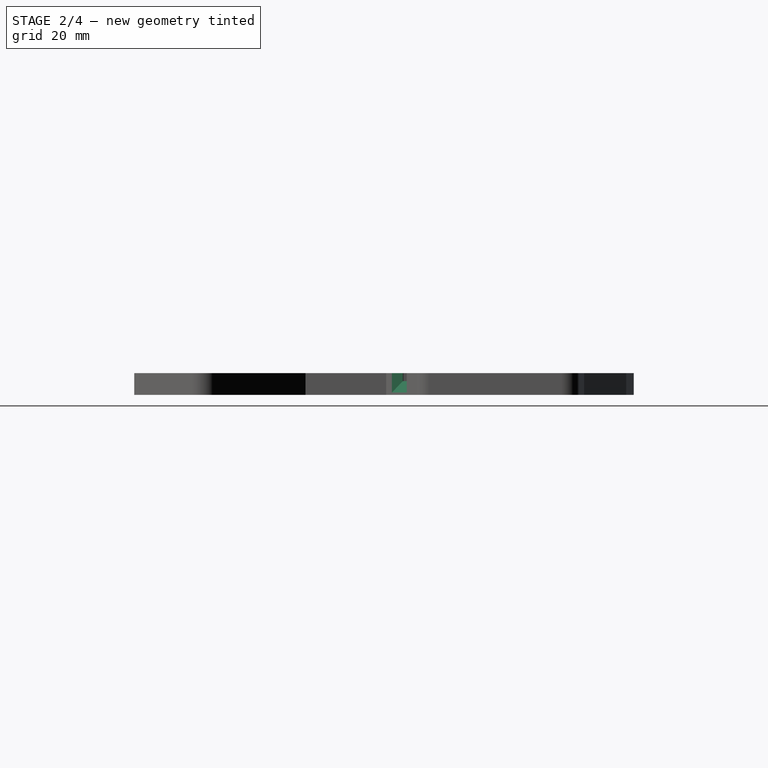
[diagram: stage 2 of 4 — right view after this stage's code; geometry added in this stage tinted green]
FEATURE [Sketcher::SketchObject] Sketch012
  ArcFitTolerance = 1e-06
  AttachmentSupport = -> [Pocket008]
  ExternalGeometry = -> [Pocket008]
  FullyConstrained = false
  MakeInternals = false
  MapMode = 5
  Placement = pos=(0,0,2) rot=(0,0,1;0rad)
  sketch-geometry (8):
    g0: LineSegment StartX=243.074 StartY=-91.5208 StartZ=0 EndX=227.752 EndY=-90.1803 EndZ=0
    g1: ArcOfCircle CenterX=242.874 CenterY=-93.8121 CenterZ=0 NormalX=0 NormalY=0 NormalZ=1 AngleXU=0 Radius=2.3 StartAngle=6.19592 EndAngle=7.76672
    g2: ArcOfCircle CenterX=239.835 CenterY=-128.544 CenterZ=0 NormalX=0 NormalY=0 NormalZ=1 AngleXU=0 Radius=2.3 StartAngle=5.16303 EndAngle=6.19592
    g3: LineSegment StartX=227.752 StartY=-90.1803 StartZ=0 EndX=224.342 EndY=-127.195 EndZ=0
    g4: ArcOfCircle CenterX=226.293 CenterY=-127.375 CenterZ=0 NormalX=0 NormalY=0 NormalZ=1 AngleXU=0 Radius=1.95969 StartAngle=3.04973 EndAngle=4.62512
    g5: GeomPoint [constr] X=224.161 Y=-129.155 Z=0
    g6: LineSegment StartX=242.126 StartY=-128.744 StartZ=0 EndX=245.165 EndY=-94.0125 EndZ=0
    g7: LineSegment StartX=226.123 StartY=-129.327 StartZ=0 EndX=240.837 EndY=-130.614 EndZ=0
  constraints (12):
    c: Coincident(g0,g-5)
    c: Coincident(g0,g-3)
    c: Coincident(g1,g-5)
    c: Coincident(g1,g0)
    c: Coincident(g2,g-6)
    c: Coincident(g3,g0)
    c: PointOnObject(g5,g3)
    c: Tangent(g3,g4) = -1.5708
    c: Coincident(g6,g2)
    c: Coincident(g6,g1)
    c: Tangent(g7,g4) = -1.5708
    c: Coincident(g7,g2)
FEATURE [PartDesign::Pocket] Pocket009
  BaseFeature = -> Pocket008
  Direction = (0,0,-1)
  Length = 1
  Length2 = 5
  Profile = -> Sketch012
  ReferenceAxis = -> Sketch012 [N_Axis]
  Refine = true
  Suppressed = false
  Type = 0
FEATURE [Sketcher::SketchObject] Sketch013
  ArcFitTolerance = 1e-06
  AttachmentSupport = -> [Pocket009]
  ExternalGeometry = -> [Pocket009]
  FullyConstrained = true
  MakeInternals = false
  MapMode = 5
  Placement = pos=(97.7664,-202.06,0) rot=(0.95127,0.218044,0.218044;1.62073rad)
  sketch-geometry (4):
    g0: LineSegment StartX=148.305 StartY=5.7 StartZ=0 EndX=148.305 EndY=3.6 EndZ=0
    g1: LineSegment StartX=148.305 StartY=3.6 StartZ=0 EndX=151.305 EndY=3.6 EndZ=0
    g2: LineSegment StartX=151.305 StartY=3.6 StartZ=0 EndX=151.305 EndY=5.7 EndZ=0
    g3: LineSegment StartX=151.305 StartY=5.7 StartZ=0 EndX=148.305 EndY=5.7 EndZ=0
  constraints (12):
    c: Coincident(g0,g1)
    c: Coincident(g1,g2)
    c: Coincident(g2,g3)
    c: Coincident(g3,g0)
    c: Vertical(g0)
    c: Vertical(g2)
    c: Horizontal(g1)
    c: Horizontal(g3)
    c: Distance(g0,g2) = 3
    c: Distance(g1,g3) = 2.1
    c: Distance(g-6,g2) = 8.6
    c: PointOnObject(g0,g-3)
FEATURE [PartDesign::Pocket] Pocket010
  BaseFeature = -> Pocket009
  Direction = (-0.435544,0.900167,3e-16)
  Length = 2
  Length2 = 5
  Profile = -> Sketch013
  ReferenceAxis = -> Sketch013 [N_Axis]
  Refine = true
  Suppressed = false
  Type = 0
FEATURE [PartDesign::Body] Body  label="Left"
  AllowCompound = true
  Group = -> [Sketch,Pad,Sketch001,Pocket,Sketch006,Pocket004,Sketch007,Pocket005,Sketch008,Pocket006,Chamfer]
  Origin = -> Origin
  Placement = pos=(-228,204,-2.1) rot=(0,0,1;0rad)
  Tip = -> Chamfer
FEATURE [PartDesign::Chamfer] Chamfer001
  Angle = 45
  Base = -> Pocket010 [Edge743,Edge742,Edge741]
  BaseFeature = -> Pocket010
  ChamferType = 1
  FlipDirection = false
  Refine = true
  Size = 3
  Size2 = 1.75
  SupportTransform = false
  Suppressed = false
  UseAllEdges = false
FEATURE [PartDesign::Body] Body002  label="Right"
  AllowCompound = true
  Group = -> [Sketch009,Pad002,Sketch010,Pocket007,Sketch011,Pocket008,Sketch012,Pocket009,Sketch013,Pocket010,Chamfer001]
  Origin = -> Origin005
  Placement = pos=(0,204,-2.1) rot=(0,0,1;0rad)
  Tip = -> Chamfer001
FEATURE [App::Part] Part  label="Case001"
  Group = -> [Body,Body001,main_002,Body002]
  Origin = -> Origin002
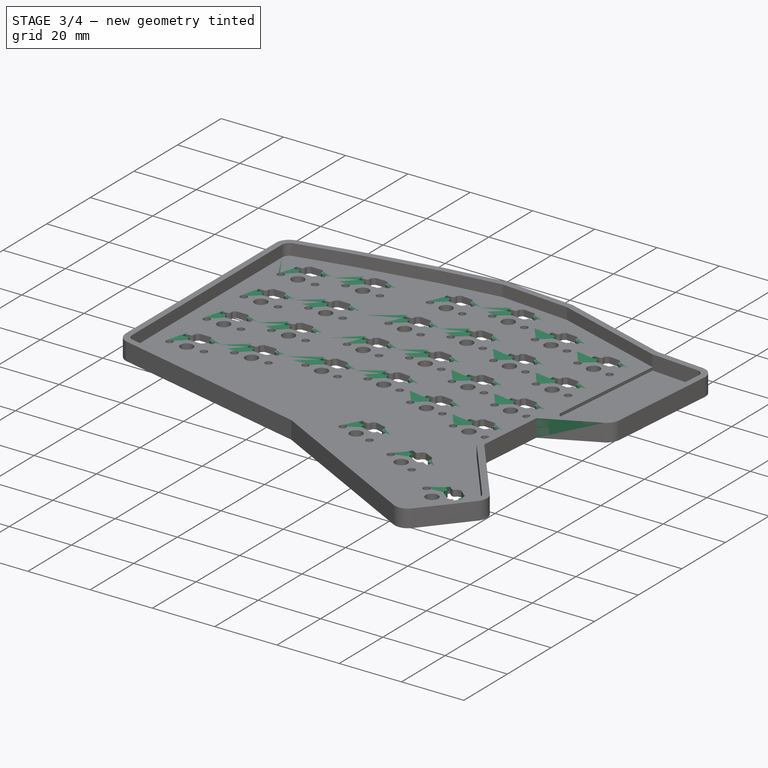
[diagram: stage 3 of 4 — iso view after this stage's code; geometry added in this stage tinted green]
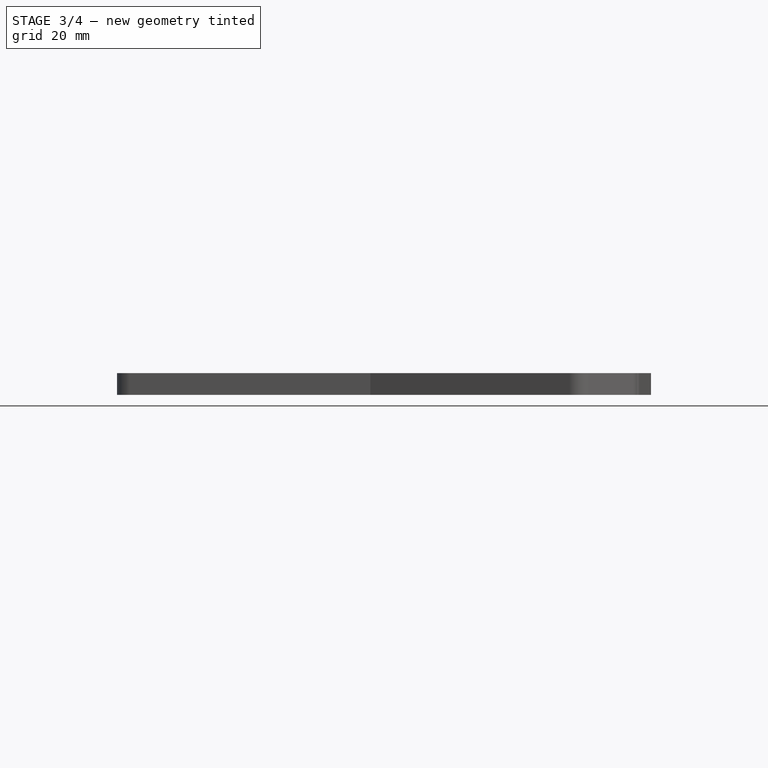
[diagram: stage 3 of 4 — front view after this stage's code; geometry added in this stage tinted green]
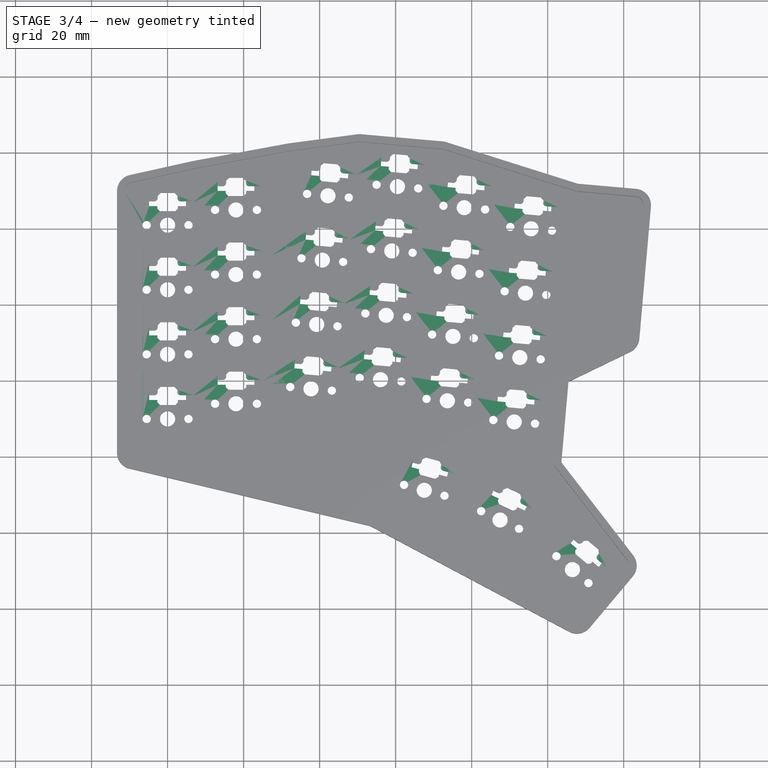
[diagram: stage 3 of 4 — top view after this stage's code; geometry added in this stage tinted green]
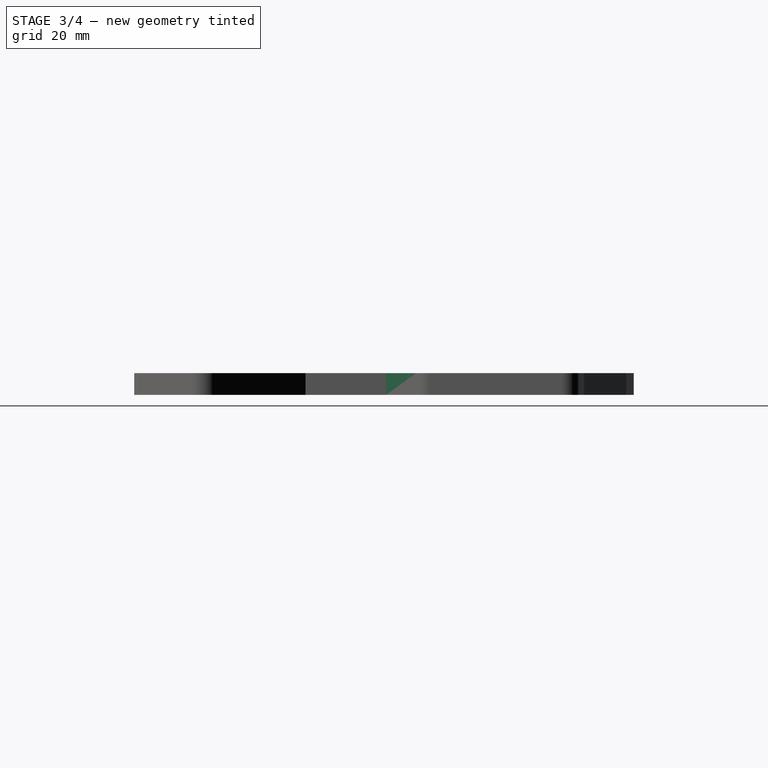
[diagram: stage 3 of 4 — right view after this stage's code; geometry added in this stage tinted green]
FEATURE [Sketcher::SketchObject] Sketch
  ArcFitTolerance = 1e-06
  FullyConstrained = false
  MakeInternals = false
  sketch-geometry (24):
    g0: LineSegment StartX=106.7 StartY=-158.921 StartZ=0 EndX=106.7 EndY=-90.1043 EndZ=0
    g1: ArcOfCircle CenterX=111 CenterY=-90.1043 CenterZ=0 NormalX=0 NormalY=0 NormalZ=1 AngleXU=0 Radius=4.3 StartAngle=1.78947 EndAngle=3.14159
    g2: LineSegment StartX=110.067 StartY=-85.9067 StartZ=0 EndX=126.466 EndY=-82.2626 EndZ=0
    g3: ArcOfCircle CenterX=127.399 CenterY=-86.4602 CenterZ=0 NormalX=0 NormalY=0 NormalZ=1 AngleXU=0 Radius=4.3 StartAngle=1.7536 EndAngle=1.78947
    g4: LineSegment StartX=126.617 StartY=-82.2318 StartZ=0 EndX=151.676 EndY=-77.5991 EndZ=0
    g5: ArcOfCircle CenterX=152.458 CenterY=-81.8274 CenterZ=0 NormalX=0 NormalY=0 NormalZ=1 AngleXU=0 Radius=4.3 StartAngle=1.7022 EndAngle=1.7536
    g6: LineSegment StartX=151.895 StartY=-77.5645 StartZ=0 EndX=169.906 EndY=-75.184 EndZ=0
    g7: ArcOfCircle CenterX=170.47 CenterY=-79.447 CenterZ=0 NormalX=0 NormalY=0 NormalZ=1 AngleXU=0 Radius=4.3 StartAngle=1.48353 EndAngle=1.7022
    g8: LineSegment StartX=170.844 StartY=-75.1633 StartZ=0 EndX=192.323 EndY=-77.0425 EndZ=0
    g9: ArcOfCircle CenterX=191.948 CenterY=-81.3261 CenterZ=0 NormalX=0 NormalY=0 NormalZ=1 AngleXU=0 Radius=4.3 StartAngle=1.26486 EndAngle=1.48353
    g10: LineSegment StartX=193.244 StartY=-77.2258 StartZ=0 EndX=227.959 EndY=-88.1908 EndZ=0
    g11: LineSegment StartX=227.959 StartY=-88.1908 StartZ=0 EndX=243.248 EndY=-89.5284 EndZ=0
    g12: ArcOfCircle CenterX=242.874 CenterY=-93.8121 CenterZ=0 NormalX=0 NormalY=0 NormalZ=1 AngleXU=0 Radius=4.3 StartAngle=6.19592 EndAngle=7.76671
    g13: LineSegment StartX=247.157 StartY=-94.1868 StartZ=0 EndX=244.119 EndY=-128.918 EndZ=0
    g14: ArcOfCircle CenterX=239.835 CenterY=-128.544 CenterZ=0 NormalX=0 NormalY=0 NormalZ=1 AngleXU=0 Radius=4.3 StartAngle=5.16303 EndAngle=6.19592
    g15: LineSegment StartX=241.708 StartY=-132.414 StartZ=0 EndX=225.458 EndY=-140.277 EndZ=0
    g16: LineSegment StartX=225.458 StartY=-140.277 StartZ=0 EndX=223.602 EndY=-161.491 EndZ=0
    g17: LineSegment StartX=223.602 StartY=-161.491 StartZ=0 EndX=242.522 EndY=-185.992 EndZ=0
    g18: ArcOfCircle CenterX=239.119 CenterY=-188.62 CenterZ=0 NormalX=0 NormalY=0 NormalZ=1 AngleXU=0 Radius=4.3 StartAngle=5.58505 EndAngle=6.94079
    g19: ArcOfCircle CenterX=227.696 CenterY=-202.233 CenterZ=0 NormalX=0 NormalY=0 NormalZ=1 AngleXU=0 Radius=4.3 StartAngle=4.22403 EndAngle=5.58505
    g20: LineSegment StartX=225.679 StartY=-206.031 StartZ=0 EndX=173.367 EndY=-178.238 EndZ=0
    g21: LineSegment StartX=173.367 StartY=-178.238 StartZ=0 EndX=110.001 EndY=-163.104 EndZ=0
    g22: ArcOfCircle CenterX=111 CenterY=-158.921 CenterZ=0 NormalX=0 NormalY=0 NormalZ=1 AngleXU=0 Radius=4.3 StartAngle=3.14159 EndAngle=4.47794
    g23: LineSegment StartX=230.99 StartY=-204.997 StartZ=0 EndX=242.413 EndY=-191.384 EndZ=0
  constraints (24):
    c: Coincident(g0,g22)
    c: Coincident(g0,g1)
    c: Coincident(g21,g22)
    c: Coincident(g1,g2)
    c: Coincident(g2,g3)
    c: Coincident(g3,g4)
    c: Coincident(g4,g5)
    c: Coincident(g5,g6)
    c: Coincident(g6,g7)
    c: Coincident(g7,g8)
    c: Coincident(g20,g21)
    c: Coincident(g8,g9)
    c: Coincident(g9,g10)
    c: Coincident(g16,g17)
    c: Coincident(g15,g16)
    c: Coincident(g19,g20)
    c: Coincident(g10,g11)
    c: Coincident(g14,g15)
    c: Coincident(g17,g18)
    c: Coincident(g11,g12)
    c: Coincident(g13,g14)
    c: Coincident(g12,g13)
    c: Coincident(g23,g19)
    c: Coincident(g23,g18)
FEATURE [PartDesign::Pad] Pad
  Direction = (0,0,1)
  Length = 5.7
  Length2 = 10
  Profile = -> Sketch
  ReferenceAxis = -> Sketch [N_Axis]
  Refine = true
  Suppressed = false
  Type = 0
FEATURE [Sketcher::SketchObject] Sketch001
  ArcFitTolerance = 1e-06
  AttachmentSupport = -> [Pad]
  FullyConstrained = false
  MakeInternals = false
  MapMode = 5
  Placement = pos=(0,0,5.7) rot=(0,0,1;0rad)
  sketch-geometry (28):
    g0: LineSegment StartX=108.7 StartY=-158.921 StartZ=0 EndX=108.7 EndY=-90.1043 EndZ=0
    g1: ArcOfCircle CenterX=111 CenterY=-90.1043 CenterZ=0 NormalX=0 NormalY=0 NormalZ=1 AngleXU=0 Radius=2.3 StartAngle=1.78947 EndAngle=3.14159
    g2: LineSegment StartX=110.501 StartY=-87.8591 StartZ=0 EndX=126.9 EndY=-84.2149 EndZ=0
    g3: ArcOfCircle CenterX=127.399 CenterY=-86.4602 CenterZ=0 NormalX=0 NormalY=0 NormalZ=1 AngleXU=0 Radius=2.3 StartAngle=1.7536 EndAngle=1.78947
    g4: LineSegment StartX=126.981 StartY=-84.1985 StartZ=0 EndX=152.04 EndY=-79.5658 EndZ=0
    g5: ArcOfCircle CenterX=152.458 CenterY=-81.8274 CenterZ=0 NormalX=0 NormalY=0 NormalZ=1 AngleXU=0 Radius=2.3 StartAngle=1.7022 EndAngle=1.7536
    g6: LineSegment StartX=152.157 StartY=-79.5473 StartZ=0 EndX=170.168 EndY=-77.1668 EndZ=0
    g7: ArcOfCircle CenterX=170.47 CenterY=-79.447 CenterZ=0 NormalX=0 NormalY=0 NormalZ=1 AngleXU=0 Radius=2.3 StartAngle=1.48353 EndAngle=1.7022
    g8: LineSegment StartX=170.67 StartY=-77.1557 StartZ=0 EndX=192.149 EndY=-79.0349 EndZ=0
    g9: ArcOfCircle CenterX=191.948 CenterY=-81.3261 CenterZ=0 NormalX=0 NormalY=0 NormalZ=1 AngleXU=0 Radius=2.3 StartAngle=1.26486 EndAngle=1.48353
    g10: LineSegment StartX=192.641 StartY=-79.1329 StartZ=0 EndX=227.388 EndY=-90.1078 EndZ=0
    g11: ArcOfCircle CenterX=227.9 CenterY=-88.4868 CenterZ=0 NormalX=0 NormalY=0 NormalZ=1 AngleXU=0 Radius=1.7 StartAngle=4.40645 EndAngle=4.62512
    g12: LineSegment StartX=227.752 StartY=-90.1803 StartZ=0 EndX=243.074 EndY=-91.5208 EndZ=0
    g13: ArcOfCircle CenterX=242.874 CenterY=-93.8121 CenterZ=0 NormalX=0 NormalY=0 NormalZ=1 AngleXU=0 Radius=2.3 StartAngle=6.19592 EndAngle=7.76672
    g14: LineSegment StartX=245.165 StartY=-94.0125 StartZ=0 EndX=242.126 EndY=-128.744 EndZ=0
    g15: ArcOfCircle CenterX=239.835 CenterY=-128.544 CenterZ=0 NormalX=0 NormalY=0 NormalZ=1 AngleXU=0 Radius=2.3 StartAngle=5.16303 EndAngle=6.19592
    g16: ArcOfCircle CenterX=225.174 CenterY=-140.081 CenterZ=0 NormalX=0 NormalY=0 NormalZ=1 AngleXU=0 Radius=1.7 StartAngle=2.02144 EndAngle=3.05433
    g17: ArcOfCircle CenterX=223.292 CenterY=-161.582 CenterZ=0 NormalX=0 NormalY=0 NormalZ=1 AngleXU=0 Radius=1.7 StartAngle=3.05433 EndAngle=3.7992
    g18: ArcOfCircle CenterX=239.119 CenterY=-188.62 CenterZ=0 NormalX=0 NormalY=0 NormalZ=1 AngleXU=0 Radius=2.3 StartAngle=5.58505 EndAngle=6.94079
    g19: ArcOfCircle CenterX=227.696 CenterY=-202.233 CenterZ=0 NormalX=0 NormalY=0 NormalZ=1 AngleXU=0 Radius=2.3 StartAngle=4.22403 EndAngle=5.58505
    g20: LineSegment StartX=226.617 StartY=-204.264 StartZ=0 EndX=174.272 EndY=-176.454 EndZ=0
    g21: ArcOfCircle CenterX=173.474 CenterY=-177.955 CenterZ=0 NormalX=0 NormalY=0 NormalZ=1 AngleXU=0 Radius=1.7 StartAngle=1.08243 EndAngle=1.33635
    g22: LineSegment StartX=173.869 StartY=-176.301 StartZ=0 EndX=110.466 EndY=-161.159 EndZ=0
    g23: ArcOfCircle CenterX=111 CenterY=-158.921 CenterZ=0 NormalX=0 NormalY=0 NormalZ=1 AngleXU=0 Radius=2.3 StartAngle=3.14159 EndAngle=4.47794
    g24: LineSegment StartX=224.433 StartY=-138.551 StartZ=0 EndX=240.837 EndY=-130.614 EndZ=0
    g25: LineSegment StartX=223.48 StartY=-139.933 StartZ=0 EndX=221.599 EndY=-161.434 EndZ=0
    g26: LineSegment StartX=221.947 StartY=-162.621 StartZ=0 EndX=240.94 EndY=-187.214 EndZ=0
    g27: LineSegment StartX=240.881 StartY=-190.098 StartZ=0 EndX=229.458 EndY=-203.712 EndZ=0
  constraints (28):
    c: Coincident(g0,g23)
    c: Coincident(g0,g1)
    c: Coincident(g22,g23)
    c: Coincident(g1,g2)
    c: Coincident(g2,g3)
    c: Coincident(g3,g4)
    c: Coincident(g4,g5)
    c: Coincident(g5,g6)
    c: Coincident(g6,g7)
    c: Coincident(g7,g8)
    c: Coincident(g21,g22)
    c: Coincident(g20,g21)
    c: Coincident(g8,g9)
    c: Coincident(g9,g10)
    c: Coincident(g19,g20)
    c: Coincident(g10,g11)
    c: Coincident(g11,g12)
    c: Coincident(g14,g15)
    c: Coincident(g12,g13)
    c: Coincident(g13,g14)
    c: Coincident(g24,g16)
    c: Coincident(g24,g15)
    c: Coincident(g25,g16)
    c: Coincident(g25,g17)
    c: Coincident(g26,g17)
    c: Coincident(g26,g18)
    c: Coincident(g27,g18)
    c: Coincident(g27,g19)
FEATURE [PartDesign::Pocket] Pocket
  BaseFeature = -> Pad
  Direction = (0,0,-1)
  Length = 3.7
  Length2 = 5
  Profile = -> Sketch001
  ReferenceAxis = -> Sketch001 [N_Axis]
  Refine = true
  Suppressed = false
  Type = 0
FEATURE [PartDesign::Body] Body001  label="Plate"
  AllowCompound = false
  Group = -> [Sketch002,Pad001]
  Origin = -> Origin003
  Placement = pos=(-228.07,204.2,2.4) rot=(0,0,1;0rad)
  Tip = -> Pad001
FEATURE [Sketcher::SketchObject] Sketch006
  ArcFitTolerance = 1e-06
  AttachmentSupport = -> [Pocket]
  FullyConstrained = false
  MakeInternals = false
  MapMode = 5
  Placement = pos=(0,0,2) rot=(0,0,1;0rad)
  sketch-geometry (648):
    g0: LineSegment StartX=115.154 StartY=-142.675 StartZ=0 EndX=117.304 EndY=-142.675 EndZ=0
    g1: LineSegment StartX=115.154 StartY=-145.025 StartZ=0 EndX=115.154 EndY=-142.675 EndZ=0
    g2: LineSegment StartX=115.154 StartY=-145.025 StartZ=0 EndX=117.304 EndY=-145.025 EndZ=0
    g3: LineSegment StartX=117.304 StartY=-142.225 StartZ=0 EndX=117.979 EndY=-141.549 EndZ=0
    g4: LineSegment StartX=117.304 StartY=-142.675 StartZ=0 EndX=117.304 EndY=-142.225 EndZ=0
    g5: LineSegment StartX=117.304 StartY=-145.025 StartZ=0 EndX=117.304 EndY=-145.675 EndZ=0
    g6: LineSegment StartX=117.304 StartY=-145.675 StartZ=0 EndX=117.979 EndY=-146.351 EndZ=0
    g7: LineSegment StartX=117.979 StartY=-141.549 StartZ=0 EndX=121.829 EndY=-141.549 EndZ=0
    g8: LineSegment StartX=117.979 StartY=-146.351 StartZ=0 EndX=120.329 EndY=-146.351 EndZ=0
    g9: LineSegment StartX=121.829 StartY=-141.549 StartZ=0 EndX=122.6 EndY=-142.32 EndZ=0
    g10: LineSegment StartX=122.6 StartY=-142.32 StartZ=0 EndX=122.6 EndY=-142.85 EndZ=0
    g11: LineSegment StartX=123.208 StartY=-148.525 StartZ=0 EndX=127.725 EndY=-148.525 EndZ=0
    g12: LineSegment StartX=123.5 StartY=-143.75 StartZ=0 EndX=126.6 EndY=-143.75 EndZ=0
    g13: LineSegment StartX=127.725 StartY=-144.875 StartZ=0 EndX=129.625 EndY=-144.875 EndZ=0
    g14: LineSegment StartX=127.725 StartY=-147.225 StartZ=0 EndX=127.725 EndY=-148.525 EndZ=0
    g15: LineSegment StartX=129.625 StartY=-147.225 StartZ=0 EndX=127.725 EndY=-147.225 EndZ=0
    g16: LineSegment StartX=129.625 StartY=-147.225 StartZ=0 EndX=129.625 EndY=-144.875 EndZ=0
    g17: ArcOfCircle CenterX=120.329 CenterY=-148.383 CenterZ=0 NormalX=0 NormalY=0 NormalZ=1 AngleXU=0 Radius=2.03274 StartAngle=0.237621 EndAngle=1.57081
    g18: ArcOfCircle CenterX=123.176 CenterY=-147.604 CenterZ=0 NormalX=0 NormalY=0 NormalZ=1 AngleXU=0 Radius=0.921894 StartAngle=3.47461 EndAngle=4.74644
    g19: ArcOfCircle CenterX=123.5 CenterY=-142.85 CenterZ=0 NormalX=0 NormalY=0 NormalZ=1 AngleXU=0 Radius=0.9 StartAngle=3.14159 EndAngle=4.71239
    g20: ArcOfCircle CenterX=126.6 CenterY=-144.875 CenterZ=0 NormalX=0 NormalY=0 NormalZ=1 AngleXU=0 Radius=1.125 StartAngle=1e-06 EndAngle=1.5708
    g21: Circle CenterX=114.5 CenterY=-150 CenterZ=0 NormalX=0 NormalY=0 NormalZ=-1 AngleXU=0 Radius=1.1
    g22: Circle CenterX=120 CenterY=-150 CenterZ=0 NormalX=0 NormalY=0 NormalZ=-1 AngleXU=0 Radius=2
    g23: Circle CenterX=125.5 CenterY=-150 CenterZ=0 NormalX=0 NormalY=0 NormalZ=-1 AngleXU=0 Radius=1.1
    g24: LineSegment StartX=115.154 StartY=-125.675 StartZ=0 EndX=117.304 EndY=-125.675 EndZ=0
    g25: LineSegment StartX=115.154 StartY=-128.025 StartZ=0 EndX=115.154 EndY=-125.675 EndZ=0
    g26: LineSegment StartX=115.154 StartY=-128.025 StartZ=0 EndX=117.304 EndY=-128.025 EndZ=0
    g27: LineSegment StartX=117.304 StartY=-125.225 StartZ=0 EndX=117.979 EndY=-124.549 EndZ=0
    g28: LineSegment StartX=117.304 StartY=-125.675 StartZ=0 EndX=117.304 EndY=-125.225 EndZ=0
    g29: LineSegment StartX=117.304 StartY=-128.025 StartZ=0 EndX=117.304 EndY=-128.675 EndZ=0
    g30: LineSegment StartX=117.304 StartY=-128.675 StartZ=0 EndX=117.979 EndY=-129.351 EndZ=0
    g31: LineSegment StartX=117.979 StartY=-124.549 StartZ=0 EndX=121.829 EndY=-124.549 EndZ=0
    g32: LineSegment StartX=117.979 StartY=-129.351 StartZ=0 EndX=120.329 EndY=-129.351 EndZ=0
    g33: LineSegment StartX=121.829 StartY=-124.549 StartZ=0 EndX=122.6 EndY=-125.32 EndZ=0
    g34: LineSegment StartX=122.6 StartY=-125.32 StartZ=0 EndX=122.6 EndY=-125.85 EndZ=0
    g35: LineSegment StartX=123.208 StartY=-131.525 StartZ=0 EndX=127.725 EndY=-131.525 EndZ=0
    g36: LineSegment StartX=123.5 StartY=-126.75 StartZ=0 EndX=126.6 EndY=-126.75 EndZ=0
    g37: LineSegment StartX=127.725 StartY=-127.875 StartZ=0 EndX=129.625 EndY=-127.875 EndZ=0
    g38: LineSegment StartX=127.725 StartY=-130.225 StartZ=0 EndX=127.725 EndY=-131.525 EndZ=0
    g39: LineSegment StartX=129.625 StartY=-130.225 StartZ=0 EndX=127.725 EndY=-130.225 EndZ=0
    g40: LineSegment StartX=129.625 StartY=-130.225 StartZ=0 EndX=129.625 EndY=-127.875 EndZ=0
    g41: ArcOfCircle CenterX=120.329 CenterY=-131.383 CenterZ=0 NormalX=0 NormalY=0 NormalZ=1 AngleXU=0 Radius=2.03274 StartAngle=0.237618 EndAngle=1.5708
    g42: ArcOfCircle CenterX=123.176 CenterY=-130.604 CenterZ=0 NormalX=0 NormalY=0 NormalZ=1 AngleXU=0 Radius=0.921894 StartAngle=3.47461 EndAngle=4.74644
    g43: ArcOfCircle CenterX=123.5 CenterY=-125.85 CenterZ=0 NormalX=0 NormalY=0 NormalZ=1 AngleXU=0 Radius=0.9 StartAngle=3.14159 EndAngle=4.71239
    g44: ArcOfCircle CenterX=126.6 CenterY=-127.875 CenterZ=0 NormalX=0 NormalY=0 NormalZ=1 AngleXU=0 Radius=1.125 StartAngle=1e-06 EndAngle=1.5708
    g45: Circle CenterX=114.5 CenterY=-133 CenterZ=0 NormalX=0 NormalY=0 NormalZ=-1 AngleXU=0 Radius=1.1
    g46: Circle CenterX=120 CenterY=-133 CenterZ=0 NormalX=0 NormalY=0 NormalZ=-1 AngleXU=0 Radius=2
    g47: Circle CenterX=125.5 CenterY=-133 CenterZ=0 NormalX=0 NormalY=0 NormalZ=-1 AngleXU=0 Radius=1.1
    g48: LineSegment StartX=115.154 StartY=-108.675 StartZ=0 EndX=117.304 EndY=-108.675 EndZ=0
    g49: LineSegment StartX=115.154 StartY=-111.025 StartZ=0 EndX=115.154 EndY=-108.675 EndZ=0
    g50: LineSegment StartX=115.154 StartY=-111.025 StartZ=0 EndX=117.304 EndY=-111.025 EndZ=0
    g51: LineSegment StartX=117.304 StartY=-108.225 StartZ=0 EndX=117.979 EndY=-107.549 EndZ=0
    g52: LineSegment StartX=117.304 StartY=-108.675 StartZ=0 EndX=117.304 EndY=-108.225 EndZ=0
    g53: LineSegment StartX=117.304 StartY=-111.025 StartZ=0 EndX=117.304 EndY=-111.675 EndZ=0
    g54: LineSegment StartX=117.304 StartY=-111.675 StartZ=0 EndX=117.979 EndY=-112.351 EndZ=0
    g55: LineSegment StartX=117.979 StartY=-107.549 StartZ=0 EndX=121.829 EndY=-107.549 EndZ=0
    g56: LineSegment StartX=117.979 StartY=-112.351 StartZ=0 EndX=120.329 EndY=-112.351 EndZ=0
    g57: LineSegment StartX=121.829 StartY=-107.549 StartZ=0 EndX=122.6 EndY=-108.32 EndZ=0
    g58: LineSegment StartX=122.6 StartY=-108.32 StartZ=0 EndX=122.6 EndY=-108.85 EndZ=0
    g59: LineSegment StartX=123.208 StartY=-114.525 StartZ=0 EndX=127.725 EndY=-114.525 EndZ=0
    g60: LineSegment StartX=123.5 StartY=-109.75 StartZ=0 EndX=126.6 EndY=-109.75 EndZ=0
    g61: LineSegment StartX=127.725 StartY=-110.875 StartZ=0 EndX=129.625 EndY=-110.875 EndZ=0
    g62: LineSegment StartX=127.725 StartY=-113.225 StartZ=0 EndX=127.725 EndY=-114.525 EndZ=0
    g63: LineSegment StartX=129.625 StartY=-113.225 StartZ=0 EndX=127.725 EndY=-113.225 EndZ=0
    g64: LineSegment StartX=129.625 StartY=-113.225 StartZ=0 EndX=129.625 EndY=-110.875 EndZ=0
    g65: ArcOfCircle CenterX=120.329 CenterY=-114.383 CenterZ=0 NormalX=0 NormalY=0 NormalZ=1 AngleXU=0 Radius=2.03274 StartAngle=0.237618 EndAngle=1.5708
    g66: ArcOfCircle CenterX=123.176 CenterY=-113.604 CenterZ=0 NormalX=0 NormalY=0 NormalZ=1 AngleXU=0 Radius=0.921894 StartAngle=3.47461 EndAngle=4.74644
    g67: ArcOfCircle CenterX=123.5 CenterY=-108.85 CenterZ=0 NormalX=0 NormalY=0 NormalZ=1 AngleXU=0 Radius=0.9 StartAngle=3.14159 EndAngle=4.71239
    g68: ArcOfCircle CenterX=126.6 CenterY=-110.875 CenterZ=0 NormalX=0 NormalY=0 NormalZ=1 AngleXU=0 Radius=1.125 StartAngle=8.88889e-07 EndAngle=1.5708
    g69: Circle CenterX=114.5 CenterY=-116 CenterZ=0 NormalX=0 NormalY=0 NormalZ=-1 AngleXU=0 Radius=1.1
    g70: Circle CenterX=120 CenterY=-116 CenterZ=0 NormalX=0 NormalY=0 NormalZ=-1 AngleXU=0 Radius=2
    g71: Circle CenterX=125.5 CenterY=-116 CenterZ=0 NormalX=0 NormalY=0 NormalZ=-1 AngleXU=0 Radius=1.1
    g72: LineSegment StartX=115.154 StartY=-91.675 StartZ=0 EndX=117.304 EndY=-91.675 EndZ=0
    g73: LineSegment StartX=115.154 StartY=-94.025 StartZ=0 EndX=115.154 EndY=-91.675 EndZ=0
    g74: LineSegment StartX=115.154 StartY=-94.025 StartZ=0 EndX=117.304 EndY=-94.025 EndZ=0
    g75: LineSegment StartX=117.304 StartY=-91.225 StartZ=0 EndX=117.979 EndY=-90.5493 EndZ=0
    g76: LineSegment StartX=117.304 StartY=-91.675 StartZ=0 EndX=117.304 EndY=-91.225 EndZ=0
    g77: LineSegment StartX=117.304 StartY=-94.025 StartZ=0 EndX=117.304 EndY=-94.675 EndZ=0
    g78: LineSegment StartX=117.304 StartY=-94.675 StartZ=0 EndX=117.979 EndY=-95.3507 EndZ=0
    g79: LineSegment StartX=117.979 StartY=-90.5493 StartZ=0 EndX=121.829 EndY=-90.5493 EndZ=0
    g80: LineSegment StartX=117.979 StartY=-95.3507 StartZ=0 EndX=120.329 EndY=-95.3507 EndZ=0
    g81: LineSegment StartX=121.829 StartY=-90.5493 StartZ=0 EndX=122.6 EndY=-91.32 EndZ=0
    g82: LineSegment StartX=122.6 StartY=-91.32 StartZ=0 EndX=122.6 EndY=-91.85 EndZ=0
    g83: LineSegment StartX=123.208 StartY=-97.525 StartZ=0 EndX=127.725 EndY=-97.525 EndZ=0
    g84: LineSegment StartX=123.5 StartY=-92.75 StartZ=0 EndX=126.6 EndY=-92.75 EndZ=0
    g85: LineSegment StartX=127.725 StartY=-93.875 StartZ=0 EndX=129.625 EndY=-93.875 EndZ=0
    g86: LineSegment StartX=127.725 StartY=-96.225 StartZ=0 EndX=127.725 EndY=-97.525 EndZ=0
    g87: LineSegment StartX=129.625 StartY=-96.225 StartZ=0 EndX=127.725 EndY=-96.225 EndZ=0
    g88: LineSegment StartX=129.625 StartY=-96.225 StartZ=0 EndX=129.625 EndY=-93.875 EndZ=0
    g89: ArcOfCircle CenterX=120.329 CenterY=-97.3835 CenterZ=0 NormalX=0 NormalY=0 NormalZ=1 AngleXU=0 Radius=2.03274 StartAngle=0.237618 EndAngle=1.5708
    g90: ArcOfCircle CenterX=123.176 CenterY=-96.6036 CenterZ=0 NormalX=0 NormalY=0 NormalZ=1 AngleXU=0 Radius=0.921894 StartAngle=3.47461 EndAngle=4.74644
    g91: ArcOfCircle CenterX=123.5 CenterY=-91.85 CenterZ=0 NormalX=0 NormalY=0 NormalZ=1 AngleXU=0 Radius=0.9 StartAngle=3.14159 EndAngle=4.71239
    g92: ArcOfCircle CenterX=126.6 CenterY=-93.875 CenterZ=0 NormalX=0 NormalY=0 NormalZ=1 AngleXU=0 Radius=1.125 StartAngle=8.88889e-07 EndAngle=1.5708
    g93: Circle CenterX=114.5 CenterY=-99 CenterZ=0 NormalX=0 NormalY=0 NormalZ=-1 AngleXU=0 Radius=1.1
    g94: Circle CenterX=120 CenterY=-99 CenterZ=0 NormalX=0 NormalY=0 NormalZ=-1 AngleXU=0 Radius=2
    g95: Circle CenterX=125.5 CenterY=-99 CenterZ=0 NormalX=0 NormalY=0 NormalZ=-1 AngleXU=0 Radius=1.1
    g96: LineSegment StartX=133.154 StartY=-138.675 StartZ=0 EndX=135.304 EndY=-138.675 EndZ=0
    g97: LineSegment StartX=133.154 StartY=-141.025 StartZ=0 EndX=133.154 EndY=-138.675 EndZ=0
    g98: LineSegment StartX=133.154 StartY=-141.025 StartZ=0 EndX=135.304 EndY=-141.025 EndZ=0
    g99: LineSegment StartX=135.304 StartY=-138.225 StartZ=0 EndX=135.979 EndY=-137.549 EndZ=0
    g100: LineSegment StartX=135.304 StartY=-138.675 StartZ=0 EndX=135.304 EndY=-138.225 EndZ=0
    g101: LineSegment StartX=135.304 StartY=-141.025 StartZ=0 EndX=135.304 EndY=-141.675 EndZ=0
    g102: LineSegment StartX=135.304 StartY=-141.675 StartZ=0 EndX=135.979 EndY=-142.351 EndZ=0
    g103: LineSegment StartX=135.979 StartY=-137.549 StartZ=0 EndX=139.829 EndY=-137.549 EndZ=0
    g104: LineSegment StartX=135.979 StartY=-142.351 StartZ=0 EndX=138.329 EndY=-142.351 EndZ=0
    g105: LineSegment StartX=139.829 StartY=-137.549 StartZ=0 EndX=140.6 EndY=-138.32 EndZ=0
    g106: LineSegment StartX=140.6 StartY=-138.32 StartZ=0 EndX=140.6 EndY=-138.85 EndZ=0
    g107: LineSegment StartX=141.208 StartY=-144.525 StartZ=0 EndX=145.725 EndY=-144.525 EndZ=0
    g108: LineSegment StartX=141.5 StartY=-139.75 StartZ=0 EndX=144.6 EndY=-139.75 EndZ=0
    g109: LineSegment StartX=145.725 StartY=-140.875 StartZ=0 EndX=147.625 EndY=-140.875 EndZ=0
    g110: LineSegment StartX=145.725 StartY=-143.225 StartZ=0 EndX=145.725 EndY=-144.525 EndZ=0
    g111: LineSegment StartX=147.625 StartY=-143.225 StartZ=0 EndX=145.725 EndY=-143.225 EndZ=0
    g112: LineSegment StartX=147.625 StartY=-143.225 StartZ=0 EndX=147.625 EndY=-140.875 EndZ=0
    g113: ArcOfCircle CenterX=138.329 CenterY=-144.383 CenterZ=0 NormalX=0 NormalY=0 NormalZ=1 AngleXU=0 Radius=2.03274 StartAngle=0.237618 EndAngle=1.57081
    g114: ArcOfCircle CenterX=141.176 CenterY=-143.604 CenterZ=0 NormalX=0 NormalY=0 NormalZ=1 AngleXU=0 Radius=0.921894 StartAngle=3.47461 EndAngle=4.74644
    g115: ArcOfCircle CenterX=141.5 CenterY=-138.85 CenterZ=0 NormalX=0 NormalY=0 NormalZ=1 AngleXU=0 Radius=0.9 StartAngle=3.14159 EndAngle=4.71239
    g116: ArcOfCircle CenterX=144.6 CenterY=-140.875 CenterZ=0 NormalX=0 NormalY=0 NormalZ=1 AngleXU=0 Radius=1.125 StartAngle=1e-06 EndAngle=1.5708
    g117: Circle CenterX=132.5 CenterY=-146 CenterZ=0 NormalX=0 NormalY=0 NormalZ=-1 AngleXU=0 Radius=1.1
    g118: Circle CenterX=138 CenterY=-146 CenterZ=0 NormalX=0 NormalY=0 NormalZ=-1 AngleXU=0 Radius=2
    g119: Circle CenterX=143.5 CenterY=-146 CenterZ=0 NormalX=0 NormalY=0 NormalZ=-1 AngleXU=0 Radius=1.1
    g120: LineSegment StartX=133.154 StartY=-121.675 StartZ=0 EndX=135.304 EndY=-121.675 EndZ=0
    g121: LineSegment StartX=133.154 StartY=-124.025 StartZ=0 EndX=133.154 EndY=-121.675 EndZ=0
    g122: LineSegment StartX=133.154 StartY=-124.025 StartZ=0 EndX=135.304 EndY=-124.025 EndZ=0
    g123: LineSegment StartX=135.304 StartY=-121.225 StartZ=0 EndX=135.979 EndY=-120.549 EndZ=0
    g124: LineSegment StartX=135.304 StartY=-121.675 StartZ=0 EndX=135.304 EndY=-121.225 EndZ=0
    g125: LineSegment StartX=135.304 StartY=-124.025 StartZ=0 EndX=135.304 EndY=-124.675 EndZ=0
    g126: LineSegment StartX=135.304 StartY=-124.675 StartZ=0 EndX=135.979 EndY=-125.351 EndZ=0
    g127: LineSegment StartX=135.979 StartY=-120.549 StartZ=0 EndX=139.829 EndY=-120.549 EndZ=0
    g128: LineSegment StartX=135.979 StartY=-125.351 StartZ=0 EndX=138.329 EndY=-125.351 EndZ=0
    g129: LineSegment StartX=139.829 StartY=-120.549 StartZ=0 EndX=140.6 EndY=-121.32 EndZ=0
    g130: LineSegment StartX=140.6 StartY=-121.32 StartZ=0 EndX=140.6 EndY=-121.85 EndZ=0
    g131: LineSegment StartX=141.208 StartY=-127.525 StartZ=0 EndX=145.725 EndY=-127.525 EndZ=0
    g132: LineSegment StartX=141.5 StartY=-122.75 StartZ=0 EndX=144.6 EndY=-122.75 EndZ=0
    g133: LineSegment StartX=145.725 StartY=-123.875 StartZ=0 EndX=147.625 EndY=-123.875 EndZ=0
    g134: LineSegment StartX=145.725 StartY=-126.225 StartZ=0 EndX=145.725 EndY=-127.525 EndZ=0
    g135: LineSegment StartX=147.625 StartY=-126.225 StartZ=0 EndX=145.725 EndY=-126.225 EndZ=0
    g136: LineSegment StartX=147.625 StartY=-126.225 StartZ=0 EndX=147.625 EndY=-123.875 EndZ=0
    g137: ArcOfCircle CenterX=138.329 CenterY=-127.383 CenterZ=0 NormalX=0 NormalY=0 NormalZ=1 AngleXU=0 Radius=2.03274 StartAngle=0.237618 EndAngle=1.5708
    g138: ArcOfCircle CenterX=141.176 CenterY=-126.604 CenterZ=0 NormalX=0 NormalY=0 NormalZ=1 AngleXU=0 Radius=0.921894 StartAngle=3.47461 EndAngle=4.74644
    g139: ArcOfCircle CenterX=141.5 CenterY=-121.85 CenterZ=0 NormalX=0 NormalY=0 NormalZ=1 AngleXU=0 Radius=0.9 StartAngle=3.14159 EndAngle=4.71239
    g140: ArcOfCircle CenterX=144.6 CenterY=-123.875 CenterZ=0 NormalX=0 NormalY=0 NormalZ=1 AngleXU=0 Radius=1.125 StartAngle=1e-06 EndAngle=1.5708
    g141: Circle CenterX=132.5 CenterY=-129 CenterZ=0 NormalX=0 NormalY=0 NormalZ=-1 AngleXU=0 Radius=1.1
    g142: Circle CenterX=138 CenterY=-129 CenterZ=0 NormalX=0 NormalY=0 NormalZ=-1 AngleXU=0 Radius=2
    g143: Circle CenterX=143.5 CenterY=-129 CenterZ=0 NormalX=0 NormalY=0 NormalZ=-1 AngleXU=0 Radius=1.1
    g144: LineSegment StartX=133.154 StartY=-104.675 StartZ=0 EndX=135.304 EndY=-104.675 EndZ=0
    g145: LineSegment StartX=133.154 StartY=-107.025 StartZ=0 EndX=133.154 EndY=-104.675 EndZ=0
    g146: LineSegment StartX=133.154 StartY=-107.025 StartZ=0 EndX=135.304 EndY=-107.025 EndZ=0
    g147: LineSegment StartX=135.304 StartY=-104.225 StartZ=0 EndX=135.979 EndY=-103.549 EndZ=0
    g148: LineSegment StartX=135.304 StartY=-104.675 StartZ=0 EndX=135.304 EndY=-104.225 EndZ=0
    g149: LineSegment StartX=135.304 StartY=-107.025 StartZ=0 EndX=135.304 EndY=-107.675 EndZ=0
    g150: LineSegment StartX=135.304 StartY=-107.675 StartZ=0 EndX=135.979 EndY=-108.351 EndZ=0
    g151: LineSegment StartX=135.979 StartY=-103.549 StartZ=0 EndX=139.829 EndY=-103.549 EndZ=0
    g152: LineSegment StartX=135.979 StartY=-108.351 StartZ=0 EndX=138.329 EndY=-108.351 EndZ=0
    g153: LineSegment StartX=139.829 StartY=-103.549 StartZ=0 EndX=140.6 EndY=-104.32 EndZ=0
    g154: LineSegment StartX=140.6 StartY=-104.32 StartZ=0 EndX=140.6 EndY=-104.85 EndZ=0
    g155: LineSegment StartX=141.208 StartY=-110.525 StartZ=0 EndX=145.725 EndY=-110.525 EndZ=0
    g156: LineSegment StartX=141.5 StartY=-105.75 StartZ=0 EndX=144.6 EndY=-105.75 EndZ=0
    g157: LineSegment StartX=145.725 StartY=-106.875 StartZ=0 EndX=147.625 EndY=-106.875 EndZ=0
    g158: LineSegment StartX=145.725 StartY=-109.225 StartZ=0 EndX=145.725 EndY=-110.525 EndZ=0
    g159: LineSegment StartX=147.625 StartY=-109.225 StartZ=0 EndX=145.725 EndY=-109.225 EndZ=0
    g160: LineSegment StartX=147.625 StartY=-109.225 StartZ=0 EndX=147.625 EndY=-106.875 EndZ=0
    g161: ArcOfCircle CenterX=138.329 CenterY=-110.383 CenterZ=0 NormalX=0 NormalY=0 NormalZ=1 AngleXU=0 Radius=2.03274 StartAngle=0.237621 EndAngle=1.57081
    g162: ArcOfCircle CenterX=141.176 CenterY=-109.604 CenterZ=0 NormalX=0 NormalY=0 NormalZ=1 AngleXU=0 Radius=0.921894 StartAngle=3.47461 EndAngle=4.74644
    g163: ArcOfCircle CenterX=141.5 CenterY=-104.85 CenterZ=0 NormalX=0 NormalY=0 NormalZ=1 AngleXU=0 Radius=0.9 StartAngle=3.14159 EndAngle=4.71239
    g164: ArcOfCircle CenterX=144.6 CenterY=-106.875 CenterZ=0 NormalX=0 NormalY=0 NormalZ=1 AngleXU=0 Radius=1.125 StartAngle=8.88889e-07 EndAngle=1.5708
    g165: Circle CenterX=132.5 CenterY=-112 CenterZ=0 NormalX=0 NormalY=0 NormalZ=-1 AngleXU=0 Radius=1.1
    g166: Circle CenterX=138 CenterY=-112 CenterZ=0 NormalX=0 NormalY=0 NormalZ=-1 AngleXU=0 Radius=2
    g167: Circle CenterX=143.5 CenterY=-112 CenterZ=0 NormalX=0 NormalY=0 NormalZ=-1 AngleXU=0 Radius=1.1
    g168: LineSegment StartX=133.154 StartY=-87.675 StartZ=0 EndX=135.304 EndY=-87.675 EndZ=0
    g169: LineSegment StartX=133.154 StartY=-90.025 StartZ=0 EndX=133.154 EndY=-87.675 EndZ=0
    g170: LineSegment StartX=133.154 StartY=-90.025 StartZ=0 EndX=135.304 EndY=-90.025 EndZ=0
    g171: LineSegment StartX=135.304 StartY=-87.225 StartZ=0 EndX=135.979 EndY=-86.5493 EndZ=0
    g172: LineSegment StartX=135.304 StartY=-87.675 StartZ=0 EndX=135.304 EndY=-87.225 EndZ=0
    g173: LineSegment StartX=135.304 StartY=-90.025 StartZ=0 EndX=135.304 EndY=-90.675 EndZ=0
    g174: LineSegment StartX=135.304 StartY=-90.675 StartZ=0 EndX=135.979 EndY=-91.3507 EndZ=0
    g175: LineSegment StartX=135.979 StartY=-86.5493 StartZ=0 EndX=139.829 EndY=-86.5493 EndZ=0
    g176: LineSegment StartX=135.979 StartY=-91.3507 StartZ=0 EndX=138.329 EndY=-91.3507 EndZ=0
    g177: LineSegment StartX=139.829 StartY=-86.5493 StartZ=0 EndX=140.6 EndY=-87.32 EndZ=0
    g178: LineSegment StartX=140.6 StartY=-87.32 StartZ=0 EndX=140.6 EndY=-87.85 EndZ=0
    g179: LineSegment StartX=141.208 StartY=-93.525 StartZ=0 EndX=145.725 EndY=-93.525 EndZ=0
    g180: LineSegment StartX=141.5 StartY=-88.75 StartZ=0 EndX=144.6 EndY=-88.75 EndZ=0
    g181: LineSegment StartX=145.725 StartY=-89.875 StartZ=0 EndX=147.625 EndY=-89.875 EndZ=0
    g182: LineSegment StartX=145.725 StartY=-92.225 StartZ=0 EndX=145.725 EndY=-93.525 EndZ=0
    g183: LineSegment StartX=147.625 StartY=-92.225 StartZ=0 EndX=145.725 EndY=-92.225 EndZ=0
    g184: LineSegment StartX=147.625 StartY=-92.225 StartZ=0 EndX=147.625 EndY=-89.875 EndZ=0
    g185: ArcOfCircle CenterX=138.329 CenterY=-93.3835 CenterZ=0 NormalX=0 NormalY=0 NormalZ=1 AngleXU=0 Radius=2.03274 StartAngle=0.237621 EndAngle=1.5708
    g186: ArcOfCircle CenterX=141.176 CenterY=-92.6036 CenterZ=0 NormalX=0 NormalY=0 NormalZ=1 AngleXU=0 Radius=0.921894 StartAngle=3.47461 EndAngle=4.74644
    g187: ArcOfCircle CenterX=141.5 CenterY=-87.85 CenterZ=0 NormalX=0 NormalY=0 NormalZ=1 AngleXU=0 Radius=0.9 StartAngle=3.14159 EndAngle=4.71239
    g188: ArcOfCircle CenterX=144.6 CenterY=-89.875 CenterZ=0 NormalX=0 NormalY=0 NormalZ=1 AngleXU=0 Radius=1.125 StartAngle=8.88889e-07 EndAngle=1.5708
    g189: Circle CenterX=132.5 CenterY=-95 CenterZ=0 NormalX=0 NormalY=0 NormalZ=-1 AngleXU=0 Radius=1.1
    g190: Circle CenterX=138 CenterY=-95 CenterZ=0 NormalX=0 NormalY=0 NormalZ=-1 AngleXU=0 Radius=2
    g191: Circle CenterX=143.5 CenterY=-95 CenterZ=0 NormalX=0 NormalY=0 NormalZ=-1 AngleXU=0 Radius=1.1
    g192: LineSegment StartX=153.553 StartY=-134.357 StartZ=0 EndX=155.695 EndY=-134.544 EndZ=0
    g193: LineSegment StartX=153.349 StartY=-136.698 StartZ=0 EndX=153.553 EndY=-134.357 EndZ=0
    g194: LineSegment StartX=153.349 StartY=-136.698 StartZ=0 EndX=155.49 EndY=-136.885 EndZ=0
    g195: LineSegment StartX=155.735 StartY=-134.096 StartZ=0 EndX=156.467 EndY=-133.481 EndZ=0
    g196: LineSegment StartX=155.695 StartY=-134.544 StartZ=0 EndX=155.735 EndY=-134.096 EndZ=0
    g197: LineSegment StartX=155.49 StartY=-136.885 StartZ=0 EndX=155.434 EndY=-137.533 EndZ=0
    g198: LineSegment StartX=155.434 StartY=-137.533 StartZ=0 EndX=156.048 EndY=-138.265 EndZ=0
    g199: LineSegment StartX=156.467 StartY=-133.481 StartZ=0 EndX=160.302 EndY=-133.817 EndZ=0
    g200: LineSegment StartX=156.048 StartY=-138.265 StartZ=0 EndX=158.389 EndY=-138.469 EndZ=0
    g201: LineSegment StartX=160.302 StartY=-133.817 StartZ=0 EndX=161.003 EndY=-134.652 EndZ=0
    g202: LineSegment StartX=161.003 StartY=-134.652 StartZ=0 EndX=160.956 EndY=-135.18 EndZ=0
    g203: LineSegment StartX=161.067 StartY=-140.886 StartZ=0 EndX=165.567 EndY=-141.28 EndZ=0
    g204: LineSegment StartX=161.775 StartY=-136.155 StartZ=0 EndX=164.863 EndY=-136.425 EndZ=0
    g205: LineSegment StartX=165.885 StartY=-137.644 StartZ=0 EndX=167.778 EndY=-137.809 EndZ=0
    g206: LineSegment StartX=165.681 StartY=-139.985 StartZ=0 EndX=165.567 EndY=-141.28 EndZ=0
    g207: LineSegment StartX=167.573 StartY=-140.151 StartZ=0 EndX=165.681 EndY=-139.985 EndZ=0
    g208: LineSegment StartX=167.573 StartY=-140.151 StartZ=0 EndX=167.778 EndY=-137.809 EndZ=0
    g209: ArcOfCircle CenterX=158.212 CenterY=-140.494 CenterZ=0 NormalX=0 NormalY=0 NormalZ=1 AngleXU=0 Radius=2.03274 StartAngle=0.150352 EndAngle=1.48354
    g210: ArcOfCircle CenterX=161.116 CenterY=-139.966 CenterZ=0 NormalX=0 NormalY=0 NormalZ=1 AngleXU=0 Radius=0.921894 StartAngle=3.38734 EndAngle=4.65917
    g211: ArcOfCircle CenterX=161.853 CenterY=-135.258 CenterZ=0 NormalX=0 NormalY=0 NormalZ=1 AngleXU=0 Radius=0.9 StartAngle=3.05433 EndAngle=4.62512
    g212: ArcOfCircle CenterX=164.765 CenterY=-137.546 CenterZ=0 NormalX=0 NormalY=0 NormalZ=1 AngleXU=0 Radius=1.125 StartAngle=6.19592 EndAngle=7.76672
    g213: Circle CenterX=152.264 CenterY=-141.597 CenterZ=0 NormalX=0 NormalY=0 NormalZ=-1 AngleXU=0 Radius=1.1
    g214: Circle CenterX=157.743 CenterY=-142.076 CenterZ=0 NormalX=0 NormalY=0 NormalZ=-1 AngleXU=0 Radius=2
    g215: Circle CenterX=163.222 CenterY=-142.555 CenterZ=0 NormalX=0 NormalY=0 NormalZ=-1 AngleXU=0 Radius=1.1
    g216: LineSegment StartX=155.035 StartY=-117.421 StartZ=0 EndX=157.177 EndY=-117.609 EndZ=0
    g217: LineSegment StartX=154.83 StartY=-119.762 StartZ=0 EndX=155.035 EndY=-117.421 EndZ=0
    g218: LineSegment StartX=154.83 StartY=-119.762 StartZ=0 EndX=156.972 EndY=-119.95 EndZ=0
    g219: LineSegment StartX=157.216 StartY=-117.16 StartZ=0 EndX=157.948 EndY=-116.546 EndZ=0
    g220: LineSegment StartX=157.177 StartY=-117.609 StartZ=0 EndX=157.216 EndY=-117.16 EndZ=0
    g221: LineSegment StartX=156.972 StartY=-119.95 StartZ=0 EndX=156.915 EndY=-120.597 EndZ=0
    g222: LineSegment StartX=156.915 StartY=-120.597 StartZ=0 EndX=157.53 EndY=-121.329 EndZ=0
    g223: LineSegment StartX=157.948 StartY=-116.546 StartZ=0 EndX=161.784 EndY=-116.882 EndZ=0
    g224: LineSegment StartX=157.53 StartY=-121.329 StartZ=0 EndX=159.871 EndY=-121.534 EndZ=0
    g225: LineSegment StartX=161.784 StartY=-116.882 StartZ=0 EndX=162.484 EndY=-117.717 EndZ=0
    g226: LineSegment StartX=162.484 StartY=-117.717 StartZ=0 EndX=162.438 EndY=-118.245 EndZ=0
    g227: LineSegment StartX=162.549 StartY=-123.951 StartZ=0 EndX=167.049 EndY=-124.345 EndZ=0
    g228: LineSegment StartX=163.256 StartY=-119.22 StartZ=0 EndX=166.344 EndY=-119.49 EndZ=0
    g229: LineSegment StartX=167.367 StartY=-120.709 StartZ=0 EndX=169.26 EndY=-120.874 EndZ=0
    g230: LineSegment StartX=167.162 StartY=-123.05 StartZ=0 EndX=167.049 EndY=-124.345 EndZ=0
    g231: LineSegment StartX=169.055 StartY=-123.215 StartZ=0 EndX=167.162 EndY=-123.05 EndZ=0
    g232: LineSegment StartX=169.055 StartY=-123.215 StartZ=0 EndX=169.26 EndY=-120.874 EndZ=0
    g233: ArcOfCircle CenterX=159.694 CenterY=-123.559 CenterZ=0 NormalX=0 NormalY=0 NormalZ=1 AngleXU=0 Radius=2.03274 StartAngle=0.150352 EndAngle=1.48353
    g234: ArcOfCircle CenterX=162.598 CenterY=-123.03 CenterZ=0 NormalX=0 NormalY=0 NormalZ=1 AngleXU=0 Radius=0.921894 StartAngle=3.38734 EndAngle=4.65917
    g235: ArcOfCircle CenterX=163.335 CenterY=-118.323 CenterZ=0 NormalX=0 NormalY=0 NormalZ=1 AngleXU=0 Radius=0.9 StartAngle=3.05433 EndAngle=4.62512
    g236: ArcOfCircle CenterX=166.246 CenterY=-120.611 CenterZ=0 NormalX=0 NormalY=0 NormalZ=1 AngleXU=0 Radius=1.125 StartAngle=6.19592 EndAngle=7.76672
    g237: Circle CenterX=153.746 CenterY=-124.661 CenterZ=0 NormalX=0 NormalY=0 NormalZ=-1 AngleXU=0 Radius=1.1
    g238: Circle CenterX=159.225 CenterY=-125.141 CenterZ=0 NormalX=0 NormalY=0 NormalZ=-1 AngleXU=0 Radius=2
    g239: Circle CenterX=164.704 CenterY=-125.62 CenterZ=0 NormalX=0 NormalY=0 NormalZ=-1 AngleXU=0 Radius=1.1
    g240: LineSegment StartX=156.517 StartY=-100.486 StartZ=0 EndX=158.659 EndY=-100.673 EndZ=0
    g241: LineSegment StartX=156.312 StartY=-102.827 StartZ=0 EndX=156.517 EndY=-100.486 EndZ=0
    g242: LineSegment StartX=156.312 StartY=-102.827 StartZ=0 EndX=158.454 EndY=-103.014 EndZ=0
    g243: LineSegment StartX=158.698 StartY=-100.225 StartZ=0 EndX=159.43 EndY=-99.6108 EndZ=0
    g244: LineSegment StartX=158.659 StartY=-100.673 StartZ=0 EndX=158.698 EndY=-100.225 EndZ=0
    g245: LineSegment StartX=158.454 StartY=-103.014 StartZ=0 EndX=158.397 EndY=-103.662 EndZ=0
    g246: LineSegment StartX=158.397 StartY=-103.662 StartZ=0 EndX=159.011 EndY=-104.394 EndZ=0
    g247: LineSegment StartX=159.43 StartY=-99.6108 StartZ=0 EndX=163.265 EndY=-99.9463 EndZ=0
    g248: LineSegment StartX=159.011 StartY=-104.394 StartZ=0 EndX=161.352 EndY=-104.599 EndZ=0
    g249: LineSegment StartX=163.265 StartY=-99.9463 StartZ=0 EndX=163.966 EndY=-100.781 EndZ=0
    g250: LineSegment StartX=163.966 StartY=-100.781 StartZ=0 EndX=163.92 EndY=-101.309 EndZ=0
    g251: LineSegment StartX=164.03 StartY=-107.016 StartZ=0 EndX=168.531 EndY=-107.409 EndZ=0
    g252: LineSegment StartX=164.738 StartY=-102.284 StartZ=0 EndX=167.826 EndY=-102.554 EndZ=0
    g253: LineSegment StartX=168.849 StartY=-103.773 StartZ=0 EndX=170.741 EndY=-103.939 EndZ=0
    g254: LineSegment StartX=168.644 StartY=-106.114 StartZ=0 EndX=168.531 EndY=-107.409 EndZ=0
    g255: LineSegment StartX=170.537 StartY=-106.28 StartZ=0 EndX=168.644 EndY=-106.114 EndZ=0
    g256: LineSegment StartX=170.537 StartY=-106.28 StartZ=0 EndX=170.741 EndY=-103.939 EndZ=0
    g257: ArcOfCircle CenterX=161.175 CenterY=-106.624 CenterZ=0 NormalX=0 NormalY=0 NormalZ=1 AngleXU=0 Radius=2.03274 StartAngle=0.150352 EndAngle=1.48354
    g258: ArcOfCircle CenterX=164.079 CenterY=-106.095 CenterZ=0 NormalX=0 NormalY=0 NormalZ=1 AngleXU=0 Radius=0.921894 StartAngle=3.38734 EndAngle=4.65917
    g259: ArcOfCircle CenterX=164.816 CenterY=-101.388 CenterZ=0 NormalX=0 NormalY=0 NormalZ=1 AngleXU=0 Radius=0.9 StartAngle=3.05433 EndAngle=4.62512
    g260: ArcOfCircle CenterX=167.728 CenterY=-103.675 CenterZ=0 NormalX=0 NormalY=0 NormalZ=1 AngleXU=0 Radius=1.125 StartAngle=6.19592 EndAngle=7.76672
    g261: Circle CenterX=155.227 CenterY=-107.726 CenterZ=0 NormalX=0 NormalY=0 NormalZ=-1 AngleXU=0 Radius=1.1
    g262: Circle CenterX=160.706 CenterY=-108.205 CenterZ=0 NormalX=0 NormalY=0 NormalZ=-1 AngleXU=0 Radius=2
    g263: Circle CenterX=166.185 CenterY=-108.685 CenterZ=0 NormalX=0 NormalY=0 NormalZ=-1 AngleXU=0 Radius=1.1
    g264: LineSegment StartX=157.998 StartY=-83.5507 StartZ=0 EndX=160.14 EndY=-83.738 EndZ=0
    g265: LineSegment StartX=157.794 StartY=-85.8917 StartZ=0 EndX=157.998 EndY=-83.5507 EndZ=0
    g266: LineSegment StartX=157.794 StartY=-85.8917 StartZ=0 EndX=159.935 EndY=-86.0791 EndZ=0
    g267: LineSegment StartX=160.179 StartY=-83.2897 StartZ=0 EndX=160.912 EndY=-82.6755 EndZ=0
    g268: LineSegment StartX=160.14 StartY=-83.738 StartZ=0 EndX=160.179 EndY=-83.2897 EndZ=0
    g269: LineSegment StartX=159.935 StartY=-86.0791 StartZ=0 EndX=159.879 EndY=-86.7266 EndZ=0
    g270: LineSegment StartX=159.879 StartY=-86.7266 StartZ=0 EndX=160.493 EndY=-87.4587 EndZ=0
    g271: LineSegment StartX=160.912 StartY=-82.6755 StartZ=0 EndX=164.747 EndY=-83.011 EndZ=0
    g272: LineSegment StartX=160.493 StartY=-87.4587 StartZ=0 EndX=162.834 EndY=-87.6635 EndZ=0
    g273: LineSegment StartX=164.747 StartY=-83.011 StartZ=0 EndX=165.448 EndY=-83.846 EndZ=0
    g274: LineSegment StartX=165.448 StartY=-83.846 StartZ=0 EndX=165.401 EndY=-84.374 EndZ=0
    g275: LineSegment StartX=165.512 StartY=-90.0803 StartZ=0 EndX=170.012 EndY=-90.4741 EndZ=0
    g276: LineSegment StartX=166.219 StartY=-85.349 StartZ=0 EndX=169.308 EndY=-85.6192 EndZ=0
    g277: LineSegment StartX=170.33 StartY=-86.838 StartZ=0 EndX=172.223 EndY=-87.0036 EndZ=0
    g278: LineSegment StartX=170.126 StartY=-89.179 StartZ=0 EndX=170.012 EndY=-90.4741 EndZ=0
    g279: LineSegment StartX=172.018 StartY=-89.3446 StartZ=0 EndX=170.126 EndY=-89.179 EndZ=0
    g280: LineSegment StartX=172.018 StartY=-89.3446 StartZ=0 EndX=172.223 EndY=-87.0036 EndZ=0
    g281: ArcOfCircle CenterX=162.657 CenterY=-89.6885 CenterZ=0 NormalX=0 NormalY=0 NormalZ=1 AngleXU=0 Radius=2.03274 StartAngle=0.150354 EndAngle=1.48354
    g282: ArcOfCircle CenterX=165.561 CenterY=-89.1598 CenterZ=0 NormalX=0 NormalY=0 NormalZ=1 AngleXU=0 Radius=0.921894 StartAngle=3.38734 EndAngle=4.65917
    g283: ArcOfCircle CenterX=166.298 CenterY=-84.4524 CenterZ=0 NormalX=0 NormalY=0 NormalZ=1 AngleXU=0 Radius=0.9 StartAngle=3.05433 EndAngle=4.62512
    g284: ArcOfCircle CenterX=169.21 CenterY=-86.7399 CenterZ=0 NormalX=0 NormalY=0 NormalZ=1 AngleXU=0 Radius=1.125 StartAngle=6.19592 EndAngle=7.76672
    g285: Circle CenterX=156.709 CenterY=-90.7908 CenterZ=0 NormalX=0 NormalY=0 NormalZ=-1 AngleXU=0 Radius=1.1
    g286: Circle CenterX=162.188 CenterY=-91.2702 CenterZ=0 NormalX=0 NormalY=0 NormalZ=-1 AngleXU=0 Radius=2
    g287: Circle CenterX=167.667 CenterY=-91.7495 CenterZ=0 NormalX=0 NormalY=0 NormalZ=-1 AngleXU=0 Radius=1.1
    g288: LineSegment StartX=171.834 StartY=-131.941 StartZ=0 EndX=173.975 EndY=-132.128 EndZ=0
    g289: LineSegment StartX=171.629 StartY=-134.282 StartZ=0 EndX=171.834 EndY=-131.941 EndZ=0
    g290: LineSegment StartX=171.629 StartY=-134.282 StartZ=0 EndX=173.771 EndY=-134.469 EndZ=0
    g291: LineSegment StartX=174.015 StartY=-131.68 StartZ=0 EndX=174.747 EndY=-131.065 EndZ=0
    g292: LineSegment StartX=173.975 StartY=-132.128 StartZ=0 EndX=174.015 EndY=-131.68 EndZ=0
    g293: LineSegment StartX=173.771 StartY=-134.469 StartZ=0 EndX=173.714 EndY=-135.117 EndZ=0
    g294: LineSegment StartX=173.714 StartY=-135.117 StartZ=0 EndX=174.328 EndY=-135.849 EndZ=0
    g295: LineSegment StartX=174.747 StartY=-131.065 StartZ=0 EndX=178.582 EndY=-131.401 EndZ=0
    g296: LineSegment StartX=174.328 StartY=-135.849 StartZ=0 EndX=176.669 EndY=-136.053 EndZ=0
    g297: LineSegment StartX=178.582 StartY=-131.401 StartZ=0 EndX=179.283 EndY=-132.236 EndZ=0
    g298: LineSegment StartX=179.283 StartY=-132.236 StartZ=0 EndX=179.237 EndY=-132.764 EndZ=0
    g299: LineSegment StartX=179.347 StartY=-138.47 StartZ=0 EndX=183.847 EndY=-138.864 EndZ=0
    g300: LineSegment StartX=180.055 StartY=-133.739 StartZ=0 EndX=183.143 EndY=-134.009 EndZ=0
    g301: LineSegment StartX=184.166 StartY=-135.228 StartZ=0 EndX=186.058 EndY=-135.394 EndZ=0
    g302: LineSegment StartX=183.961 StartY=-137.569 StartZ=0 EndX=183.847 EndY=-138.864 EndZ=0
    g303: LineSegment StartX=185.853 StartY=-137.735 StartZ=0 EndX=183.961 EndY=-137.569 EndZ=0
    g304: LineSegment StartX=185.853 StartY=-137.735 StartZ=0 EndX=186.058 EndY=-135.394 EndZ=0
    g305: ArcOfCircle CenterX=176.492 CenterY=-138.078 CenterZ=0 NormalX=0 NormalY=0 NormalZ=1 AngleXU=0 Radius=2.03274 StartAngle=0.150352 EndAngle=1.48353
    g306: ArcOfCircle CenterX=179.396 CenterY=-137.55 CenterZ=0 NormalX=0 NormalY=0 NormalZ=1 AngleXU=0 Radius=0.921894 StartAngle=3.38734 EndAngle=4.65917
    g307: ArcOfCircle CenterX=180.133 CenterY=-132.842 CenterZ=0 NormalX=0 NormalY=0 NormalZ=1 AngleXU=0 Radius=0.9 StartAngle=3.05433 EndAngle=4.62512
    g308: ArcOfCircle CenterX=183.045 CenterY=-135.13 CenterZ=0 NormalX=0 NormalY=0 NormalZ=1 AngleXU=0 Radius=1.125 StartAngle=6.19592 EndAngle=7.76672
    g309: Circle CenterX=170.544 CenterY=-139.181 CenterZ=0 NormalX=0 NormalY=0 NormalZ=-1 AngleXU=0 Radius=1.1
    g310: Circle CenterX=176.023 CenterY=-139.66 CenterZ=0 NormalX=0 NormalY=0 NormalZ=-1 AngleXU=0 Radius=2
    g311: Circle CenterX=181.502 CenterY=-140.139 CenterZ=0 NormalX=0 NormalY=0 NormalZ=-1 AngleXU=0 Radius=1.1
    g312: LineSegment StartX=173.315 StartY=-115.005 StartZ=0 EndX=175.457 EndY=-115.193 EndZ=0
    g313: LineSegment StartX=173.11 StartY=-117.346 StartZ=0 EndX=173.315 EndY=-115.005 EndZ=0
    g314: LineSegment StartX=173.11 StartY=-117.346 StartZ=0 EndX=175.252 EndY=-117.534 EndZ=0
    g315: LineSegment StartX=175.496 StartY=-114.744 StartZ=0 EndX=176.228 EndY=-114.13 EndZ=0
    g316: LineSegment StartX=175.457 StartY=-115.193 StartZ=0 EndX=175.496 EndY=-114.744 EndZ=0
    g317: LineSegment StartX=175.252 StartY=-117.534 StartZ=0 EndX=175.196 EndY=-118.181 EndZ=0
    g318: LineSegment StartX=175.196 StartY=-118.181 StartZ=0 EndX=175.81 EndY=-118.913 EndZ=0
    g319: LineSegment StartX=176.228 StartY=-114.13 StartZ=0 EndX=180.064 EndY=-114.466 EndZ=0
    g320: LineSegment StartX=175.81 StartY=-118.913 StartZ=0 EndX=178.151 EndY=-119.118 EndZ=0
    g321: LineSegment StartX=180.064 StartY=-114.466 StartZ=0 EndX=180.764 EndY=-115.301 EndZ=0
    g322: LineSegment StartX=180.764 StartY=-115.301 StartZ=0 EndX=180.718 EndY=-115.829 EndZ=0
    g323: LineSegment StartX=180.829 StartY=-121.535 StartZ=0 EndX=185.329 EndY=-121.929 EndZ=0
    g324: LineSegment StartX=181.536 StartY=-116.804 StartZ=0 EndX=184.624 EndY=-117.074 EndZ=0
    g325: LineSegment StartX=185.647 StartY=-118.293 StartZ=0 EndX=187.54 EndY=-118.458 EndZ=0
    g326: LineSegment StartX=185.442 StartY=-120.634 StartZ=0 EndX=185.329 EndY=-121.929 EndZ=0
    g327: LineSegment StartX=187.335 StartY=-120.799 StartZ=0 EndX=185.442 EndY=-120.634 EndZ=0
    g328: LineSegment StartX=187.335 StartY=-120.799 StartZ=0 EndX=187.54 EndY=-118.458 EndZ=0
    g329: ArcOfCircle CenterX=177.974 CenterY=-121.143 CenterZ=0 NormalX=0 NormalY=0 NormalZ=1 AngleXU=0 Radius=2.03274 StartAngle=0.150352 EndAngle=1.48354
    g330: ArcOfCircle CenterX=180.878 CenterY=-120.614 CenterZ=0 NormalX=0 NormalY=0 NormalZ=1 AngleXU=0 Radius=0.921894 StartAngle=3.38734 EndAngle=4.65917
    g331: ArcOfCircle CenterX=181.615 CenterY=-115.907 CenterZ=0 NormalX=0 NormalY=0 NormalZ=1 AngleXU=0 Radius=0.9 StartAngle=3.05433 EndAngle=4.62512
    g332: ArcOfCircle CenterX=184.526 CenterY=-118.195 CenterZ=0 NormalX=0 NormalY=0 NormalZ=1 AngleXU=0 Radius=1.125 StartAngle=6.19592 EndAngle=7.76672
    g333: Circle CenterX=172.026 CenterY=-122.245 CenterZ=0 NormalX=0 NormalY=0 NormalZ=-1 AngleXU=0 Radius=1.1
    g334: Circle CenterX=177.505 CenterY=-122.725 CenterZ=0 NormalX=0 NormalY=0 NormalZ=-1 AngleXU=0 Radius=2
    g335: Circle CenterX=182.984 CenterY=-123.204 CenterZ=0 NormalX=0 NormalY=0 NormalZ=-1 AngleXU=0 Radius=1.1
    g336: LineSegment StartX=174.797 StartY=-98.07 StartZ=0 EndX=176.939 EndY=-98.2574 EndZ=0
    g337: LineSegment StartX=174.592 StartY=-100.411 StartZ=0 EndX=174.797 EndY=-98.07 EndZ=0
    g338: LineSegment StartX=174.592 StartY=-100.411 StartZ=0 EndX=176.734 EndY=-100.598 EndZ=0
    g339: LineSegment StartX=176.978 StartY=-97.8091 StartZ=0 EndX=177.71 EndY=-97.1948 EndZ=0
    g340: LineSegment StartX=176.939 StartY=-98.2574 StartZ=0 EndX=176.978 EndY=-97.8091 EndZ=0
    g341: LineSegment StartX=176.734 StartY=-100.598 StartZ=0 EndX=176.677 EndY=-101.246 EndZ=0
    g342: LineSegment StartX=176.677 StartY=-101.246 StartZ=0 EndX=177.292 EndY=-101.978 EndZ=0
    g343: LineSegment StartX=177.71 StartY=-97.1948 StartZ=0 EndX=181.545 EndY=-97.5304 EndZ=0
    g344: LineSegment StartX=177.292 StartY=-101.978 StartZ=0 EndX=179.633 EndY=-102.183 EndZ=0
    g345: LineSegment StartX=181.545 StartY=-97.5304 StartZ=0 EndX=182.246 EndY=-98.3653 EndZ=0
    g346: LineSegment StartX=182.246 StartY=-98.3653 StartZ=0 EndX=182.2 EndY=-98.8933 EndZ=0
    g347: LineSegment StartX=182.31 StartY=-104.6 StartZ=0 EndX=186.811 EndY=-104.993 EndZ=0
    g348: LineSegment StartX=183.018 StartY=-99.8683 StartZ=0 EndX=186.106 EndY=-100.139 EndZ=0
    g349: LineSegment StartX=187.129 StartY=-101.357 StartZ=0 EndX=189.022 EndY=-101.523 EndZ=0
    g350: LineSegment StartX=186.924 StartY=-103.698 StartZ=0 EndX=186.811 EndY=-104.993 EndZ=0
    g351: LineSegment StartX=188.817 StartY=-103.864 StartZ=0 EndX=186.924 EndY=-103.698 EndZ=0
    g352: LineSegment StartX=188.817 StartY=-103.864 StartZ=0 EndX=189.022 EndY=-101.523 EndZ=0
    g353: ArcOfCircle CenterX=179.455 CenterY=-104.208 CenterZ=0 NormalX=0 NormalY=0 NormalZ=1 AngleXU=0 Radius=2.03274 StartAngle=0.150352 EndAngle=1.48353
    g354: ArcOfCircle CenterX=182.359 CenterY=-103.679 CenterZ=0 NormalX=0 NormalY=0 NormalZ=1 AngleXU=0 Radius=0.921894 StartAngle=3.38734 EndAngle=4.65917
    g355: ArcOfCircle CenterX=183.096 CenterY=-98.9718 CenterZ=0 NormalX=0 NormalY=0 NormalZ=1 AngleXU=0 Radius=0.9 StartAngle=3.05433 EndAngle=4.62512
    g356: ArcOfCircle CenterX=186.008 CenterY=-101.259 CenterZ=0 NormalX=0 NormalY=0 NormalZ=1 AngleXU=0 Radius=1.125 StartAngle=6.19592 EndAngle=7.76672
    g357: Circle CenterX=173.507 CenterY=-105.31 CenterZ=0 NormalX=0 NormalY=0 NormalZ=-1 AngleXU=0 Radius=1.1
    g358: Circle CenterX=178.987 CenterY=-105.79 CenterZ=0 NormalX=0 NormalY=0 NormalZ=-1 AngleXU=0 Radius=2
    g359: Circle CenterX=184.466 CenterY=-106.269 CenterZ=0 NormalX=0 NormalY=0 NormalZ=-1 AngleXU=0 Radius=1.1
    g360: LineSegment StartX=176.279 StartY=-81.1347 StartZ=0 EndX=178.42 EndY=-81.3221 EndZ=0
    g361: LineSegment StartX=176.074 StartY=-83.4757 StartZ=0 EndX=176.279 EndY=-81.1347 EndZ=0
    g362: LineSegment StartX=176.074 StartY=-83.4757 StartZ=0 EndX=178.216 EndY=-83.6631 EndZ=0
    g363: LineSegment StartX=178.46 StartY=-80.8738 StartZ=0 EndX=179.192 EndY=-80.2595 EndZ=0
    g364: LineSegment StartX=178.42 StartY=-81.3221 StartZ=0 EndX=178.46 EndY=-80.8738 EndZ=0
    g365: LineSegment StartX=178.216 StartY=-83.6631 StartZ=0 EndX=178.159 EndY=-84.3106 EndZ=0
    g366: LineSegment StartX=178.159 StartY=-84.3106 StartZ=0 EndX=178.773 EndY=-85.0427 EndZ=0
    g367: LineSegment StartX=179.192 StartY=-80.2595 StartZ=0 EndX=183.027 EndY=-80.595 EndZ=0
    g368: LineSegment StartX=178.773 StartY=-85.0427 StartZ=0 EndX=181.114 EndY=-85.2475 EndZ=0
    g369: LineSegment StartX=183.027 StartY=-80.595 StartZ=0 EndX=183.728 EndY=-81.43 EndZ=0
    g370: LineSegment StartX=183.728 StartY=-81.43 StartZ=0 EndX=183.681 EndY=-81.958 EndZ=0
    g371: LineSegment StartX=183.792 StartY=-87.6644 StartZ=0 EndX=188.292 EndY=-88.0581 EndZ=0
    g372: LineSegment StartX=184.5 StartY=-82.933 StartZ=0 EndX=187.588 EndY=-83.2032 EndZ=0
    g373: LineSegment StartX=188.61 StartY=-84.422 StartZ=0 EndX=190.503 EndY=-84.5876 EndZ=0
    g374: LineSegment StartX=188.406 StartY=-86.763 StartZ=0 EndX=188.292 EndY=-88.0581 EndZ=0
    g375: LineSegment StartX=190.298 StartY=-86.9286 StartZ=0 EndX=188.406 EndY=-86.763 EndZ=0
    g376: LineSegment StartX=190.298 StartY=-86.9286 StartZ=0 EndX=190.503 EndY=-84.5876 EndZ=0
    g377: ArcOfCircle CenterX=180.937 CenterY=-87.2725 CenterZ=0 NormalX=0 NormalY=0 NormalZ=1 AngleXU=0 Radius=2.03274 StartAngle=0.150352 EndAngle=1.48353
    g378: ArcOfCircle CenterX=183.841 CenterY=-86.7438 CenterZ=0 NormalX=0 NormalY=0 NormalZ=1 AngleXU=0 Radius=0.921894 StartAngle=3.38734 EndAngle=4.65917
    g379: ArcOfCircle CenterX=184.578 CenterY=-82.0365 CenterZ=0 NormalX=0 NormalY=0 NormalZ=1 AngleXU=0 Radius=0.9 StartAngle=3.05433 EndAngle=4.62512
    g380: ArcOfCircle CenterX=187.49 CenterY=-84.3239 CenterZ=0 NormalX=0 NormalY=0 NormalZ=1 AngleXU=0 Radius=1.125 StartAngle=6.19592 EndAngle=7.76672
    g381: Circle CenterX=174.989 CenterY=-88.3748 CenterZ=0 NormalX=0 NormalY=0 NormalZ=-1 AngleXU=0 Radius=1.1
    g382: Circle CenterX=180.468 CenterY=-88.8542 CenterZ=0 NormalX=0 NormalY=0 NormalZ=-1 AngleXU=0 Radius=2
    g383: Circle CenterX=185.947 CenterY=-89.3336 CenterZ=0 NormalX=0 NormalY=0 NormalZ=-1 AngleXU=0 Radius=1.1
    g384: LineSegment StartX=189.416 StartY=-137.494 StartZ=0 EndX=191.558 EndY=-137.682 EndZ=0
    g385: LineSegment StartX=189.212 StartY=-139.835 StartZ=0 EndX=189.416 EndY=-137.494 EndZ=0
    g386: LineSegment StartX=189.212 StartY=-139.835 StartZ=0 EndX=191.353 EndY=-140.023 EndZ=0
    g387: LineSegment StartX=191.598 StartY=-137.233 StartZ=0 EndX=192.33 EndY=-136.619 EndZ=0
    g388: LineSegment StartX=191.558 StartY=-137.682 StartZ=0 EndX=191.598 EndY=-137.233 EndZ=0
    g389: LineSegment StartX=191.353 StartY=-140.023 StartZ=0 EndX=191.297 EndY=-140.67 EndZ=0
    g390: LineSegment StartX=191.297 StartY=-140.67 StartZ=0 EndX=191.911 EndY=-141.402 EndZ=0
    g391: LineSegment StartX=192.33 StartY=-136.619 StartZ=0 EndX=196.165 EndY=-136.955 EndZ=0
    g392: LineSegment StartX=191.911 StartY=-141.402 StartZ=0 EndX=194.252 EndY=-141.607 EndZ=0
    g393: LineSegment StartX=196.165 StartY=-136.955 StartZ=0 EndX=196.866 EndY=-137.79 EndZ=0
    g394: LineSegment StartX=196.866 StartY=-137.79 StartZ=0 EndX=196.819 EndY=-138.318 EndZ=0
    g395: LineSegment StartX=196.93 StartY=-144.024 StartZ=0 EndX=201.43 EndY=-144.418 EndZ=0
    g396: LineSegment StartX=197.638 StartY=-139.293 StartZ=0 EndX=200.726 EndY=-139.563 EndZ=0
    g397: LineSegment StartX=201.748 StartY=-140.781 StartZ=0 EndX=203.641 EndY=-140.947 EndZ=0
    g398: LineSegment StartX=201.544 StartY=-143.123 StartZ=0 EndX=201.43 EndY=-144.418 EndZ=0
    g399: LineSegment StartX=203.436 StartY=-143.288 StartZ=0 EndX=201.544 EndY=-143.123 EndZ=0
    ... +248 more geometry lines
  constraints (567):
    c: Coincident(g1,g2)
    c: Coincident(g0,g1)
    c: Coincident(g25,g26)
    c: Coincident(g24,g25)
    c: Coincident(g49,g50)
    c: Coincident(g48,g49)
    c: Coincident(g73,g74)
    c: Coincident(g72,g73)
    c: Coincident(g5,g6)
    c: Coincident(g2,g5)
    c: Coincident(g0,g4)
    c: Coincident(g3,g4)
    c: Coincident(g29,g30)
    c: Coincident(g26,g29)
    c: Coincident(g24,g28)
    c: Coincident(g27,g28)
    c: Coincident(g53,g54)
    c: Coincident(g50,g53)
    c: Coincident(g48,g52)
    c: Coincident(g51,g52)
    c: Coincident(g77,g78)
    c: Coincident(g74,g77)
    c: Coincident(g72,g76)
    c: Coincident(g75,g76)
    c: Coincident(g6,g8)
    c: Coincident(g3,g7)
    c: Coincident(g30,g32)
    c: Coincident(g27,g31)
    c: Coincident(g54,g56)
    c: Coincident(g51,g55)
    c: Coincident(g78,g80)
    c: Coincident(g75,g79)
    c: Coincident(g8,g17)
    c: Coincident(g32,g41)
    c: Coincident(g56,g65)
    c: Coincident(g80,g89)
    c: Coincident(g7,g9)
    c: Coincident(g31,g33)
    c: Coincident(g55,g57)
    c: Coincident(g79,g81)
    c: Coincident(g17,g18)
    c: Coincident(g41,g42)
    c: Coincident(g65,g66)
    c: Coincident(g89,g90)
    c: Coincident(g10,g19)
    c: Coincident(g9,g10)
    c: Coincident(g34,g43)
    c: Coincident(g33,g34)
    c: Coincident(g58,g67)
    c: Coincident(g57,g58)
    c: Coincident(g82,g91)
    c: Coincident(g81,g82)
    c: Coincident(g11,g18)
    c: Coincident(g35,g42)
    c: Coincident(g59,g66)
    c: Coincident(g83,g90)
    c: Coincident(g12,g19)
    c: Coincident(g36,g43)
    c: Coincident(g60,g67)
    c: Coincident(g84,g91)
    c: Coincident(g12,g20)
    c: Coincident(g36,g44)
    c: Coincident(g60,g68)
    c: Coincident(g84,g92)
    c: Coincident(g11,g14)
    c: Coincident(g14,g15)
    c: Coincident(g13,g20)
    c: Coincident(g35,g38)
    c: Coincident(g38,g39)
    c: Coincident(g37,g44)
    c: Coincident(g59,g62)
    c: Coincident(g62,g63)
    c: Coincident(g61,g68)
    c: Coincident(g83,g86)
    c: Coincident(g86,g87)
    c: Coincident(g85,g92)
    c: Coincident(g15,g16)
    c: Coincident(g13,g16)
    c: Coincident(g39,g40)
    c: Coincident(g37,g40)
    c: Coincident(g63,g64)
    c: Coincident(g61,g64)
    c: Coincident(g87,g88)
    c: Coincident(g85,g88)
    c: Coincident(g97,g98)
    c: Coincident(g96,g97)
    c: Coincident(g121,g122)
    c: Coincident(g120,g121)
    c: Coincident(g145,g146)
    c: Coincident(g144,g145)
    c: Coincident(g169,g170)
    c: Coincident(g168,g169)
    c: Coincident(g101,g102)
    c: Coincident(g98,g101)
    c: Coincident(g96,g100)
    c: Coincident(g99,g100)
    c: Coincident(g125,g126)
    c: Coincident(g122,g125)
    c: Coincident(g120,g124)
    c: Coincident(g123,g124)
    c: Coincident(g149,g150)
    c: Coincident(g146,g149)
    c: Coincident(g144,g148)
    c: Coincident(g147,g148)
    c: Coincident(g173,g174)
    c: Coincident(g170,g173)
    c: Coincident(g168,g172)
    c: Coincident(g171,g172)
    c: Coincident(g102,g104)
    c: Coincident(g99,g103)
    c: Coincident(g126,g128)
    c: Coincident(g123,g127)
    c: Coincident(g150,g152)
    c: Coincident(g147,g151)
    c: Coincident(g174,g176)
    c: Coincident(g171,g175)
    c: Coincident(g104,g113)
    c: Coincident(g128,g137)
    c: Coincident(g152,g161)
    c: Coincident(g176,g185)
    c: Coincident(g103,g105)
    c: Coincident(g127,g129)
    c: Coincident(g151,g153)
    c: Coincident(g175,g177)
    c: Coincident(g113,g114)
    c: Coincident(g137,g138)
    c: Coincident(g161,g162)
    c: Coincident(g185,g186)
    c: Coincident(g106,g115)
    c: Coincident(g105,g106)
    c: Coincident(g130,g139)
    c: Coincident(g129,g130)
    c: Coincident(g154,g163)
    c: Coincident(g153,g154)
    c: Coincident(g178,g187)
    c: Coincident(g177,g178)
    c: Coincident(g107,g114)
    c: Coincident(g131,g138)
    c: Coincident(g155,g162)
    c: Coincident(g179,g186)
    c: Coincident(g108,g115)
    c: Coincident(g132,g139)
    c: Coincident(g156,g163)
    c: Coincident(g180,g187)
    c: Coincident(g108,g116)
    c: Coincident(g132,g140)
    c: Coincident(g156,g164)
    c: Coincident(g180,g188)
    c: Coincident(g107,g110)
    c: Coincident(g110,g111)
    c: Coincident(g109,g116)
    c: Coincident(g131,g134)
    c: Coincident(g134,g135)
    c: Coincident(g133,g140)
    c: Coincident(g155,g158)
    c: Coincident(g158,g159)
    c: Coincident(g157,g164)
    c: Coincident(g179,g182)
    c: Coincident(g182,g183)
    c: Coincident(g181,g188)
    c: Coincident(g111,g112)
    c: Coincident(g109,g112)
    c: Coincident(g135,g136)
    c: Coincident(g133,g136)
    c: Coincident(g159,g160)
    c: Coincident(g157,g160)
    c: Coincident(g183,g184)
    c: Coincident(g181,g184)
    c: Coincident(g193,g194)
    c: Coincident(g192,g193)
    c: Coincident(g217,g218)
    c: Coincident(g216,g217)
    c: Coincident(g197,g198)
    c: Coincident(g194,g197)
    c: Coincident(g192,g196)
    c: Coincident(g195,g196)
    c: Coincident(g198,g200)
    c: Coincident(g241,g242)
    c: Coincident(g195,g199)
    c: Coincident(g240,g241)
    c: Coincident(g221,g222)
    c: Coincident(g218,g221)
    c: Coincident(g216,g220)
    c: Coincident(g219,g220)
    c: Coincident(g222,g224)
    c: Coincident(g265,g266)
    c: Coincident(g219,g223)
    c: Coincident(g264,g265)
    c: Coincident(g200,g209)
    c: Coincident(g245,g246)
    c: Coincident(g242,g245)
    c: Coincident(g240,g244)
    c: Coincident(g243,g244)
    c: Coincident(g246,g248)
    c: Coincident(g243,g247)
    c: Coincident(g224,g233)
    c: Coincident(g269,g270)
    c: Coincident(g266,g269)
    c: Coincident(g264,g268)
    c: Coincident(g267,g268)
    c: Coincident(g209,g210)
    c: Coincident(g199,g201)
    c: Coincident(g270,g272)
    c: Coincident(g267,g271)
    c: Coincident(g202,g211)
    c: Coincident(g201,g202)
    c: Coincident(g203,g210)
    c: Coincident(g248,g257)
    c: Coincident(g233,g234)
    c: Coincident(g204,g211)
    c: Coincident(g223,g225)
    c: Coincident(g226,g235)
    c: Coincident(g225,g226)
    c: Coincident(g227,g234)
    c: Coincident(g272,g281)
    c: Coincident(g257,g258)
    c: Coincident(g228,g235)
    c: Coincident(g247,g249)
    c: Coincident(g250,g259)
    c: Coincident(g249,g250)
    c: Coincident(g251,g258)
    c: Coincident(g281,g282)
    c: Coincident(g252,g259)
    c: Coincident(g271,g273)
    c: Coincident(g204,g212)
    c: Coincident(g274,g283)
    c: Coincident(g273,g274)
    c: Coincident(g275,g282)
    c: Coincident(g203,g206)
    c: Coincident(g206,g207)
    c: Coincident(g205,g212)
    c: Coincident(g276,g283)
    c: Coincident(g228,g236)
    c: Coincident(g227,g230)
    c: Coincident(g230,g231)
    c: Coincident(g229,g236)
    c: Coincident(g207,g208)
    c: Coincident(g205,g208)
    c: Coincident(g252,g260)
    c: Coincident(g251,g254)
    c: Coincident(g254,g255)
    c: Coincident(g253,g260)
    c: Coincident(g231,g232)
    c: Coincident(g229,g232)
    c: Coincident(g276,g284)
    c: Coincident(g275,g278)
    c: Coincident(g278,g279)
    c: Coincident(g277,g284)
    c: Coincident(g255,g256)
    c: Coincident(g253,g256)
    c: Coincident(g289,g290)
    c: Coincident(g288,g289)
    c: Coincident(g279,g280)
    c: Coincident(g277,g280)
    c: Coincident(g313,g314)
    c: Coincident(g312,g313)
    c: Coincident(g293,g294)
    c: Coincident(g290,g293)
    c: Coincident(g288,g292)
    c: Coincident(g291,g292)
    c: Coincident(g294,g296)
    c: Coincident(g337,g338)
    c: Coincident(g291,g295)
    c: Coincident(g336,g337)
    c: Coincident(g317,g318)
    c: Coincident(g314,g317)
    c: Coincident(g312,g316)
    c: Coincident(g315,g316)
    c: Coincident(g318,g320)
    c: Coincident(g361,g362)
    c: Coincident(g315,g319)
    c: Coincident(g360,g361)
    c: Coincident(g296,g305)
    c: Coincident(g341,g342)
    c: Coincident(g338,g341)
    c: Coincident(g336,g340)
    c: Coincident(g339,g340)
    c: Coincident(g342,g344)
    c: Coincident(g339,g343)
    c: Coincident(g320,g329)
    c: Coincident(g365,g366)
    c: Coincident(g362,g365)
    c: Coincident(g360,g364)
    c: Coincident(g363,g364)
    c: Coincident(g305,g306)
    c: Coincident(g295,g297)
    c: Coincident(g366,g368)
    c: Coincident(g363,g367)
    c: Coincident(g298,g307)
    c: Coincident(g297,g298)
    c: Coincident(g299,g306)
    c: Coincident(g344,g353)
    c: Coincident(g329,g330)
    c: Coincident(g300,g307)
    c: Coincident(g319,g321)
    c: Coincident(g322,g331)
    c: Coincident(g321,g322)
    c: Coincident(g323,g330)
    c: Coincident(g368,g377)
    c: Coincident(g353,g354)
    c: Coincident(g324,g331)
    c: Coincident(g343,g345)
    c: Coincident(g346,g355)
    c: Coincident(g345,g346)
    c: Coincident(g347,g354)
    c: Coincident(g377,g378)
    c: Coincident(g348,g355)
    c: Coincident(g367,g369)
    c: Coincident(g300,g308)
    c: Coincident(g370,g379)
    c: Coincident(g369,g370)
    c: Coincident(g371,g378)
    c: Coincident(g299,g302)
    c: Coincident(g302,g303)
    c: Coincident(g577,g578)
    c: Coincident(g301,g308)
    c: Coincident(g372,g379)
    c: Coincident(g324,g332)
    c: Coincident(g576,g577)
    c: Coincident(g323,g326)
    c: Coincident(g326,g327)
    c: Coincident(g325,g332)
    c: Coincident(g303,g304)
    c: Coincident(g581,g582)
    c: Coincident(g301,g304)
    c: Coincident(g348,g356)
    c: Coincident(g578,g581)
    c: Coincident(g582,g584)
    c: Coincident(g347,g350)
    c: Coincident(g576,g580)
    c: Coincident(g350,g351)
    c: Coincident(g579,g580)
    c: Coincident(g349,g356)
    c: Coincident(g327,g328)
    c: Coincident(g325,g328)
    c: Coincident(g372,g380)
    c: Coincident(g579,g583)
    c: Coincident(g371,g374)
    c: Coincident(g374,g375)
    c: Coincident(g373,g380)
    c: Coincident(g584,g593)
    c: Coincident(g351,g352)
    c: Coincident(g349,g352)
    c: Coincident(g385,g386)
    c: Coincident(g384,g385)
    c: Coincident(g593,g594)
    c: Coincident(g375,g376)
    c: Coincident(g373,g376)
    c: Coincident(g409,g410)
    c: Coincident(g408,g409)
    c: Coincident(g587,g594)
    c: Coincident(g389,g390)
    c: Coincident(g386,g389)
    c: Coincident(g583,g585)
    c: Coincident(g384,g388)
    c: Coincident(g387,g388)
    c: Coincident(g586,g595)
    c: Coincident(g390,g392)
    c: Coincident(g585,g586)
    c: Coincident(g433,g434)
    c: Coincident(g387,g391)
    c: Coincident(g432,g433)
    c: Coincident(g588,g595)
    c: Coincident(g413,g414)
    c: Coincident(g410,g413)
    c: Coincident(g408,g412)
    c: Coincident(g411,g412)
    c: Coincident(g414,g416)
    c: Coincident(g457,g458)
    c: Coincident(g411,g415)
    c: Coincident(g456,g457)
    c: Coincident(g392,g401)
    c: Coincident(g437,g438)
    c: Coincident(g434,g437)
    c: Coincident(g432,g436)
    c: Coincident(g435,g436)
    c: Coincident(g438,g440)
    c: Coincident(g435,g439)
    c: Coincident(g587,g590)
    c: Coincident(g588,g596)
    c: Coincident(g590,g591)
    c: Coincident(g416,g425)
    c: Coincident(g461,g462)
    c: Coincident(g458,g461)
    c: Coincident(g456,g460)
    c: Coincident(g459,g460)
    c: Coincident(g401,g402)
    c: Coincident(g391,g393)
    c: Coincident(g589,g596)
    c: Coincident(g462,g464)
    c: Coincident(g459,g463)
    c: Coincident(g394,g403)
    c: Coincident(g393,g394)
    c: Coincident(g395,g402)
    c: Coincident(g440,g449)
    c: Coincident(g591,g592)
    c: Coincident(g425,g426)
    c: Coincident(g396,g403)
    c: Coincident(g415,g417)
    c: Coincident(g589,g592)
    c: Coincident(g418,g427)
    c: Coincident(g417,g418)
    c: Coincident(g419,g426)
    c: Coincident(g464,g473)
    c: Coincident(g449,g450)
    c: Coincident(g420,g427)
    c: Coincident(g439,g441)
    c: Coincident(g442,g451)
    c: Coincident(g441,g442)
    c: Coincident(g443,g450)
    c: Coincident(g473,g474)
    c: Coincident(g444,g451)
    c: Coincident(g463,g465)
    c: Coincident(g396,g404)
    c: Coincident(g466,g475)
    c: Coincident(g465,g466)
    c: Coincident(g467,g474)
    c: Coincident(g395,g398)
    c: Coincident(g398,g399)
    c: Coincident(g397,g404)
    c: Coincident(g468,g475)
    c: Coincident(g420,g428)
    c: Coincident(g419,g422)
    c: Coincident(g422,g423)
    c: Coincident(g421,g428)
    c: Coincident(g399,g400)
    c: Coincident(g397,g400)
    c: Coincident(g444,g452)
    c: Coincident(g443,g446)
    c: Coincident(g446,g447)
    c: Coincident(g445,g452)
    c: Coincident(g423,g424)
    c: Coincident(g421,g424)
    c: Coincident(g468,g476)
    c: Coincident(g601,g602)
    c: Coincident(g467,g470)
    c: Coincident(g470,g471)
    c: Coincident(g600,g601)
    c: Coincident(g469,g476)
    c: Coincident(g447,g448)
    c: Coincident(g445,g448)
    c: Coincident(g481,g482)
    c: Coincident(g605,g606)
    c: Coincident(g480,g481)
    c: Coincident(g602,g605)
    c: Coincident(g606,g608)
    c: Coincident(g471,g472)
    c: Coincident(g469,g472)
    c: Coincident(g600,g604)
    c: Coincident(g505,g506)
    c: Coincident(g603,g604)
    c: Coincident(g504,g505)
    c: Coincident(g485,g486)
    c: Coincident(g482,g485)
    c: Coincident(g480,g484)
    c: Coincident(g483,g484)
    c: Coincident(g603,g607)
    c: Coincident(g608,g617)
    c: Coincident(g486,g488)
    c: Coincident(g529,g530)
    c: Coincident(g483,g487)
    c: Coincident(g528,g529)
    c: Coincident(g509,g510)
    c: Coincident(g506,g509)
    c: Coincident(g617,g618)
    c: Coincident(g504,g508)
    c: Coincident(g507,g508)
    c: Coincident(g510,g512)
    c: Coincident(g611,g618)
    c: Coincident(g553,g554)
    c: Coincident(g507,g511)
    c: Coincident(g552,g553)
    c: Coincident(g488,g497)
    c: Coincident(g533,g534)
    c: Coincident(g530,g533)
    c: Coincident(g528,g532)
    c: Coincident(g531,g532)
    c: Coincident(g534,g536)
    c: Coincident(g607,g609)
    c: Coincident(g610,g619)
    c: Coincident(g531,g535)
    c: Coincident(g609,g610)
    c: Coincident(g612,g619)
    c: Coincident(g512,g521)
    c: Coincident(g557,g558)
    c: Coincident(g554,g557)
    c: Coincident(g552,g556)
    c: Coincident(g555,g556)
    c: Coincident(g497,g498)
    c: Coincident(g487,g489)
    c: Coincident(g558,g560)
    c: Coincident(g555,g559)
    c: Coincident(g490,g499)
    c: Coincident(g489,g490)
    c: Coincident(g491,g498)
    c: Coincident(g536,g545)
    c: Coincident(g611,g614)
    c: Coincident(g521,g522)
    c: Coincident(g492,g499)
    c: Coincident(g511,g513)
    c: Coincident(g614,g615)
    c: Coincident(g514,g523)
    c: Coincident(g513,g514)
    c: Coincident(g515,g522)
    c: Coincident(g612,g620)
    c: Coincident(g560,g569)
    c: Coincident(g545,g546)
    c: Coincident(g613,g620)
    c: Coincident(g516,g523)
    c: Coincident(g535,g537)
    c: Coincident(g538,g547)
    c: Coincident(g615,g616)
    c: Coincident(g537,g538)
    c: Coincident(g539,g546)
    c: Coincident(g569,g570)
    c: Coincident(g540,g547)
    c: Coincident(g559,g561)
    c: Coincident(g492,g500)
    c: Coincident(g613,g616)
    c: Coincident(g562,g571)
    c: Coincident(g561,g562)
    c: Coincident(g563,g570)
    c: Coincident(g491,g494)
    c: Coincident(g494,g495)
    c: Coincident(g493,g500)
    c: Coincident(g564,g571)
    c: Coincident(g516,g524)
    c: Coincident(g515,g518)
    c: Coincident(g518,g519)
    c: Coincident(g517,g524)
    c: Coincident(g495,g496)
    c: Coincident(g493,g496)
    c: Coincident(g540,g548)
    c: Coincident(g539,g542)
    c: Coincident(g542,g543)
    c: Coincident(g541,g548)
    c: Coincident(g519,g520)
    c: Coincident(g517,g520)
    c: Coincident(g564,g572)
    c: Coincident(g563,g566)
    c: Coincident(g566,g567)
    c: Coincident(g565,g572)
    c: Coincident(g543,g544)
    c: Coincident(g541,g544)
    c: Coincident(g567,g568)
    c: Coincident(g565,g568)
    c: Coincident(g625,g626)
    c: Coincident(g629,g630)
    c: Coincident(g630,g632)
    c: Coincident(g624,g625)
    c: Coincident(g626,g629)
    c: Coincident(g632,g641)
    c: Coincident(g624,g628)
    c: Coincident(g627,g628)
    c: Coincident(g641,g642)
    c: Coincident(g635,g642)
    c: Coincident(g627,g631)
    c: Coincident(g634,g643)
    c: Coincident(g636,g643)
    c: Coincident(g631,g633)
    c: Coincident(g635,g638)
    c: Coincident(g633,g634)
    c: Coincident(g638,g639)
    c: Coincident(g636,g644)
    c: Coincident(g639,g640)
    c: Coincident(g637,g644)
    c: Coincident(g637,g640)
FEATURE [PartDesign::Pocket] Pocket004
  BaseFeature = -> Pocket
  Direction = (0,0,-1)
  Length = 5
  Length2 = 5
  Profile = -> Sketch006
  ReferenceAxis = -> Sketch006 [N_Axis]
  Refine = true
  Suppressed = false
  Type = 0
FEATURE [Sketcher::SketchObject] Sketch007
  ArcFitTolerance = 1e-06
  AttachmentSupport = -> [Pocket004]
  ExternalGeometry = -> [Pocket004]
  FullyConstrained = false
  MakeInternals = false
  MapMode = 5
  Placement = pos=(0,0,2) rot=(0,0,1;0rad)
  sketch-geometry (8):
    g0: LineSegment StartX=245.165 StartY=-94.0125 StartZ=0 EndX=242.126 EndY=-128.744 EndZ=0
    g1: LineSegment StartX=243.074 StartY=-91.5208 StartZ=0 EndX=227.752 EndY=-90.1803 EndZ=0
    g2: LineSegment StartX=240.837 StartY=-130.614 StartZ=0 EndX=226.123 EndY=-129.327 EndZ=0
    g3: ArcOfCircle CenterX=242.874 CenterY=-93.8121 CenterZ=0 NormalX=0 NormalY=0 NormalZ=1 AngleXU=0 Radius=2.3 StartAngle=6.19592 EndAngle=7.76672
    g4: ArcOfCircle CenterX=239.835 CenterY=-128.544 CenterZ=0 NormalX=0 NormalY=0 NormalZ=1 AngleXU=0 Radius=2.3 StartAngle=5.16303 EndAngle=6.19592
    g5: LineSegment StartX=227.752 StartY=-90.1803 StartZ=0 EndX=224.342 EndY=-127.195 EndZ=0
    g6: ArcOfCircle CenterX=226.293 CenterY=-127.375 CenterZ=0 NormalX=0 NormalY=0 NormalZ=1 AngleXU=0 Radius=1.95969 StartAngle=3.04973 EndAngle=4.62512
    g7: GeomPoint [constr] X=224.161 Y=-129.155 Z=0
  constraints (15):
    c: Coincident(g0,g-5)
    c: Coincident(g0,g-6)
    c: Coincident(g1,g-5)
    c: Coincident(g1,g-3)
    c: Coincident(g2,g-7)
    c: Parallel(g1,g2)
    c: Coincident(g3,g-5)
    c: Coincident(g3,g1)
    c: Coincident(g4,g-6)
    c: Coincident(g4,g0)
    c: Coincident(g5,g1)
    c: PointOnObject(g7,g5)
    c: PointOnObject(g7,g2)
    c: Tangent(g5,g6) = -1.5708
    c: Tangent(g2,g6) = 1.5708
FEATURE [PartDesign::Pocket] Pocket005
  BaseFeature = -> Pocket004
  Direction = (0,0,-1)
  Length = 1
  Length2 = 5
  Profile = -> Sketch007
  ReferenceAxis = -> Sketch007 [N_Axis]
  Refine = true
  Suppressed = false
  Type = 0
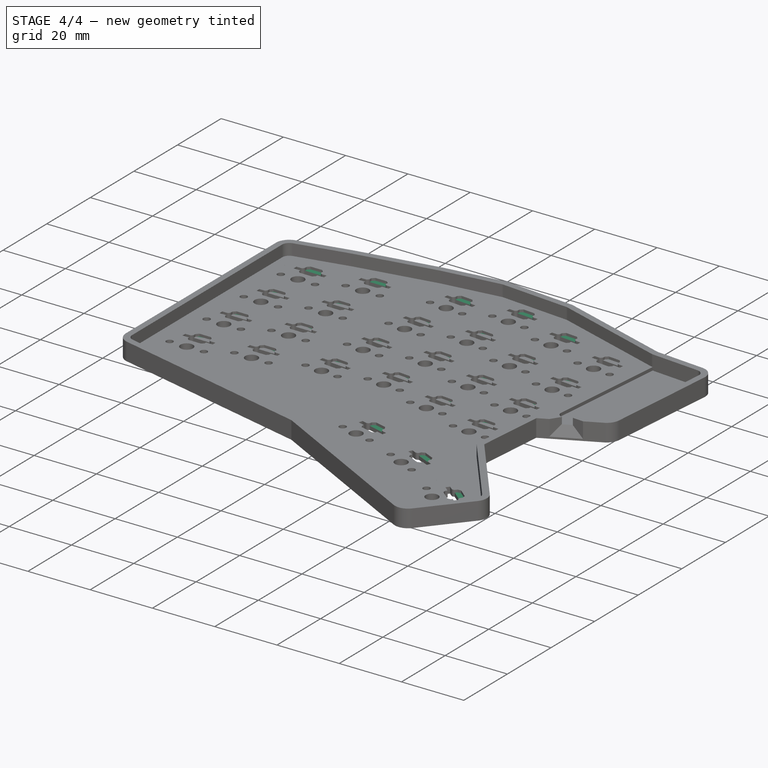
[diagram: stage 4 of 4 — iso view after this stage's code; geometry added in this stage tinted green]
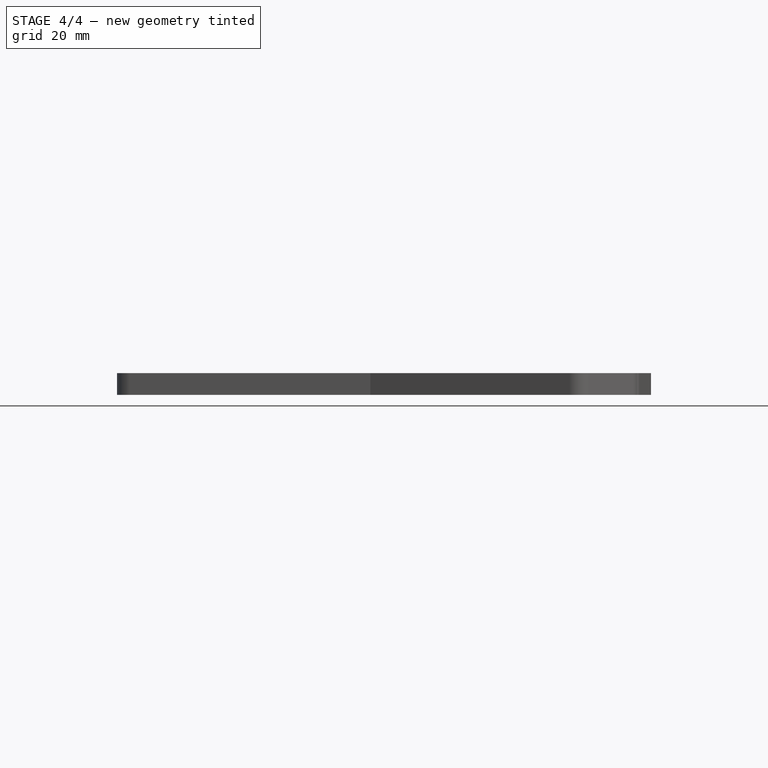
[diagram: stage 4 of 4 — front view after this stage's code; geometry added in this stage tinted green]
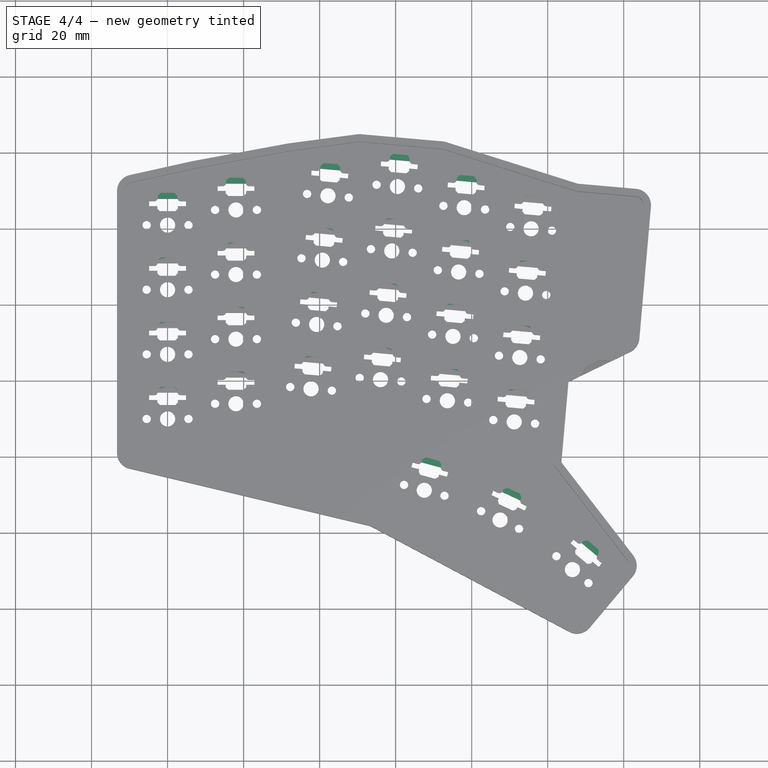
[diagram: stage 4 of 4 — top view after this stage's code; geometry added in this stage tinted green]
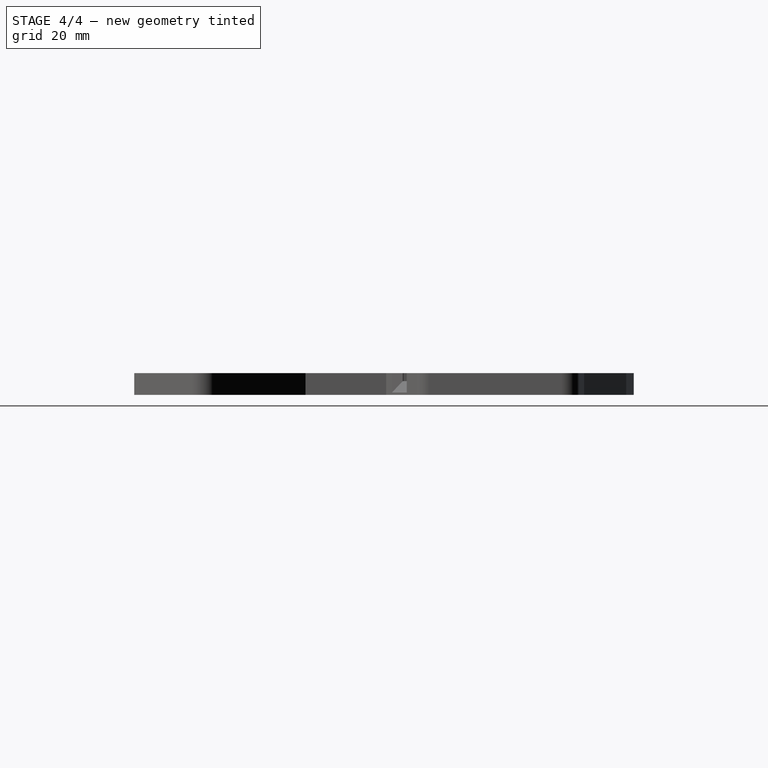
[diagram: stage 4 of 4 — right view after this stage's code; geometry added in this stage tinted green]
FEATURE [Sketcher::SketchObject] Sketch002
  ArcFitTolerance = 1e-06
  AttachmentSupport = -> [XY_Plane003]
  FullyConstrained = false
  MakeInternals = false
  MapMode = 5
  sketch-geometry (132):
    g0: LineSegment StartX=109 StartY=-158.921 StartZ=0 EndX=109 EndY=-90.1043 EndZ=0
    g1: LineSegment StartX=110.566 StartY=-88.152 StartZ=0 EndX=126.965 EndY=-84.5078 EndZ=0
    g2: LineSegment StartX=127.035 StartY=-84.4935 StartZ=0 EndX=152.094 EndY=-79.8608 EndZ=0
    g3: LineSegment StartX=152.196 StartY=-79.8447 StartZ=0 EndX=170.208 EndY=-77.4642 EndZ=0
    g4: LineSegment StartX=170.644 StartY=-77.4546 StartZ=0 EndX=192.123 EndY=-79.3337 EndZ=0
    g5: LineSegment StartX=192.551 StartY=-79.419 StartZ=0 EndX=209.896 EndY=-84.8976 EndZ=0
    g6: LineSegment StartX=209.952 StartY=-84.9161 StartZ=0 EndX=223.845 EndY=-89.7561 EndZ=0
    g7: LineSegment StartX=225.18 StartY=-91.8191 StartZ=0 EndX=219.113 EndY=-161.162 EndZ=0
    g8: LineSegment StartX=219.581 StartY=-162.631 StartZ=0 EndX=240.594 EndY=-187.385 EndZ=0
    g9: LineSegment StartX=240.601 StartY=-189.965 StartZ=0 EndX=229.229 EndY=-203.519 EndZ=0
    g10: LineSegment StartX=226.758 StartY=-203.999 StartZ=0 EndX=174.412 EndY=-176.189 EndZ=0
    g11: LineSegment StartX=173.939 StartY=-176.01 StartZ=0 EndX=110.535 EndY=-160.867 EndZ=0
    g12: ArcOfCircle CenterX=111 CenterY=-90.1043 CenterZ=0 NormalX=0 NormalY=0 NormalZ=1 AngleXU=0 Radius=2 StartAngle=1.78947 EndAngle=3.14159
    g13: ArcOfCircle CenterX=127.399 CenterY=-86.4602 CenterZ=0 NormalX=0 NormalY=0 NormalZ=1 AngleXU=0 Radius=2 StartAngle=1.7536 EndAngle=1.78947
    g14: ArcOfCircle CenterX=152.458 CenterY=-81.8274 CenterZ=0 NormalX=0 NormalY=0 NormalZ=1 AngleXU=0 Radius=2 StartAngle=1.7022 EndAngle=1.7536
    g15: ArcOfCircle CenterX=170.47 CenterY=-79.447 CenterZ=0 NormalX=0 NormalY=0 NormalZ=1 AngleXU=0 Radius=2 StartAngle=1.48353 EndAngle=1.7022
    g16: ArcOfCircle CenterX=191.948 CenterY=-81.3261 CenterZ=0 NormalX=0 NormalY=0 NormalZ=1 AngleXU=0 Radius=2 StartAngle=1.26486 EndAngle=1.48353
    g17: ArcOfCircle CenterX=209.294 CenterY=-86.8048 CenterZ=0 NormalX=0 NormalY=0 NormalZ=1 AngleXU=0 Radius=2 StartAngle=1.23558 EndAngle=1.26486
    g18: ArcOfCircle CenterX=223.188 CenterY=-91.6448 CenterZ=0 NormalX=0 NormalY=0 NormalZ=1 AngleXU=0 Radius=2 StartAngle=6.19592 EndAngle=7.51876
    g19: ArcOfCircle CenterX=221.106 CenterY=-161.337 CenterZ=0 NormalX=0 NormalY=0 NormalZ=1 AngleXU=0 Radius=2 StartAngle=3.05433 EndAngle=3.84543
    g20: ArcOfCircle CenterX=239.069 CenterY=-188.68 CenterZ=0 NormalX=0 NormalY=0 NormalZ=1 AngleXU=0 Radius=2 StartAngle=5.58505 EndAngle=6.98702
    g21: ArcOfCircle CenterX=227.696 CenterY=-202.233 CenterZ=0 NormalX=0 NormalY=0 NormalZ=1 AngleXU=0 Radius=2 StartAngle=4.22403 EndAngle=5.58505
    g22: ArcOfCircle CenterX=173.474 CenterY=-177.955 CenterZ=0 NormalX=0 NormalY=0 NormalZ=1 AngleXU=0 Radius=2 StartAngle=1.08243 EndAngle=1.33635
    g23: ArcOfCircle CenterX=111 CenterY=-158.921 CenterZ=0 NormalX=0 NormalY=0 NormalZ=1 AngleXU=0 Radius=2 StartAngle=3.14159 EndAngle=4.47794
    g24: LineSegment StartX=113.1 StartY=-156.9 StartZ=0 EndX=126.9 EndY=-156.9 EndZ=0
    g25: LineSegment StartX=126.9 StartY=-156.9 StartZ=0 EndX=126.9 EndY=-143.1 EndZ=0
    g26: LineSegment StartX=126.9 StartY=-143.1 StartZ=0 EndX=113.1 EndY=-143.1 EndZ=0
    g27: LineSegment StartX=113.1 StartY=-143.1 StartZ=0 EndX=113.1 EndY=-156.9 EndZ=0
    g28: LineSegment StartX=113.1 StartY=-139.9 StartZ=0 EndX=126.9 EndY=-139.9 EndZ=0
    g29: LineSegment StartX=126.9 StartY=-139.9 StartZ=0 EndX=126.9 EndY=-126.1 EndZ=0
    g30: LineSegment StartX=126.9 StartY=-126.1 StartZ=0 EndX=113.1 EndY=-126.1 EndZ=0
    g31: LineSegment StartX=113.1 StartY=-126.1 StartZ=0 EndX=113.1 EndY=-139.9 EndZ=0
    g32: LineSegment StartX=113.1 StartY=-122.9 StartZ=0 EndX=126.9 EndY=-122.9 EndZ=0
    g33: LineSegment StartX=126.9 StartY=-122.9 StartZ=0 EndX=126.9 EndY=-109.1 EndZ=0
    g34: LineSegment StartX=126.9 StartY=-109.1 StartZ=0 EndX=113.1 EndY=-109.1 EndZ=0
    g35: LineSegment StartX=113.1 StartY=-109.1 StartZ=0 EndX=113.1 EndY=-122.9 EndZ=0
    g36: LineSegment StartX=113.1 StartY=-105.9 StartZ=0 EndX=126.9 EndY=-105.9 EndZ=0
    g37: LineSegment StartX=126.9 StartY=-105.9 StartZ=0 EndX=126.9 EndY=-92.1 EndZ=0
    g38: LineSegment StartX=126.9 StartY=-92.1 StartZ=0 EndX=113.1 EndY=-92.1 EndZ=0
    g39: LineSegment StartX=113.1 StartY=-92.1 StartZ=0 EndX=113.1 EndY=-105.9 EndZ=0
    g40: LineSegment StartX=131.1 StartY=-152.9 StartZ=0 EndX=144.9 EndY=-152.9 EndZ=0
    g41: LineSegment StartX=144.9 StartY=-152.9 StartZ=0 EndX=144.9 EndY=-139.1 EndZ=0
    g42: LineSegment StartX=144.9 StartY=-139.1 StartZ=0 EndX=131.1 EndY=-139.1 EndZ=0
    g43: LineSegment StartX=131.1 StartY=-139.1 StartZ=0 EndX=131.1 EndY=-152.9 EndZ=0
    g44: LineSegment StartX=131.1 StartY=-135.9 StartZ=0 EndX=144.9 EndY=-135.9 EndZ=0
    g45: LineSegment StartX=144.9 StartY=-135.9 StartZ=0 EndX=144.9 EndY=-122.1 EndZ=0
    g46: LineSegment StartX=144.9 StartY=-122.1 StartZ=0 EndX=131.1 EndY=-122.1 EndZ=0
    g47: LineSegment StartX=131.1 StartY=-122.1 StartZ=0 EndX=131.1 EndY=-135.9 EndZ=0
    g48: LineSegment StartX=131.1 StartY=-118.9 StartZ=0 EndX=144.9 EndY=-118.9 EndZ=0
    g49: LineSegment StartX=144.9 StartY=-118.9 StartZ=0 EndX=144.9 EndY=-105.1 EndZ=0
    g50: LineSegment StartX=144.9 StartY=-105.1 StartZ=0 EndX=131.1 EndY=-105.1 EndZ=0
    g51: LineSegment StartX=131.1 StartY=-105.1 StartZ=0 EndX=131.1 EndY=-118.9 EndZ=0
    g52: LineSegment StartX=131.1 StartY=-101.9 StartZ=0 EndX=144.9 EndY=-101.9 EndZ=0
    g53: LineSegment StartX=144.9 StartY=-101.9 StartZ=0 EndX=144.9 EndY=-88.1 EndZ=0
    g54: LineSegment StartX=144.9 StartY=-88.1 StartZ=0 EndX=131.1 EndY=-88.1 EndZ=0
    g55: LineSegment StartX=131.1 StartY=-88.1 StartZ=0 EndX=131.1 EndY=-101.9 EndZ=0
    g56: LineSegment StartX=150.268 StartY=-148.348 StartZ=0 EndX=164.015 EndY=-149.551 EndZ=0
    g57: LineSegment StartX=164.015 StartY=-149.551 StartZ=0 EndX=165.218 EndY=-135.804 EndZ=0
    g58: LineSegment StartX=165.218 StartY=-135.804 StartZ=0 EndX=151.471 EndY=-134.601 EndZ=0
    g59: LineSegment StartX=151.471 StartY=-134.601 StartZ=0 EndX=150.268 EndY=-148.348 EndZ=0
    g60: LineSegment StartX=151.75 StartY=-131.413 StartZ=0 EndX=165.497 EndY=-132.616 EndZ=0
    g61: LineSegment StartX=165.497 StartY=-132.616 StartZ=0 EndX=166.7 EndY=-118.868 EndZ=0
    g62: LineSegment StartX=166.7 StartY=-118.868 StartZ=0 EndX=152.952 EndY=-117.666 EndZ=0
    g63: LineSegment StartX=152.952 StartY=-117.666 StartZ=0 EndX=151.75 EndY=-131.413 EndZ=0
    g64: LineSegment StartX=153.231 StartY=-114.478 StartZ=0 EndX=166.979 EndY=-115.681 EndZ=0
    g65: LineSegment StartX=166.979 StartY=-115.681 StartZ=0 EndX=168.182 EndY=-101.933 EndZ=0
    g66: LineSegment StartX=168.182 StartY=-101.933 StartZ=0 EndX=154.434 EndY=-100.73 EndZ=0
    g67: LineSegment StartX=154.434 StartY=-100.73 StartZ=0 EndX=153.231 EndY=-114.478 EndZ=0
    g68: LineSegment StartX=154.713 StartY=-97.5425 StartZ=0 EndX=168.46 EndY=-98.7453 EndZ=0
    g69: LineSegment StartX=168.46 StartY=-98.7453 StartZ=0 EndX=169.663 EndY=-84.9978 EndZ=0
    g70: LineSegment StartX=169.663 StartY=-84.9978 StartZ=0 EndX=155.916 EndY=-83.7951 EndZ=0
    g71: LineSegment StartX=155.916 StartY=-83.7951 StartZ=0 EndX=154.713 EndY=-97.5425 EndZ=0
    g72: LineSegment StartX=168.548 StartY=-145.932 StartZ=0 EndX=182.296 EndY=-147.135 EndZ=0
    g73: LineSegment StartX=182.296 StartY=-147.135 StartZ=0 EndX=183.498 EndY=-133.388 EndZ=0
    g74: LineSegment StartX=183.498 StartY=-133.388 StartZ=0 EndX=169.751 EndY=-132.185 EndZ=0
    g75: LineSegment StartX=169.751 StartY=-132.185 StartZ=0 EndX=168.548 EndY=-145.932 EndZ=0
    g76: LineSegment StartX=170.03 StartY=-128.997 StartZ=0 EndX=183.777 EndY=-130.2 EndZ=0
    g77: LineSegment StartX=183.777 StartY=-130.2 StartZ=0 EndX=184.98 EndY=-116.452 EndZ=0
    g78: LineSegment StartX=184.98 StartY=-116.452 StartZ=0 EndX=171.233 EndY=-115.25 EndZ=0
    g79: LineSegment StartX=171.233 StartY=-115.25 StartZ=0 EndX=170.03 EndY=-128.997 EndZ=0
    g80: LineSegment StartX=171.511 StartY=-112.062 StartZ=0 EndX=185.259 EndY=-113.265 EndZ=0
    g81: LineSegment StartX=185.259 StartY=-113.265 StartZ=0 EndX=186.462 EndY=-99.5171 EndZ=0
    g82: LineSegment StartX=186.462 StartY=-99.5171 StartZ=0 EndX=172.714 EndY=-98.3144 EndZ=0
    g83: LineSegment StartX=172.714 StartY=-98.3144 StartZ=0 EndX=171.511 EndY=-112.062 EndZ=0
    g84: LineSegment StartX=172.993 StartY=-95.1266 StartZ=0 EndX=186.741 EndY=-96.3293 EndZ=0
    g85: LineSegment StartX=186.741 StartY=-96.3293 StartZ=0 EndX=187.943 EndY=-82.5818 EndZ=0
    g86: LineSegment StartX=187.943 StartY=-82.5818 StartZ=0 EndX=174.196 EndY=-81.3791 EndZ=0
    g87: LineSegment StartX=174.196 StartY=-81.3791 StartZ=0 EndX=172.993 EndY=-95.1266 EndZ=0
    g88: LineSegment StartX=186.131 StartY=-151.486 StartZ=0 EndX=199.878 EndY=-152.689 EndZ=0
    g89: LineSegment StartX=199.878 StartY=-152.689 StartZ=0 EndX=201.081 EndY=-138.941 EndZ=0
    g90: LineSegment StartX=201.081 StartY=-138.941 StartZ=0 EndX=187.334 EndY=-137.739 EndZ=0
    g91: LineSegment StartX=187.334 StartY=-137.739 StartZ=0 EndX=186.131 EndY=-151.486 EndZ=0
    g92: LineSegment StartX=187.613 StartY=-134.551 StartZ=0 EndX=201.36 EndY=-135.754 EndZ=0
    g93: LineSegment StartX=201.36 StartY=-135.754 StartZ=0 EndX=202.563 EndY=-122.006 EndZ=0
    g94: LineSegment StartX=202.563 StartY=-122.006 StartZ=0 EndX=188.815 EndY=-120.803 EndZ=0
    g95: LineSegment StartX=188.815 StartY=-120.803 StartZ=0 EndX=187.613 EndY=-134.551 EndZ=0
    g96: LineSegment StartX=189.094 StartY=-117.615 StartZ=0 EndX=202.842 EndY=-118.818 EndZ=0
    g97: LineSegment StartX=202.842 StartY=-118.818 StartZ=0 EndX=204.045 EndY=-105.071 EndZ=0
    g98: LineSegment StartX=204.045 StartY=-105.071 StartZ=0 EndX=190.297 EndY=-103.868 EndZ=0
    g99: LineSegment StartX=190.297 StartY=-103.868 StartZ=0 EndX=189.094 EndY=-117.615 EndZ=0
    g100: LineSegment StartX=190.576 StartY=-100.68 StartZ=0 EndX=204.323 EndY=-101.883 EndZ=0
    g101: LineSegment StartX=204.323 StartY=-101.883 StartZ=0 EndX=205.526 EndY=-88.1354 EndZ=0
    g102: LineSegment StartX=205.526 StartY=-88.1354 StartZ=0 EndX=191.779 EndY=-86.9327 EndZ=0
    g103: LineSegment StartX=191.779 StartY=-86.9327 StartZ=0 EndX=190.576 EndY=-100.68 EndZ=0
    g104: LineSegment StartX=203.714 StartY=-157.04 StartZ=0 EndX=217.461 EndY=-158.242 EndZ=0
    g105: LineSegment StartX=217.461 StartY=-158.242 StartZ=0 EndX=218.664 EndY=-144.495 EndZ=0
    g106: LineSegment StartX=218.664 StartY=-144.495 StartZ=0 EndX=204.917 EndY=-143.292 EndZ=0
    g107: LineSegment StartX=204.917 StartY=-143.292 StartZ=0 EndX=203.714 EndY=-157.04 EndZ=0
    g108: LineSegment StartX=205.196 StartY=-140.104 StartZ=0 EndX=218.943 EndY=-141.307 EndZ=0
    g109: LineSegment StartX=218.943 StartY=-141.307 StartZ=0 EndX=220.146 EndY=-127.56 EndZ=0
    g110: LineSegment StartX=220.146 StartY=-127.56 StartZ=0 EndX=206.398 EndY=-126.357 EndZ=0
    g111: LineSegment StartX=206.398 StartY=-126.357 StartZ=0 EndX=205.196 EndY=-140.104 EndZ=0
    g112: LineSegment StartX=206.677 StartY=-123.169 StartZ=0 EndX=220.425 EndY=-124.372 EndZ=0
    g113: LineSegment StartX=220.425 StartY=-124.372 StartZ=0 EndX=221.627 EndY=-110.624 EndZ=0
    g114: LineSegment StartX=221.627 StartY=-110.624 StartZ=0 EndX=207.88 EndY=-109.422 EndZ=0
    g115: LineSegment StartX=207.88 StartY=-109.422 StartZ=0 EndX=206.677 EndY=-123.169 EndZ=0
    g116: LineSegment StartX=208.159 StartY=-106.234 StartZ=0 EndX=221.906 EndY=-107.436 EndZ=0
    g117: LineSegment StartX=221.906 StartY=-107.436 StartZ=0 EndX=223.109 EndY=-93.689 EndZ=0
    g118: LineSegment StartX=223.109 StartY=-93.689 StartZ=0 EndX=209.362 EndY=-92.4862 EndZ=0
    g119: LineSegment StartX=209.362 StartY=-92.4862 StartZ=0 EndX=208.159 EndY=-106.234 EndZ=0
    g120: LineSegment StartX=179.079 StartY=-173.653 StartZ=0 EndX=192.409 EndY=-177.225 EndZ=0
    g121: LineSegment StartX=192.409 StartY=-177.225 StartZ=0 EndX=195.98 EndY=-163.895 EndZ=0
    g122: LineSegment StartX=195.98 StartY=-163.895 StartZ=0 EndX=182.651 EndY=-160.323 EndZ=0
    g123: LineSegment StartX=182.651 StartY=-160.323 StartZ=0 EndX=179.079 EndY=-173.653 EndZ=0
    g124: LineSegment StartX=198.307 StartY=-179.928 StartZ=0 EndX=210.814 EndY=-185.76 EndZ=0
    g125: LineSegment StartX=210.814 StartY=-185.76 StartZ=0 EndX=216.646 EndY=-173.253 EndZ=0
    g126: LineSegment StartX=216.646 StartY=-173.253 StartZ=0 EndX=204.139 EndY=-167.421 EndZ=0
    g127: LineSegment StartX=204.139 StartY=-167.421 StartZ=0 EndX=198.307 EndY=-179.928 EndZ=0
    g128: LineSegment StartX=216.79 StartY=-190.495 StartZ=0 EndX=227.361 EndY=-199.366 EndZ=0
    g129: LineSegment StartX=227.361 StartY=-199.366 StartZ=0 EndX=236.232 EndY=-188.794 EndZ=0
    g130: LineSegment StartX=236.232 StartY=-188.794 StartZ=0 EndX=225.66 EndY=-179.924 EndZ=0
    g131: LineSegment StartX=225.66 StartY=-179.924 StartZ=0 EndX=216.79 EndY=-190.495 EndZ=0
  constraints (132):
    c: Coincident(g0,g23)
    c: Coincident(g0,g12)
    c: Coincident(g11,g23)
    c: Coincident(g1,g12)
    c: Coincident(g24,g27)
    c: Coincident(g26,g27)
    c: Coincident(g28,g31)
    c: Coincident(g30,g31)
    c: Coincident(g32,g35)
    c: Coincident(g34,g35)
    c: Coincident(g36,g39)
    c: Coincident(g38,g39)
    c: Coincident(g24,g25)
    c: Coincident(g25,g26)
    c: Coincident(g28,g29)
    c: Coincident(g29,g30)
    c: Coincident(g32,g33)
    c: Coincident(g33,g34)
    c: Coincident(g36,g37)
    c: Coincident(g37,g38)
    c: Coincident(g1,g13)
    c: Coincident(g2,g13)
    c: Coincident(g40,g43)
    c: Coincident(g42,g43)
    c: Coincident(g44,g47)
    c: Coincident(g46,g47)
    c: Coincident(g48,g51)
    c: Coincident(g50,g51)
    c: Coincident(g52,g55)
    c: Coincident(g54,g55)
    c: Coincident(g40,g41)
    c: Coincident(g41,g42)
    c: Coincident(g44,g45)
    c: Coincident(g45,g46)
    c: Coincident(g48,g49)
    c: Coincident(g49,g50)
    c: Coincident(g52,g53)
    c: Coincident(g53,g54)
    c: Coincident(g56,g59)
    c: Coincident(g58,g59)
    c: Coincident(g60,g63)
    c: Coincident(g2,g14)
    c: Coincident(g3,g14)
    c: Coincident(g62,g63)
    c: Coincident(g64,g67)
    c: Coincident(g66,g67)
    c: Coincident(g68,g71)
    c: Coincident(g70,g71)
    c: Coincident(g56,g57)
    c: Coincident(g57,g58)
    c: Coincident(g60,g61)
    c: Coincident(g61,g62)
    c: Coincident(g64,g65)
    c: Coincident(g65,g66)
    c: Coincident(g68,g69)
    c: Coincident(g72,g75)
    c: Coincident(g69,g70)
    c: Coincident(g74,g75)
    c: Coincident(g76,g79)
    c: Coincident(g3,g15)
    c: Coincident(g4,g15)
    c: Coincident(g78,g79)
    c: Coincident(g80,g83)
    c: Coincident(g82,g83)
    c: Coincident(g84,g87)
    c: Coincident(g11,g22)
    c: Coincident(g86,g87)
    c: Coincident(g10,g22)
    c: Coincident(g120,g123)
    c: Coincident(g72,g73)
    c: Coincident(g122,g123)
    c: Coincident(g73,g74)
    c: Coincident(g76,g77)
    c: Coincident(g77,g78)
    c: Coincident(g80,g81)
    c: Coincident(g88,g91)
    c: Coincident(g81,g82)
    c: Coincident(g84,g85)
    c: Coincident(g90,g91)
    c: Coincident(g92,g95)
    c: Coincident(g85,g86)
    c: Coincident(g94,g95)
    c: Coincident(g96,g99)
    c: Coincident(g98,g99)
    c: Coincident(g100,g103)
    c: Coincident(g102,g103)
    c: Coincident(g4,g16)
    c: Coincident(g120,g121)
    c: Coincident(g5,g16)
    c: Coincident(g121,g122)
    c: Coincident(g124,g127)
    c: Coincident(g88,g89)
    c: Coincident(g89,g90)
    c: Coincident(g92,g93)
    c: Coincident(g93,g94)
    c: Coincident(g96,g97)
    c: Coincident(g104,g107)
    c: Coincident(g97,g98)
    c: Coincident(g126,g127)
    c: Coincident(g100,g101)
    c: Coincident(g106,g107)
    c: Coincident(g108,g111)
    c: Coincident(g101,g102)
    c: Coincident(g110,g111)
    c: Coincident(g112,g115)
    c: Coincident(g114,g115)
    c: Coincident(g116,g119)
    c: Coincident(g118,g119)
    c: Coincident(g5,g17)
    c: Coincident(g6,g17)
    c: Coincident(g124,g125)
    c: Coincident(g125,g126)
    c: Coincident(g128,g131)
    c: Coincident(g104,g105)
    c: Coincident(g105,g106)
    c: Coincident(g108,g109)
    c: Coincident(g7,g19)
    c: Coincident(g8,g19)
    c: Coincident(g109,g110)
    c: Coincident(g112,g113)
    c: Coincident(g113,g114)
    c: Coincident(g116,g117)
    c: Coincident(g117,g118)
    c: Coincident(g6,g18)
    c: Coincident(g7,g18)
    c: Coincident(g130,g131)
    c: Coincident(g10,g21)
    c: Coincident(g128,g129)
    c: Coincident(g9,g21)
    c: Coincident(g129,g130)
    c: Coincident(g8,g20)
    c: Coincident(g9,g20)
FEATURE [PartDesign::Pad] Pad001
  Direction = (0,0,1)
  Length = 1.2
  Length2 = 10
  Profile = -> Sketch002
  ReferenceAxis = -> Sketch002 [N_Axis]
  Refine = true
  Suppressed = false
  Type = 0
FEATURE [Part::Feature] Part__Feature001  label="main_PCB001"
  shape: bbox 140.2 x 121.3 x 1.51 mm, 274 faces (baked)
FEATURE [App::Part] main_002  label="PCB"
  Group = -> [Part__Feature001]
  Origin = -> Origin004
  Placement = pos=(-213.6,218.25,0) rot=(0,0,1;-0.087266rad)
FEATURE [Sketcher::SketchObject] Sketch008
  ArcFitTolerance = 1e-06
  AttachmentSupport = -> [Pocket005]
  ExternalGeometry = -> [Pocket005]
  FullyConstrained = true
  MakeInternals = false
  MapMode = 5
  Placement = pos=(97.7664,-202.06,0) rot=(0.95127,0.218044,0.218044;1.62073rad)
  sketch-geometry (4):
    g0: LineSegment StartX=148.305 StartY=5.7 StartZ=0 EndX=148.305 EndY=3.6 EndZ=0
    g1: LineSegment StartX=148.305 StartY=3.6 StartZ=0 EndX=151.305 EndY=3.6 EndZ=0
    g2: LineSegment StartX=151.305 StartY=3.6 StartZ=0 EndX=151.305 EndY=5.7 EndZ=0
    g3: LineSegment StartX=151.305 StartY=5.7 StartZ=0 EndX=148.305 EndY=5.7 EndZ=0
  constraints (12):
    c: Coincident(g0,g1)
    c: Coincident(g1,g2)
    c: Coincident(g2,g3)
    c: Coincident(g3,g0)
    c: Vertical(g0)
    c: Vertical(g2)
    c: Horizontal(g1)
    c: Horizontal(g3)
    c: Distance(g0,g2) = 3
    c: Distance(g-6,g2) = 8.6
    c: PointOnObject(g0,g-3)
    c: DistanceY(g0,g0) = 2.1
FEATURE [PartDesign::Pocket] Pocket006
  BaseFeature = -> Pocket005
  Direction = (-0.435544,0.900167,3e-16)
  Length = 2
  Length2 = 5
  Profile = -> Sketch008
  ReferenceAxis = -> Sketch008 [N_Axis]
  Refine = true
  Suppressed = false
  Type = 0
FEATURE [PartDesign::Chamfer] Chamfer
  Angle = 45
  Base = -> Pocket006 [Edge743,Edge742,Edge741]
  BaseFeature = -> Pocket006
  ChamferType = 1
  FlipDirection = false
  Refine = true
  Size = 3
  Size2 = 1.75
  SupportTransform = false
  Suppressed = false
  UseAllEdges = false
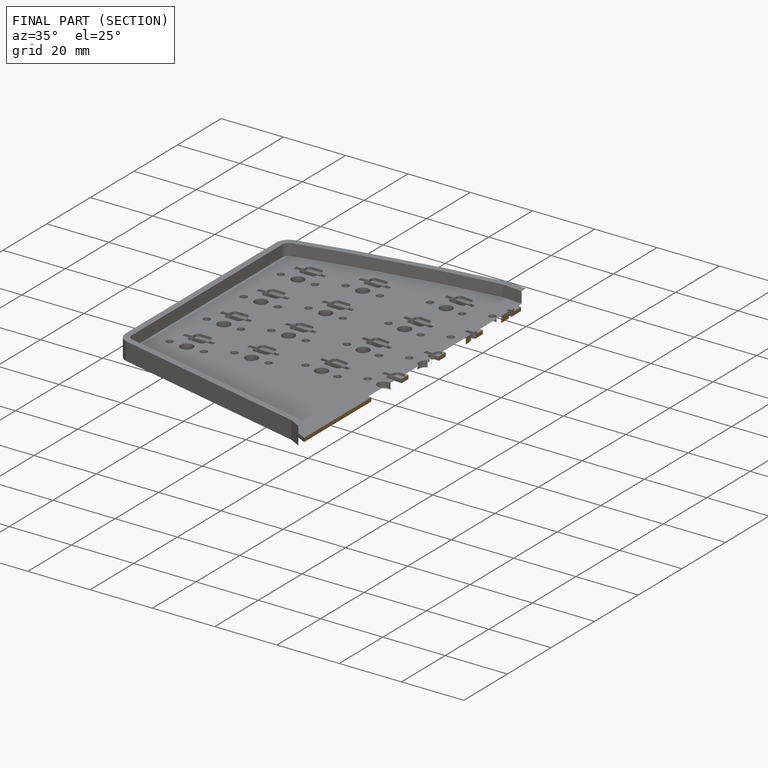
[diagram: finished part — half-section view (interior)]
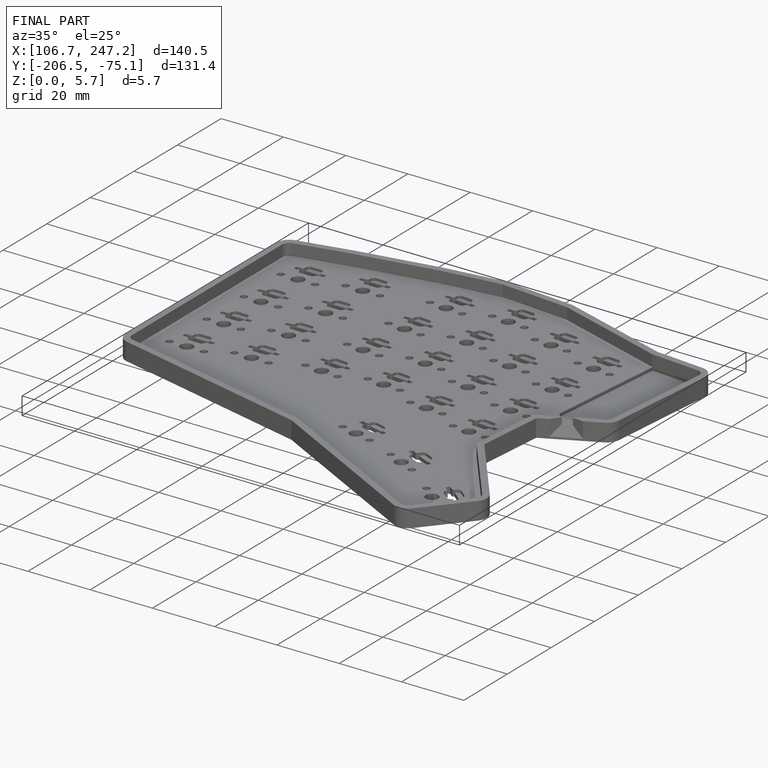
[diagram: finished part — iso view with bounding-box wireframe]
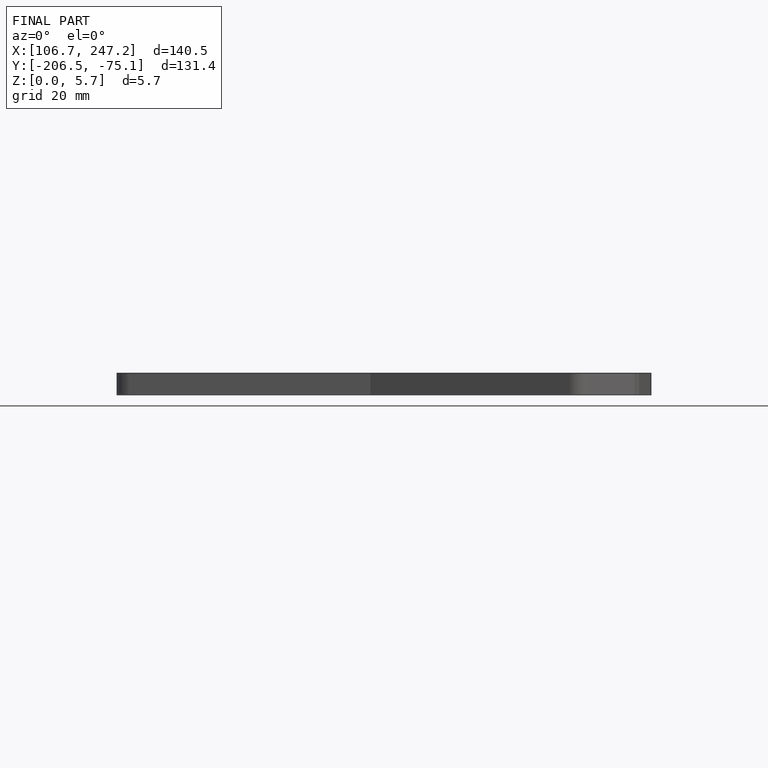
[diagram: finished part — front view with bounding-box wireframe]
